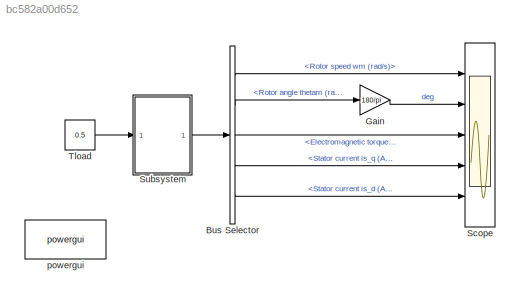
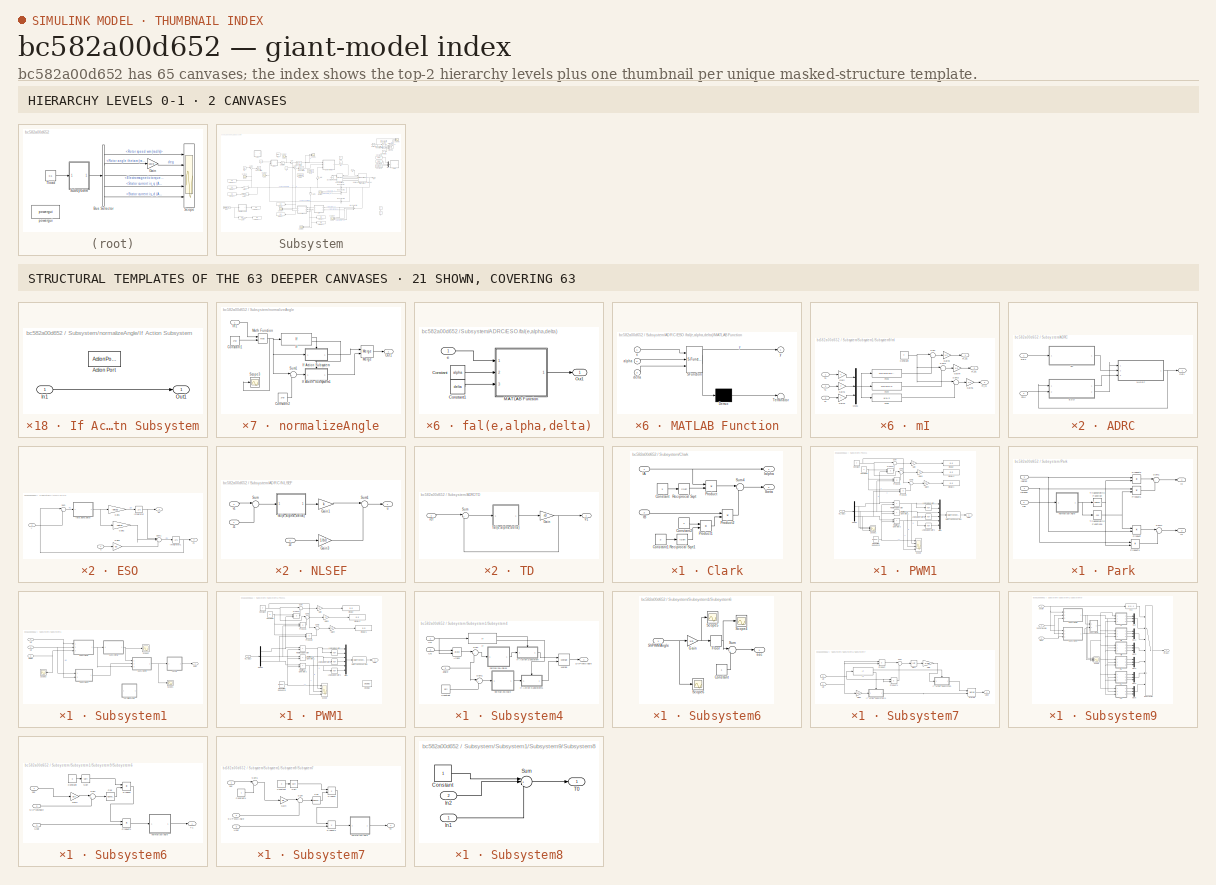
[diagram: thumbnail index - top-2 hierarchy levels (2 canvases) + 21 structural-template representatives of the remaining 63 canvases]
MODEL slx_bc582a00d652
KIND model
CONFIG AbsTol = auto
CONFIG EnableMultiTasking = off
CONFIG FixedStep = auto
CONFIG MaxStep = auto
CONFIG MinStep = auto
CONFIG RelTol = 1e-3
CONFIG SampleTimeConstraint = Unconstrained
CONFIG Solver = VariableStepAuto
CONFIG SolverName = VariableStepAuto
CONFIG StartTime = 0.0
CONFIG StopTime = 1
BLOCK [BusSelector] Bus Selector
  OutputAsBus = off
  OutputSignals = Rotor speed wm (rad/s),Rotor angle thetam (rad),Electromagnetic torque Te (N*m),Stator current is_q (A),Stator current is_d (A)
  Ports = [1, 5]
BLOCK [Gain] Gain
  Gain = 180/pi
  OutDataTypeStr = Inherit: Inherit via internal rule
  ParamDataTypeStr = Inherit: Inherit via internal rule
  SaturateOnIntegerOverflow = off
BLOCK [Scope] Scope
  Floating = off
  NumInputPorts = 5
  Ports = [5]
  ScopeSpecificationString = Simulink.scopes.TimeScopeBlockCfg('CurrentConfiguration', extmgr.ConfigurationSet(extmgr.Configuration('Core','General UI',true),extmgr.Configuration('Core','Source UI',true),extmgr.Configuration('Sources','WiredSimulink',true,'DataLoggingVariableName','ScopeData5'),extmgr.Configuration('Visuals','Time Domain',true,'SerializedDisplays',{struct('MinYLimReal','-1.55756','MaxYLimReal','0.17306','YLab...<+4325ch>
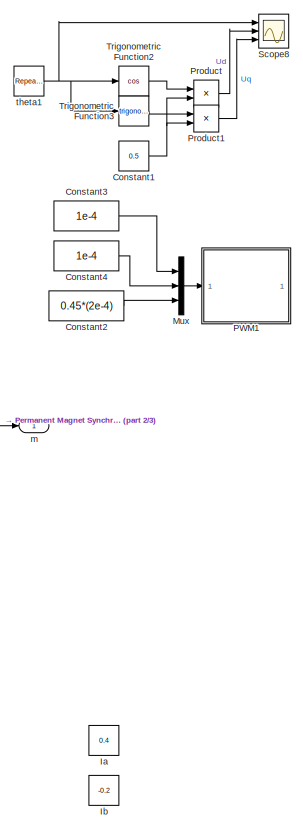
[diagram: Subsystem - part 1/3, right side, full height]
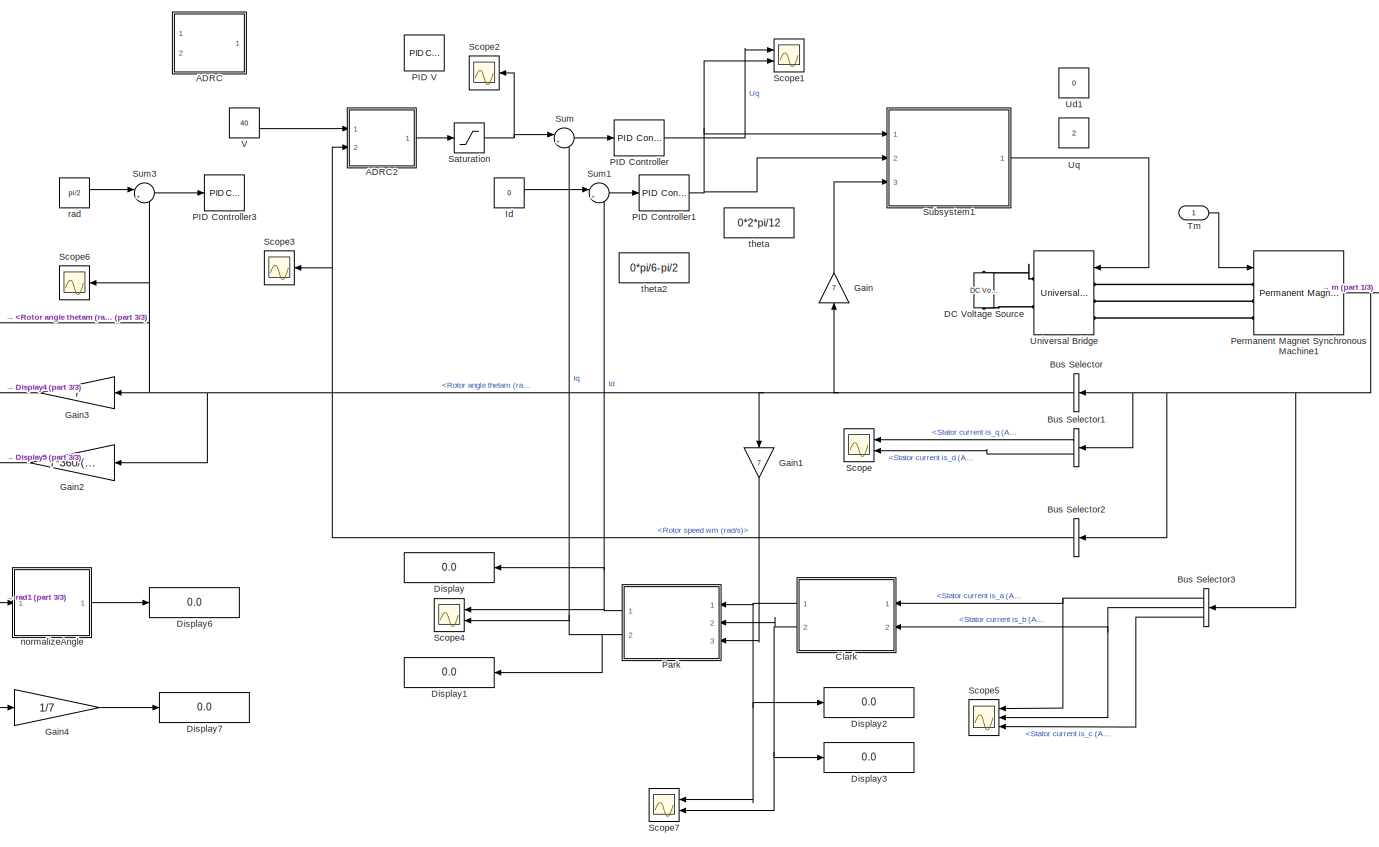
[diagram: Subsystem - part 2/3, most of the canvas]
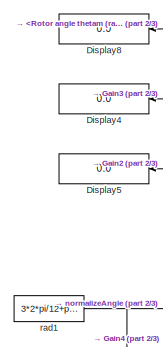
[diagram: Subsystem - part 3/3, middle left region]
BLOCK [SubSystem] Subsystem
  Ports = [1, 1]
  RequestExecContextInheritance = off
BLOCK [SubSystem] Subsystem/ADRC
  Ports = [2, 1]
  RequestExecContextInheritance = off
BLOCK [SubSystem] Subsystem/ADRC/ESO 
  Ports = [2, 2]
  RequestExecContextInheritance = off
BLOCK [Gain] Subsystem/ADRC/ESO /Gain1
  Gain = -beta2
  OutDataTypeStr = Inherit: Inherit via internal rule
  ParamDataTypeStr = Inherit: Inherit via internal rule
  SaturateOnIntegerOverflow = off
BLOCK [Gain] Subsystem/ADRC/ESO /Gain2
  Gain = -beta1
  OutDataTypeStr = Inherit: Inherit via internal rule
  ParamDataTypeStr = Inherit: Inherit via internal rule
  SaturateOnIntegerOverflow = off
BLOCK [Gain] Subsystem/ADRC/ESO /Gain3
  Gain = b0
  OutDataTypeStr = Inherit: Inherit via internal rule
  ParamDataTypeStr = Inherit: Inherit via internal rule
  SaturateOnIntegerOverflow = off
BLOCK [Integrator] Subsystem/ADRC/ESO /Integrator
  Ports = [1, 1]
BLOCK [Integrator] Subsystem/ADRC/ESO /Integrator1
  Ports = [1, 1]
BLOCK [Sum] Subsystem/ADRC/ESO /Sum
  IconShape = round
  InputSameDT = off
  Inputs = |+-
  OutDataTypeStr = Inherit: Inherit via internal rule
  Ports = [2, 1]
  SaturateOnIntegerOverflow = off
BLOCK [Sum] Subsystem/ADRC/ESO /Sum1
  IconShape = round
  InputSameDT = off
  Inputs = |+++
  OutDataTypeStr = Inherit: Inherit via internal rule
  Ports = [3, 1]
  SaturateOnIntegerOverflow = off
BLOCK [Outport] Subsystem/ADRC/ESO /Z1
  IconDisplay = Port number
  Port = 2
BLOCK [Outport] Subsystem/ADRC/ESO /Z2
  IconDisplay = Port number
BLOCK [SubSystem] Subsystem/ADRC/ESO /fal(e,alpha,delta)
  Ports = [1, 1]
  RequestExecContextInheritance = off
BLOCK [Constant] Subsystem/ADRC/ESO /fal(e,alpha,delta)/Constant
  Value = alpha
BLOCK [Constant] Subsystem/ADRC/ESO /fal(e,alpha,delta)/Constant1
  Value = delta
BLOCK [SubSystem] Subsystem/ADRC/ESO /fal(e,alpha,delta)/MATLAB Function
  ErrorFcn = Stateflow.Translate.translate
  PermitHierarchicalResolution = ExplicitOnly
  Ports = [3, 1]
  RequestExecContextInheritance = off
  SFBlockType = MATLAB Function
  TreatAsAtomicUnit = on
BLOCK [Demux] Subsystem/ADRC/ESO /fal(e,alpha,delta)/MATLAB Function/ Demux 
  Outputs = 1
  Ports = [1, 1]
BLOCK [S-Function] Subsystem/ADRC/ESO /fal(e,alpha,delta)/MATLAB Function/ SFunction 
  EnableBusSupport = on
  FunctionName = sf_sfun
  PortCounts = [3 2]
  Ports = [3, 2]
  SFcnIsStateOwnerBlock = off
  SFunctionDeploymentMode = off
  Tag = Stateflow S-Function ADRC_FOC 3
BLOCK [Terminator] Subsystem/ADRC/ESO /fal(e,alpha,delta)/MATLAB Function/ Terminator 
BLOCK [Inport] Subsystem/ADRC/ESO /fal(e,alpha,delta)/MATLAB Function/alpha
  IconDisplay = Port number
  Port = 2
BLOCK [Inport] Subsystem/ADRC/ESO /fal(e,alpha,delta)/MATLAB Function/delta
  IconDisplay = Port number
  Port = 3
BLOCK [Inport] Subsystem/ADRC/ESO /fal(e,alpha,delta)/MATLAB Function/e
  IconDisplay = Port number
BLOCK [Outport] Subsystem/ADRC/ESO /fal(e,alpha,delta)/MATLAB Function/y
  IconDisplay = Port number
BLOCK [Outport] Subsystem/ADRC/ESO /fal(e,alpha,delta)/Out1
  IconDisplay = Port number
BLOCK [Inport] Subsystem/ADRC/ESO /fal(e,alpha,delta)/e
  IconDisplay = Port number
BLOCK [Inport] Subsystem/ADRC/ESO /u
  IconDisplay = Port number
BLOCK [Inport] Subsystem/ADRC/ESO /y
  IconDisplay = Port number
  Port = 2
BLOCK [Inport] Subsystem/ADRC/FBK
  IconDisplay = Port number
  Port = 2
BLOCK [SubSystem] Subsystem/ADRC/NLSEF
  Ports = [3, 1]
  RequestExecContextInheritance = off
BLOCK [Gain] Subsystem/ADRC/NLSEF/Gain1
  Gain = k
  OutDataTypeStr = Inherit: Inherit via internal rule
  ParamDataTypeStr = Inherit: Inherit via internal rule
  SaturateOnIntegerOverflow = off
BLOCK [Gain] Subsystem/ADRC/NLSEF/Gain3
  Gain = 1/b0
  OutDataTypeStr = Inherit: Inherit via internal rule
  ParamDataTypeStr = Inherit: Inherit via internal rule
  SaturateOnIntegerOverflow = off
BLOCK [Sum] Subsystem/ADRC/NLSEF/Sum
  IconShape = round
  InputSameDT = off
  Inputs = |+-
  OutDataTypeStr = Inherit: Inherit via internal rule
  Ports = [2, 1]
  SaturateOnIntegerOverflow = off
BLOCK [Sum] Subsystem/ADRC/NLSEF/Sum1
  IconShape = round
  InputSameDT = off
  Inputs = |+-
  OutDataTypeStr = Inherit: Inherit via internal rule
  Ports = [2, 1]
  SaturateOnIntegerOverflow = off
BLOCK [SubSystem] Subsystem/ADRC/NLSEF/fal(e,alpha,delta)
  Ports = [1, 1]
  RequestExecContextInheritance = off
BLOCK [Constant] Subsystem/ADRC/NLSEF/fal(e,alpha,delta)/Constant
  Value = alpha
BLOCK [Constant] Subsystem/ADRC/NLSEF/fal(e,alpha,delta)/Constant1
  Value = delta
BLOCK [SubSystem] Subsystem/ADRC/NLSEF/fal(e,alpha,delta)/MATLAB Function
  ErrorFcn = Stateflow.Translate.translate
  PermitHierarchicalResolution = ExplicitOnly
  Ports = [3, 1]
  RequestExecContextInheritance = off
  SFBlockType = MATLAB Function
  TreatAsAtomicUnit = on
BLOCK [Demux] Subsystem/ADRC/NLSEF/fal(e,alpha,delta)/MATLAB Function/ Demux 
  Outputs = 1
  Ports = [1, 1]
BLOCK [S-Function] Subsystem/ADRC/NLSEF/fal(e,alpha,delta)/MATLAB Function/ SFunction 
  EnableBusSupport = on
  FunctionName = sf_sfun
  PortCounts = [3 2]
  Ports = [3, 2]
  SFcnIsStateOwnerBlock = off
  SFunctionDeploymentMode = off
  Tag = Stateflow S-Function ADRC_FOC 4
BLOCK [Terminator] Subsystem/ADRC/NLSEF/fal(e,alpha,delta)/MATLAB Function/ Terminator 
BLOCK [Inport] Subsystem/ADRC/NLSEF/fal(e,alpha,delta)/MATLAB Function/alpha
  IconDisplay = Port number
  Port = 2
BLOCK [Inport] Subsystem/ADRC/NLSEF/fal(e,alpha,delta)/MATLAB Function/delta
  IconDisplay = Port number
  Port = 3
BLOCK [Inport] Subsystem/ADRC/NLSEF/fal(e,alpha,delta)/MATLAB Function/e
  IconDisplay = Port number
BLOCK [Outport] Subsystem/ADRC/NLSEF/fal(e,alpha,delta)/MATLAB Function/y
  IconDisplay = Port number
BLOCK [Outport] Subsystem/ADRC/NLSEF/fal(e,alpha,delta)/Out1
  IconDisplay = Port number
BLOCK [Inport] Subsystem/ADRC/NLSEF/fal(e,alpha,delta)/e
  IconDisplay = Port number
BLOCK [Outport] Subsystem/ADRC/NLSEF/u
  IconDisplay = Port number
BLOCK [Inport] Subsystem/ADRC/NLSEF/v1
  IconDisplay = Port number
  Port = 2
BLOCK [Inport] Subsystem/ADRC/NLSEF/z1
  IconDisplay = Port number
BLOCK [Inport] Subsystem/ADRC/NLSEF/z2
  IconDisplay = Port number
  Port = 3
BLOCK [Outport] Subsystem/ADRC/Out1
  IconDisplay = Port number
BLOCK [Inport] Subsystem/ADRC/REF
  IconDisplay = Port number
BLOCK [SubSystem] Subsystem/ADRC/TD
  Ports = [1, 1]
  RequestExecContextInheritance = off
BLOCK [Gain] Subsystem/ADRC/TD/Gain
  Gain = r0
  OutDataTypeStr = Inherit: Inherit via internal rule
  ParamDataTypeStr = Inherit: Inherit via internal rule
  SaturateOnIntegerOverflow = off
BLOCK [Sum] Subsystem/ADRC/TD/Sum
  IconShape = round
  InputSameDT = off
  Inputs = |+-
  OutDataTypeStr = Inherit: Inherit via internal rule
  Ports = [2, 1]
  SaturateOnIntegerOverflow = off
BLOCK [Outport] Subsystem/ADRC/TD/V1
  IconDisplay = Port number
BLOCK [SubSystem] Subsystem/ADRC/TD/fal(e,alpha,delta)
  Ports = [1, 1]
  RequestExecContextInheritance = off
BLOCK [Constant] Subsystem/ADRC/TD/fal(e,alpha,delta)/Constant
  Value = alpha
BLOCK [Constant] Subsystem/ADRC/TD/fal(e,alpha,delta)/Constant1
  Value = delta
BLOCK [SubSystem] Subsystem/ADRC/TD/fal(e,alpha,delta)/MATLAB Function
  ErrorFcn = Stateflow.Translate.translate
  PermitHierarchicalResolution = ExplicitOnly
  Ports = [3, 1]
  RequestExecContextInheritance = off
  SFBlockType = MATLAB Function
  TreatAsAtomicUnit = on
BLOCK [Demux] Subsystem/ADRC/TD/fal(e,alpha,delta)/MATLAB Function/ Demux 
  Outputs = 1
  Ports = [1, 1]
BLOCK [S-Function] Subsystem/ADRC/TD/fal(e,alpha,delta)/MATLAB Function/ SFunction 
  EnableBusSupport = on
  FunctionName = sf_sfun
  PortCounts = [3 2]
  Ports = [3, 2]
  SFcnIsStateOwnerBlock = off
  SFunctionDeploymentMode = off
  Tag = Stateflow S-Function ADRC_FOC 5
BLOCK [Terminator] Subsystem/ADRC/TD/fal(e,alpha,delta)/MATLAB Function/ Terminator 
BLOCK [Inport] Subsystem/ADRC/TD/fal(e,alpha,delta)/MATLAB Function/alpha
  IconDisplay = Port number
  Port = 2
BLOCK [Inport] Subsystem/ADRC/TD/fal(e,alpha,delta)/MATLAB Function/delta
  IconDisplay = Port number
  Port = 3
BLOCK [Inport] Subsystem/ADRC/TD/fal(e,alpha,delta)/MATLAB Function/e
  IconDisplay = Port number
BLOCK [Outport] Subsystem/ADRC/TD/fal(e,alpha,delta)/MATLAB Function/y
  IconDisplay = Port number
BLOCK [Outport] Subsystem/ADRC/TD/fal(e,alpha,delta)/Out1
  IconDisplay = Port number
BLOCK [Inport] Subsystem/ADRC/TD/fal(e,alpha,delta)/e
  IconDisplay = Port number
BLOCK [Inport] Subsystem/ADRC/TD/ref
  IconDisplay = Port number
BLOCK [SubSystem] Subsystem/ADRC2
  Ports = [2, 1]
  RequestExecContextInheritance = off
BLOCK [SubSystem] Subsystem/ADRC2/ESO
  Ports = [2, 2]
  RequestExecContextInheritance = off
BLOCK [Gain] Subsystem/ADRC2/ESO/Gain
  Gain = beta1
  OutDataTypeStr = Inherit: Inherit via internal rule
  ParamDataTypeStr = Inherit: Inherit via internal rule
  SaturateOnIntegerOverflow = off
BLOCK [Gain] Subsystem/ADRC2/ESO/Gain1
  Gain = b0
  OutDataTypeStr = Inherit: Inherit via internal rule
  ParamDataTypeStr = Inherit: Inherit via internal rule
  SaturateOnIntegerOverflow = off
BLOCK [Gain] Subsystem/ADRC2/ESO/Gain2
  Gain = -beta2
  OutDataTypeStr = Inherit: Inherit via internal rule
  ParamDataTypeStr = Inherit: Inherit via internal rule
  SaturateOnIntegerOverflow = off
BLOCK [Integrator] Subsystem/ADRC2/ESO/Integrator
  Ports = [1, 1]
BLOCK [Integrator] Subsystem/ADRC2/ESO/Integrator1
  Ports = [1, 1]
BLOCK [Sum] Subsystem/ADRC2/ESO/Sum1
  InputSameDT = off
  Inputs = +-+
  OutDataTypeStr = Inherit: Inherit via internal rule
  Ports = [3, 1]
  SaturateOnIntegerOverflow = off
BLOCK [Sum] Subsystem/ADRC2/ESO/Sum3
  IconShape = round
  InputSameDT = off
  Inputs = |+-
  OutDataTypeStr = Inherit: Inherit via internal rule
  Ports = [2, 1]
  SaturateOnIntegerOverflow = off
BLOCK [Outport] Subsystem/ADRC2/ESO/Z1   
  IconDisplay = Port number
BLOCK [Outport] Subsystem/ADRC2/ESO/Z2
  IconDisplay = Port number
  Port = 2
BLOCK [SubSystem] Subsystem/ADRC2/ESO/fal(e,alpha,delta)
  Ports = [1, 1]
  RequestExecContextInheritance = off
BLOCK [Constant] Subsystem/ADRC2/ESO/fal(e,alpha,delta)/Constant
  Value = alpha
BLOCK [Constant] Subsystem/ADRC2/ESO/fal(e,alpha,delta)/Constant1
  Value = delta
BLOCK [SubSystem] Subsystem/ADRC2/ESO/fal(e,alpha,delta)/MATLAB Function
  ErrorFcn = Stateflow.Translate.translate
  PermitHierarchicalResolution = ExplicitOnly
  Ports = [3, 1]
  RequestExecContextInheritance = off
  SFBlockType = MATLAB Function
  TreatAsAtomicUnit = on
BLOCK [Demux] Subsystem/ADRC2/ESO/fal(e,alpha,delta)/MATLAB Function/ Demux 
  Outputs = 1
  Ports = [1, 1]
BLOCK [S-Function] Subsystem/ADRC2/ESO/fal(e,alpha,delta)/MATLAB Function/ SFunction 
  EnableBusSupport = on
  FunctionName = sf_sfun
  PortCounts = [3 2]
  Ports = [3, 2]
  SFcnIsStateOwnerBlock = off
  SFunctionDeploymentMode = off
  Tag = Stateflow S-Function ADRC_FOC 7
BLOCK [Terminator] Subsystem/ADRC2/ESO/fal(e,alpha,delta)/MATLAB Function/ Terminator 
BLOCK [Inport] Subsystem/ADRC2/ESO/fal(e,alpha,delta)/MATLAB Function/alpha
  IconDisplay = Port number
  Port = 2
BLOCK [Inport] Subsystem/ADRC2/ESO/fal(e,alpha,delta)/MATLAB Function/delta
  IconDisplay = Port number
  Port = 3
BLOCK [Inport] Subsystem/ADRC2/ESO/fal(e,alpha,delta)/MATLAB Function/e
  IconDisplay = Port number
BLOCK [Outport] Subsystem/ADRC2/ESO/fal(e,alpha,delta)/MATLAB Function/y
  IconDisplay = Port number
BLOCK [Inport] Subsystem/ADRC2/ESO/fal(e,alpha,delta)/e
  IconDisplay = Port number
BLOCK [Outport] Subsystem/ADRC2/ESO/fal(e,alpha,delta)/fal
  IconDisplay = Port number
BLOCK [Inport] Subsystem/ADRC2/ESO/u
  IconDisplay = Port number
  Port = 2
BLOCK [Inport] Subsystem/ADRC2/ESO/y
  IconDisplay = Port number
BLOCK [SubSystem] Subsystem/ADRC2/NLSEF
  Ports = [3, 1]
  RequestExecContextInheritance = off
BLOCK [Gain] Subsystem/ADRC2/NLSEF/Gain1
  Gain = 1/b0
  OutDataTypeStr = Inherit: Inherit via internal rule
  ParamDataTypeStr = Inherit: Inherit via internal rule
  SaturateOnIntegerOverflow = off
BLOCK [Gain] Subsystem/ADRC2/NLSEF/Gain2
  Gain = k
  OutDataTypeStr = Inherit: Inherit via internal rule
  ParamDataTypeStr = Inherit: Inherit via internal rule
  SaturateOnIntegerOverflow = off
BLOCK [Sum] Subsystem/ADRC2/NLSEF/Sum1
  InputSameDT = off
  Inputs = +-
  OutDataTypeStr = Inherit: Inherit via internal rule
  Ports = [2, 1]
  SaturateOnIntegerOverflow = off
BLOCK [Sum] Subsystem/ADRC2/NLSEF/Sum3
  IconShape = round
  InputSameDT = off
  Inputs = |+-
  OutDataTypeStr = Inherit: Inherit via internal rule
  Ports = [2, 1]
  SaturateOnIntegerOverflow = off
BLOCK [SubSystem] Subsystem/ADRC2/NLSEF/fal(e,alpha,delta)
  Ports = [1, 1]
  RequestExecContextInheritance = off
BLOCK [Constant] Subsystem/ADRC2/NLSEF/fal(e,alpha,delta)/Constant
  Value = alpha
BLOCK [Constant] Subsystem/ADRC2/NLSEF/fal(e,alpha,delta)/Constant1
  Value = delta
BLOCK [SubSystem] Subsystem/ADRC2/NLSEF/fal(e,alpha,delta)/MATLAB Function
  ErrorFcn = Stateflow.Translate.translate
  PermitHierarchicalResolution = ExplicitOnly
  Ports = [3, 1]
  RequestExecContextInheritance = off
  SFBlockType = MATLAB Function
  TreatAsAtomicUnit = on
BLOCK [Demux] Subsystem/ADRC2/NLSEF/fal(e,alpha,delta)/MATLAB Function/ Demux 
  Outputs = 1
  Ports = [1, 1]
BLOCK [S-Function] Subsystem/ADRC2/NLSEF/fal(e,alpha,delta)/MATLAB Function/ SFunction 
  EnableBusSupport = on
  FunctionName = sf_sfun
  PortCounts = [3 2]
  Ports = [3, 2]
  SFcnIsStateOwnerBlock = off
  SFunctionDeploymentMode = off
  Tag = Stateflow S-Function ADRC_FOC 8
BLOCK [Terminator] Subsystem/ADRC2/NLSEF/fal(e,alpha,delta)/MATLAB Function/ Terminator 
BLOCK [Inport] Subsystem/ADRC2/NLSEF/fal(e,alpha,delta)/MATLAB Function/alpha
  IconDisplay = Port number
  Port = 2
BLOCK [Inport] Subsystem/ADRC2/NLSEF/fal(e,alpha,delta)/MATLAB Function/delta
  IconDisplay = Port number
  Port = 3
BLOCK [Inport] Subsystem/ADRC2/NLSEF/fal(e,alpha,delta)/MATLAB Function/e
  IconDisplay = Port number
BLOCK [Outport] Subsystem/ADRC2/NLSEF/fal(e,alpha,delta)/MATLAB Function/y
  IconDisplay = Port number
BLOCK [Inport] Subsystem/ADRC2/NLSEF/fal(e,alpha,delta)/e
  IconDisplay = Port number
BLOCK [Outport] Subsystem/ADRC2/NLSEF/fal(e,alpha,delta)/fal
  IconDisplay = Port number
BLOCK [Outport] Subsystem/ADRC2/NLSEF/u
  IconDisplay = Port number
BLOCK [Inport] Subsystem/ADRC2/NLSEF/v1
  IconDisplay = Port number
BLOCK [Inport] Subsystem/ADRC2/NLSEF/z1
  IconDisplay = Port number
  Port = 2
BLOCK [Inport] Subsystem/ADRC2/NLSEF/z2
  IconDisplay = Port number
  Port = 3
BLOCK [SubSystem] Subsystem/ADRC2/TD
  Ports = [1, 1]
  RequestExecContextInheritance = off
BLOCK [Gain] Subsystem/ADRC2/TD/Gain
  Gain = r0
  OutDataTypeStr = Inherit: Inherit via internal rule
  ParamDataTypeStr = Inherit: Inherit via internal rule
  SaturateOnIntegerOverflow = off
BLOCK [Sum] Subsystem/ADRC2/TD/Sum3
  IconShape = round
  InputSameDT = off
  Inputs = |+-
  OutDataTypeStr = Inherit: Inherit via internal rule
  Ports = [2, 1]
  SaturateOnIntegerOverflow = off
BLOCK [Outport] Subsystem/ADRC2/TD/V1
  IconDisplay = Port number
BLOCK [SubSystem] Subsystem/ADRC2/TD/fal(e,alpha,delta)
  Ports = [1, 1]
  RequestExecContextInheritance = off
BLOCK [Constant] Subsystem/ADRC2/TD/fal(e,alpha,delta)/Constant
  Value = alpha
BLOCK [Constant] Subsystem/ADRC2/TD/fal(e,alpha,delta)/Constant1
  Value = delta
BLOCK [SubSystem] Subsystem/ADRC2/TD/fal(e,alpha,delta)/MATLAB Function
  ErrorFcn = Stateflow.Translate.translate
  PermitHierarchicalResolution = ExplicitOnly
  Ports = [3, 1]
  RequestExecContextInheritance = off
  SFBlockType = MATLAB Function
  TreatAsAtomicUnit = on
BLOCK [Demux] Subsystem/ADRC2/TD/fal(e,alpha,delta)/MATLAB Function/ Demux 
  Outputs = 1
  Ports = [1, 1]
BLOCK [S-Function] Subsystem/ADRC2/TD/fal(e,alpha,delta)/MATLAB Function/ SFunction 
  EnableBusSupport = on
  FunctionName = sf_sfun
  PortCounts = [3 2]
  Ports = [3, 2]
  SFcnIsStateOwnerBlock = off
  SFunctionDeploymentMode = off
  Tag = Stateflow S-Function ADRC_FOC 9
BLOCK [Terminator] Subsystem/ADRC2/TD/fal(e,alpha,delta)/MATLAB Function/ Terminator 
BLOCK [Inport] Subsystem/ADRC2/TD/fal(e,alpha,delta)/MATLAB Function/alpha
  IconDisplay = Port number
  Port = 2
BLOCK [Inport] Subsystem/ADRC2/TD/fal(e,alpha,delta)/MATLAB Function/delta
  IconDisplay = Port number
  Port = 3
BLOCK [Inport] Subsystem/ADRC2/TD/fal(e,alpha,delta)/MATLAB Function/e
  IconDisplay = Port number
BLOCK [Outport] Subsystem/ADRC2/TD/fal(e,alpha,delta)/MATLAB Function/y
  IconDisplay = Port number
BLOCK [Inport] Subsystem/ADRC2/TD/fal(e,alpha,delta)/e
  IconDisplay = Port number
BLOCK [Outport] Subsystem/ADRC2/TD/fal(e,alpha,delta)/fal
  IconDisplay = Port number
BLOCK [Inport] Subsystem/ADRC2/TD/ref
  IconDisplay = Port number
BLOCK [Inport] Subsystem/ADRC2/fbk
  IconDisplay = Port number
  Port = 2
BLOCK [Inport] Subsystem/ADRC2/ref
  IconDisplay = Port number
BLOCK [Outport] Subsystem/ADRC2/u
  IconDisplay = Port number
BLOCK [BusSelector] Subsystem/Bus Selector
  OutputAsBus = off
  OutputSignals = Rotor angle thetam (rad)
  Ports = [1, 1]
BLOCK [BusSelector] Subsystem/Bus Selector1
  OutputAsBus = off
  OutputSignals = Stator current is_q (A),Stator current is_d (A)
  Ports = [1, 2]
BLOCK [BusSelector] Subsystem/Bus Selector2
  OutputAsBus = off
  OutputSignals = Rotor speed wm (rad/s)
  Ports = [1, 1]
BLOCK [BusSelector] Subsystem/Bus Selector3
  OutputAsBus = off
  OutputSignals = Stator current is_a (A),Stator current is_b (A),Stator current is_c (A)
  Ports = [1, 3]
BLOCK [SubSystem] Subsystem/Clark
  Ports = [2, 2]
  RequestExecContextInheritance = off
BLOCK [Constant] Subsystem/Clark/Constant
  Value = 3
BLOCK [Constant] Subsystem/Clark/Constant1
  Value = 3
BLOCK [Constant] Subsystem/Clark/Constant2
  Value = 2
BLOCK [Inport] Subsystem/Clark/IA
  IconDisplay = Port number
BLOCK [Inport] Subsystem/Clark/IB
  IconDisplay = Port number
  Port = 2
BLOCK [Outport] Subsystem/Clark/Ialpha
  IconDisplay = Port number
BLOCK [Outport] Subsystem/Clark/Ibeta
  IconDisplay = Port number
  Port = 2
BLOCK [Product] Subsystem/Clark/Product
  InputSameDT = off
  OutDataTypeStr = Inherit: Inherit via internal rule
  Ports = [2, 1]
  RndMeth = Floor
  SaturateOnIntegerOverflow = off
BLOCK [Product] Subsystem/Clark/Product1
  InputSameDT = off
  OutDataTypeStr = Inherit: Inherit via internal rule
  Ports = [2, 1]
  RndMeth = Floor
  SaturateOnIntegerOverflow = off
BLOCK [Product] Subsystem/Clark/Product2
  InputSameDT = off
  OutDataTypeStr = Inherit: Inherit via internal rule
  Ports = [2, 1]
  RndMeth = Floor
  SaturateOnIntegerOverflow = off
BLOCK [Sqrt] Subsystem/Clark/Reciprocal Sqrt
  Operator = rSqrt
BLOCK [Sqrt] Subsystem/Clark/Reciprocal Sqrt1
  Operator = rSqrt
BLOCK [Sum] Subsystem/Clark/Sum4
  IconShape = round
  InputSameDT = off
  Inputs = |++
  OutDataTypeStr = Inherit: Inherit via internal rule
  Ports = [2, 1]
  SaturateOnIntegerOverflow = off
BLOCK [Constant] Subsystem/Constant1
  Value = 0.5
BLOCK [Constant] Subsystem/Constant2
  Value = 0.45*(2e-4)
BLOCK [Constant] Subsystem/Constant3
  Value = 1e-4
BLOCK [Constant] Subsystem/Constant4
  Value = 1e-4
BLOCK [Reference] Subsystem/DC Voltage Source  REF=powerlib/Electrical
Sources/DC Voltage Source
  Ports = [0, 0, 0, 0, 0, 1, 1]
  SourceBlock = powerlib/Electrical\nSources/DC Voltage Source
  SourceProductBaseCode = PS
  SourceProductName = Simscape Power Systems
  SourceType = DC Voltage Source
BLOCK [Display] Subsystem/Display
  Decimation = 1
  Ports = [1]
BLOCK [Display] Subsystem/Display1
  Decimation = 1
  Ports = [1]
BLOCK [Display] Subsystem/Display2
  Decimation = 1
  Ports = [1]
BLOCK [Display] Subsystem/Display3
  Decimation = 1
  Ports = [1]
BLOCK [Display] Subsystem/Display4
  Decimation = 1
  Ports = [1]
BLOCK [Display] Subsystem/Display5
  Decimation = 1
  Ports = [1]
BLOCK [Display] Subsystem/Display6
  Decimation = 1
  Ports = [1]
BLOCK [Display] Subsystem/Display7
  Decimation = 1
  Ports = [1]
BLOCK [Display] Subsystem/Display8
  Decimation = 1
  Ports = [1]
BLOCK [Gain] Subsystem/Gain
  Gain = 7
  OutDataTypeStr = Inherit: Inherit via internal rule
  ParamDataTypeStr = Inherit: Inherit via internal rule
  SaturateOnIntegerOverflow = off
BLOCK [Gain] Subsystem/Gain1
  Gain = 7
  OutDataTypeStr = Inherit: Inherit via internal rule
  ParamDataTypeStr = Inherit: Inherit via internal rule
  SaturateOnIntegerOverflow = off
BLOCK [Gain] Subsystem/Gain2
  Gain = 7*360/(2*pi)
  OutDataTypeStr = Inherit: Inherit via internal rule
  ParamDataTypeStr = Inherit: Inherit via internal rule
  SaturateOnIntegerOverflow = off
BLOCK [Gain] Subsystem/Gain3
  Gain = 7
  OutDataTypeStr = Inherit: Inherit via internal rule
  ParamDataTypeStr = Inherit: Inherit via internal rule
  SaturateOnIntegerOverflow = off
BLOCK [Gain] Subsystem/Gain4
  Gain = 1/7
  OutDataTypeStr = Inherit: Inherit via internal rule
  ParamDataTypeStr = Inherit: Inherit via internal rule
  SaturateOnIntegerOverflow = off
BLOCK [Constant] Subsystem/Ia
  Value = 0.4
BLOCK [Constant] Subsystem/Ib
  Value = -0.2
BLOCK [Constant] Subsystem/Id
  Value = 0
BLOCK [Mux] Subsystem/Mux
  DisplayOption = bar
  Inputs = 3
  Ports = [3, 1]
BLOCK [Reference] Subsystem/PID Controller  REF=simulink/Continuous/PID Controller
  Ports = [1, 1]
  SourceBlock = simulink/Continuous/PID Controller
  SourceProductBaseCode = SL
  SourceProductName = Simulink
  SourceType = PID 1dof
BLOCK [Reference] Subsystem/PID Controller1  REF=simulink/Continuous/PID Controller
  Ports = [1, 1]
  SourceBlock = simulink/Continuous/PID Controller
  SourceProductBaseCode = SL
  SourceProductName = Simulink
  SourceType = PID 1dof
BLOCK [Reference] Subsystem/PID Controller3  REF=simulink/Continuous/PID Controller
  Ports = [1, 1]
  SourceBlock = simulink/Continuous/PID Controller
  SourceProductBaseCode = SL
  SourceProductName = Simulink
  SourceType = PID 1dof
BLOCK [Reference] Subsystem/PID V  REF=simulink/Continuous/PID Controller
  Ports = [1, 1]
  SourceBlock = simulink/Continuous/PID Controller
  SourceProductBaseCode = SL
  SourceProductName = Simulink
  SourceType = PID 1dof
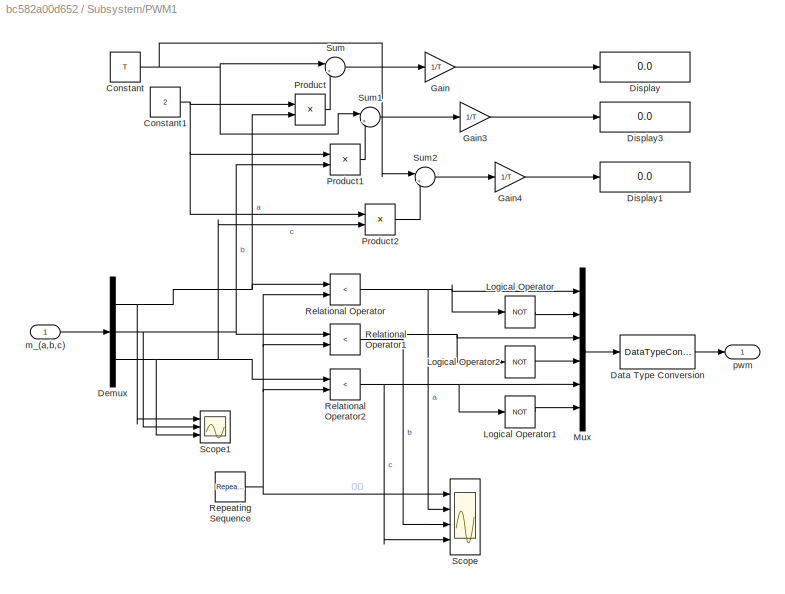
BLOCK [SubSystem] Subsystem/PWM1
  Ports = [1, 1]
  RequestExecContextInheritance = off
BLOCK [Constant] Subsystem/PWM1/Constant
  Value = T
BLOCK [Constant] Subsystem/PWM1/Constant1
  Value = 2
BLOCK [DataTypeConversion] Subsystem/PWM1/Data Type Conversion
  RndMeth = Floor
  SaturateOnIntegerOverflow = off
BLOCK [Demux] Subsystem/PWM1/Demux
  DisplayOption = bar
  Outputs = 3
  Ports = [1, 3]
BLOCK [Display] Subsystem/PWM1/Display
  Decimation = 1
  Ports = [1]
BLOCK [Display] Subsystem/PWM1/Display1
  Decimation = 1
  Ports = [1]
BLOCK [Display] Subsystem/PWM1/Display3
  Decimation = 1
  Ports = [1]
BLOCK [Gain] Subsystem/PWM1/Gain
  Gain = 1/T
  OutDataTypeStr = Inherit: Inherit via internal rule
  ParamDataTypeStr = Inherit: Inherit via internal rule
  SaturateOnIntegerOverflow = off
BLOCK [Gain] Subsystem/PWM1/Gain3
  Gain = 1/T
  OutDataTypeStr = Inherit: Inherit via internal rule
  ParamDataTypeStr = Inherit: Inherit via internal rule
  SaturateOnIntegerOverflow = off
BLOCK [Gain] Subsystem/PWM1/Gain4
  Gain = 1/T
  OutDataTypeStr = Inherit: Inherit via internal rule
  ParamDataTypeStr = Inherit: Inherit via internal rule
  SaturateOnIntegerOverflow = off
BLOCK [Logic] Subsystem/PWM1/Logical Operator
  AllPortsSameDT = off
  Operator = NOT
  OutDataTypeStr = boolean
  Ports = [1, 1]
BLOCK [Logic] Subsystem/PWM1/Logical Operator1
  AllPortsSameDT = off
  Operator = NOT
  OutDataTypeStr = boolean
  Ports = [1, 1]
BLOCK [Logic] Subsystem/PWM1/Logical Operator2
  AllPortsSameDT = off
  Operator = NOT
  OutDataTypeStr = boolean
  Ports = [1, 1]
BLOCK [Mux] Subsystem/PWM1/Mux
  DisplayOption = bar
  Inputs = 6
  Ports = [6, 1]
BLOCK [Product] Subsystem/PWM1/Product
  InputSameDT = off
  OutDataTypeStr = Inherit: Inherit via internal rule
  Ports = [2, 1]
  RndMeth = Floor
  SaturateOnIntegerOverflow = off
BLOCK [Product] Subsystem/PWM1/Product1
  InputSameDT = off
  OutDataTypeStr = Inherit: Inherit via internal rule
  Ports = [2, 1]
  RndMeth = Floor
  SaturateOnIntegerOverflow = off
BLOCK [Product] Subsystem/PWM1/Product2
  InputSameDT = off
  OutDataTypeStr = Inherit: Inherit via internal rule
  Ports = [2, 1]
  RndMeth = Floor
  SaturateOnIntegerOverflow = off
BLOCK [RelationalOperator] Subsystem/PWM1/Relational Operator
  InputSameDT = off
  Operator = <
  OutDataTypeStr = boolean
  Ports = [2, 1]
  RndMeth = Simplest
BLOCK [RelationalOperator] Subsystem/PWM1/Relational Operator1
  InputSameDT = off
  Operator = <
  OutDataTypeStr = boolean
  Ports = [2, 1]
  RndMeth = Simplest
BLOCK [RelationalOperator] Subsystem/PWM1/Relational Operator2
  InputSameDT = off
  Operator = <
  OutDataTypeStr = boolean
  Ports = [2, 1]
  RndMeth = Simplest
BLOCK [Reference] Subsystem/PWM1/Repeating Sequence  REF=simulink/Sources/Repeating
Sequence
  Ports = [0, 1]
  SourceBlock = simulink/Sources/Repeating\nSequence
  SourceProductBaseCode = SL
  SourceProductName = Simulink
  SourceType = Repeating table
BLOCK [Scope] Subsystem/PWM1/Scope
  Floating = off
  NumInputPorts = 4
  Ports = [4]
  ScopeSpecificationString = Simulink.scopes.TimeScopeBlockCfg('CurrentConfiguration', extmgr.ConfigurationSet(extmgr.Configuration('Core','General UI',true),extmgr.Configuration('Core','Source UI',true),extmgr.Configuration('Sources','WiredSimulink',true,'DataLoggingVariableName','ScopeData1'),extmgr.Configuration('Visuals','Time Domain',true,'SerializedDisplays',{struct('MinYLimReal','-0.00001','MaxYLimReal','0.00011','YLab...<+3422ch>
BLOCK [Scope] Subsystem/PWM1/Scope1
  Floating = off
  NumInputPorts = 3
  Ports = [3]
  ScopeSpecificationString = Simulink.scopes.TimeScopeBlockCfg('CurrentConfiguration', extmgr.ConfigurationSet(extmgr.Configuration('Core','General UI',true),extmgr.Configuration('Core','Source UI',true),extmgr.Configuration('Sources','WiredSimulink',true,'DataLoggingVariableName','ScopeData3'),extmgr.Configuration('Visuals','Time Domain',true,'SerializedDisplays',{struct('MinYLimReal','0.000099','MaxYLimReal','0.0001006','YL...<+2769ch>
BLOCK [Sum] Subsystem/PWM1/Sum
  IconShape = round
  InputSameDT = off
  Inputs = |+-
  OutDataTypeStr = Inherit: Inherit via internal rule
  Ports = [2, 1]
  SaturateOnIntegerOverflow = off
BLOCK [Sum] Subsystem/PWM1/Sum1
  IconShape = round
  InputSameDT = off
  Inputs = |+-
  OutDataTypeStr = Inherit: Inherit via internal rule
  Ports = [2, 1]
  SaturateOnIntegerOverflow = off
BLOCK [Sum] Subsystem/PWM1/Sum2
  IconShape = round
  InputSameDT = off
  Inputs = |+-
  OutDataTypeStr = Inherit: Inherit via internal rule
  Ports = [2, 1]
  SaturateOnIntegerOverflow = off
BLOCK [Inport] Subsystem/PWM1/m_(a,b,c) 
  IconDisplay = Port number
BLOCK [Outport] Subsystem/PWM1/pwm
  IconDisplay = Port number
BLOCK [SubSystem] Subsystem/Park
  Ports = [3, 2]
  RequestExecContextInheritance = off
BLOCK [Inport] Subsystem/Park/Ialpha2
  IconDisplay = Port number
BLOCK [Inport] Subsystem/Park/Ibeta2
  IconDisplay = Port number
  Port = 2
BLOCK [Outport] Subsystem/Park/Id
  IconDisplay = Port number
BLOCK [Outport] Subsystem/Park/Iq
  IconDisplay = Port number
  Port = 2
BLOCK [Product] Subsystem/Park/Product
  InputSameDT = off
  OutDataTypeStr = Inherit: Inherit via internal rule
  Ports = [2, 1]
  RndMeth = Floor
  SaturateOnIntegerOverflow = off
BLOCK [Product] Subsystem/Park/Product1
  InputSameDT = off
  OutDataTypeStr = Inherit: Inherit via internal rule
  Ports = [2, 1]
  RndMeth = Floor
  SaturateOnIntegerOverflow = off
BLOCK [Product] Subsystem/Park/Product2
  InputSameDT = off
  OutDataTypeStr = Inherit: Inherit via internal rule
  Ports = [2, 1]
  RndMeth = Floor
  SaturateOnIntegerOverflow = off
BLOCK [Product] Subsystem/Park/Product3
  InputSameDT = off
  OutDataTypeStr = Inherit: Inherit via internal rule
  Ports = [2, 1]
  RndMeth = Floor
  SaturateOnIntegerOverflow = off
BLOCK [Sum] Subsystem/Park/Sum1
  IconShape = round
  InputSameDT = off
  Inputs = |++
  OutDataTypeStr = Inherit: Inherit via internal rule
  Ports = [2, 1]
  SaturateOnIntegerOverflow = off
BLOCK [Sum] Subsystem/Park/Sum4
  IconShape = round
  InputSameDT = off
  Inputs = |+-
  OutDataTypeStr = Inherit: Inherit via internal rule
  Ports = [2, 1]
  SaturateOnIntegerOverflow = off
BLOCK [Trigonometry] Subsystem/Park/Trigonometric Function
  Ports = [1, 1]
BLOCK [Trigonometry] Subsystem/Park/Trigonometric Function1
  Operator = cos
  Ports = [1, 1]
BLOCK [SubSystem] Subsystem/Park/normalizeAngle
  Ports = [1, 1]
  RequestExecContextInheritance = off
BLOCK [Constant] Subsystem/Park/normalizeAngle/Constant1
  Value = 2*pi
BLOCK [Constant] Subsystem/Park/normalizeAngle/Constant2
  Value = 2*pi
BLOCK [If] Subsystem/Park/normalizeAngle/If
  IfExpression = u1 >= 0
  Ports = [1, 2]
BLOCK [SubSystem] Subsystem/Park/normalizeAngle/If Action Subsystem
  Ports = [1, 1, 0, 0, 0, 0, 0, 1]
  RequestExecContextInheritance = off
  TreatAsAtomicUnit = on
BLOCK [ActionPort] Subsystem/Park/normalizeAngle/If Action Subsystem/Action Port
  ActionType = then
BLOCK [Inport] Subsystem/Park/normalizeAngle/If Action Subsystem/In1
  IconDisplay = Port number
BLOCK [Outport] Subsystem/Park/normalizeAngle/If Action Subsystem/Out1
  IconDisplay = Port number
BLOCK [SubSystem] Subsystem/Park/normalizeAngle/If Action Subsystem1
  Ports = [1, 1, 0, 0, 0, 0, 0, 1]
  RequestExecContextInheritance = off
  TreatAsAtomicUnit = on
BLOCK [ActionPort] Subsystem/Park/normalizeAngle/If Action Subsystem1/Action Port
  ActionType = else
BLOCK [Inport] Subsystem/Park/normalizeAngle/If Action Subsystem1/In1
  IconDisplay = Port number
BLOCK [Outport] Subsystem/Park/normalizeAngle/If Action Subsystem1/Out1
  IconDisplay = Port number
BLOCK [Inport] Subsystem/Park/normalizeAngle/In1
  IconDisplay = Port number
BLOCK [Math] Subsystem/Park/normalizeAngle/Math Function
  Operator = mod
  Ports = [2, 1]
BLOCK [Merge] Subsystem/Park/normalizeAngle/Merge
  Ports = [2, 1]
BLOCK [Outport] Subsystem/Park/normalizeAngle/Out1
  IconDisplay = Port number
BLOCK [Scope] Subsystem/Park/normalizeAngle/Scope3
  Floating = off
  NumInputPorts = 1
  Ports = [1]
  ScopeSpecificationString = Simulink.scopes.TimeScopeBlockCfg('CurrentConfiguration', extmgr.ConfigurationSet(extmgr.Configuration('Core','General UI',true),extmgr.Configuration('Core','Source UI',true),extmgr.Configuration('Sources','WiredSimulink',true,'DataLoggingVariableName','ScopeData4'),extmgr.Configuration('Visuals','Time Domain',true,'SerializedDisplays',{struct('MinYLimReal','2.8633','MaxYLimReal','3.29517','YLabel...<+1414ch>  <repeated x7 — deduplicated; at blocks: Scope3>
BLOCK [Sum] Subsystem/Park/normalizeAngle/Sum1
  IconShape = round
  InputSameDT = off
  Inputs = |++
  OutDataTypeStr = Inherit: Inherit via internal rule
  Ports = [2, 1]
  SaturateOnIntegerOverflow = off
BLOCK [Inport] Subsystem/Park/rad
  IconDisplay = Port number
  Port = 3
BLOCK [Reference] Subsystem/Permanent Magnet Synchronous Machine1  REF=powerlib/Machines/Permanent Magnet
Synchronous Machine
  Ports = [1, 1, 0, 0, 0, 3]
  SourceBlock = powerlib/Machines/Permanent Magnet\nSynchronous Machine
  SourceProductBaseCode = PS
  SourceProductName = Simscape Power Systems
  SourceType = Permanent Magnet Synchronous Machine
BLOCK [Product] Subsystem/Product
  InputSameDT = off
  OutDataTypeStr = Inherit: Inherit via internal rule
  Ports = [2, 1]
  RndMeth = Floor
  SaturateOnIntegerOverflow = off
BLOCK [Product] Subsystem/Product1
  InputSameDT = off
  OutDataTypeStr = Inherit: Inherit via internal rule
  Ports = [2, 1]
  RndMeth = Floor
  SaturateOnIntegerOverflow = off
BLOCK [Saturate] Subsystem/Saturation
  InputPortMap = u0
  LowerLimit = -1000
  Ports = [1, 1]
  UpperLimit = 1000
BLOCK [Scope] Subsystem/Scope
  Floating = off
  NumInputPorts = 2
  Ports = [2]
  ScopeSpecificationString = Simulink.scopes.TimeScopeBlockCfg('CurrentConfiguration', extmgr.ConfigurationSet(extmgr.Configuration('Core','General UI',true),extmgr.Configuration('Core','Source UI',true),extmgr.Configuration('Sources','WiredSimulink',true,'DataLoggingVariableName','ScopeData1'),extmgr.Configuration('Visuals','Time Domain',true,'SerializedDisplays',{struct('MinYLimReal','-1.01581','MaxYLimReal','9.14233','YLab...<+2046ch>
BLOCK [Scope] Subsystem/Scope1
  Floating = off
  NumInputPorts = 2
  Ports = [2]
  ScopeSpecificationString = Simulink.scopes.TimeScopeBlockCfg('CurrentConfiguration', extmgr.ConfigurationSet(extmgr.Configuration('Core','General UI',true),extmgr.Configuration('Core','Source UI',true),extmgr.Configuration('Sources','WiredSimulink',true,'DataLoggingVariableName','ScopeData2'),extmgr.Configuration('Visuals','Time Domain',true,'SerializedDisplays',{struct('MinYLimReal','-23.90364','MaxYLimReal','49.4421','YLa...<+1994ch>
BLOCK [Scope] Subsystem/Scope2
  Floating = off
  NumInputPorts = 1
  Ports = [1]
  ScopeSpecificationString = Simulink.scopes.TimeScopeBlockCfg('CurrentConfiguration', extmgr.ConfigurationSet(extmgr.Configuration('Core','General UI',true),extmgr.Configuration('Core','Source UI',true),extmgr.Configuration('Sources','WiredSimulink',true,'DataLoggingVariableName','ScopeData1'),extmgr.Configuration('Visuals','Time Domain',true,'SerializedDisplays',{struct('MinYLimReal','-9749.89046','MaxYLimReal','15229.25308...<+1493ch>
BLOCK [Scope] Subsystem/Scope3
  Floating = off
  NumInputPorts = 1
  Ports = [1]
  ScopeSpecificationString = Simulink.scopes.TimeScopeBlockCfg('CurrentConfiguration', extmgr.ConfigurationSet(extmgr.Configuration('Core','General UI',true),extmgr.Configuration('Core','Source UI',true),extmgr.Configuration('Sources','WiredSimulink',true,'DataLoggingVariableName','ScopeData3'),extmgr.Configuration('Visuals','Time Domain',true,'SerializedDisplays',{struct('MinYLimReal','-1.55738','MaxYLimReal','0.17304','YLab...<+1485ch>
BLOCK [Scope] Subsystem/Scope4
  Floating = off
  NumInputPorts = 2
  Ports = [2]
  ScopeSpecificationString = Simulink.scopes.TimeScopeBlockCfg('CurrentConfiguration', extmgr.ConfigurationSet(extmgr.Configuration('Core','General UI',true),extmgr.Configuration('Core','Source UI',true),extmgr.Configuration('Sources','WiredSimulink',true,'DataLoggingVariableName','ScopeData2'),extmgr.Configuration('Visuals','Time Domain',true,'SerializedDisplays',{struct('MinYLimReal','-8.09747','MaxYLimReal','9.03867','YLab...<+2095ch>
BLOCK [Scope] Subsystem/Scope5
  Floating = off
  NumInputPorts = 3
  Ports = [3]
  ScopeSpecificationString = Simulink.scopes.TimeScopeBlockCfg('CurrentConfiguration', extmgr.ConfigurationSet(extmgr.Configuration('Core','General UI',true),extmgr.Configuration('Core','Source UI',true),extmgr.Configuration('Sources','WiredSimulink',true,'DataLoggingVariableName','ScopeData2'),extmgr.Configuration('Visuals','Time Domain',true,'SerializedDisplays',{struct('MinYLimReal','-2.53673','MaxYLimReal','5.10914','YLab...<+2896ch>
BLOCK [Scope] Subsystem/Scope6
  Floating = off
  NumInputPorts = 1
  Ports = [1]
  ScopeSpecificationString = Simulink.scopes.TimeScopeBlockCfg('CurrentConfiguration', extmgr.ConfigurationSet(extmgr.Configuration('Core','General UI',true),extmgr.Configuration('Core','Source UI',true),extmgr.Configuration('Sources','WiredSimulink',true,'DataLoggingVariableName','ScopeData1'),extmgr.Configuration('Visuals','Time Domain',true,'SerializedDisplays',{struct('MinYLimReal','-0.05106','MaxYLimReal','0.45954','YLab...<+1508ch>
BLOCK [Scope] Subsystem/Scope7
  Floating = off
  NumInputPorts = 2
  Ports = [2]
  ScopeSpecificationString = Simulink.scopes.TimeScopeBlockCfg('CurrentConfiguration', extmgr.ConfigurationSet(extmgr.Configuration('Core','General UI',true),extmgr.Configuration('Core','Source UI',true),extmgr.Configuration('Sources','WiredSimulink',true,'DataLoggingVariableName','ScopeData4'),extmgr.Configuration('Visuals','Time Domain',true,'SerializedDisplays',{struct('MinYLimReal','-6.74749','MaxYLimReal','4.07326','YLab...<+2056ch>
BLOCK [Scope] Subsystem/Scope8
  Floating = off
  NumInputPorts = 3
  Ports = [3]
  ScopeSpecificationString = Simulink.scopes.TimeScopeBlockCfg('CurrentConfiguration', extmgr.ConfigurationSet(extmgr.Configuration('Core','General UI',true),extmgr.Configuration('Core','Source UI',true),extmgr.Configuration('Sources','WiredSimulink',true,'DataLoggingVariableName','ScopeData2'),extmgr.Configuration('Visuals','Time Domain',true,'SerializedDisplays',{struct('MinYLimReal','3.77014','MaxYLimReal','4.18535','YLabe...<+2745ch>
BLOCK [SubSystem] Subsystem/Subsystem1
  Ports = [3, 1]
  RequestExecContextInheritance = off
BLOCK [SubSystem] Subsystem/Subsystem1/PWM1
  Ports = [1, 1]
  RequestExecContextInheritance = off
BLOCK [Constant] Subsystem/Subsystem1/PWM1/Constant
  Value = T
BLOCK [Constant] Subsystem/Subsystem1/PWM1/Constant1
  Value = 2
BLOCK [DataTypeConversion] Subsystem/Subsystem1/PWM1/Data Type Conversion
  RndMeth = Floor
  SaturateOnIntegerOverflow = off
BLOCK [Demux] Subsystem/Subsystem1/PWM1/Demux
  DisplayOption = bar
  Outputs = 3
  Ports = [1, 3]
BLOCK [Display] Subsystem/Subsystem1/PWM1/Display
  Decimation = 1
  Ports = [1]
BLOCK [Display] Subsystem/Subsystem1/PWM1/Display1
  Decimation = 1
  Ports = [1]
BLOCK [Display] Subsystem/Subsystem1/PWM1/Display3
  Decimation = 1
  Ports = [1]
BLOCK [Gain] Subsystem/Subsystem1/PWM1/Gain
  Gain = 1/T
  OutDataTypeStr = Inherit: Inherit via internal rule
  ParamDataTypeStr = Inherit: Inherit via internal rule
  SaturateOnIntegerOverflow = off
BLOCK [Gain] Subsystem/Subsystem1/PWM1/Gain3
  Gain = 1/T
  OutDataTypeStr = Inherit: Inherit via internal rule
  ParamDataTypeStr = Inherit: Inherit via internal rule
  SaturateOnIntegerOverflow = off
BLOCK [Gain] Subsystem/Subsystem1/PWM1/Gain4
  Gain = 1/T
  OutDataTypeStr = Inherit: Inherit via internal rule
  ParamDataTypeStr = Inherit: Inherit via internal rule
  SaturateOnIntegerOverflow = off
BLOCK [Logic] Subsystem/Subsystem1/PWM1/Logical Operator
  AllPortsSameDT = off
  Operator = NOT
  OutDataTypeStr = boolean
  Ports = [1, 1]
BLOCK [Logic] Subsystem/Subsystem1/PWM1/Logical Operator1
  AllPortsSameDT = off
  Operator = NOT
  OutDataTypeStr = boolean
  Ports = [1, 1]
BLOCK [Logic] Subsystem/Subsystem1/PWM1/Logical Operator2
  AllPortsSameDT = off
  Operator = NOT
  OutDataTypeStr = boolean
  Ports = [1, 1]
BLOCK [Mux] Subsystem/Subsystem1/PWM1/Mux
  DisplayOption = bar
  Inputs = 6
  Ports = [6, 1]
BLOCK [Reference] Subsystem/Subsystem1/PWM1/On Delay  REF=powerlib_meascontrol/Logic/On Delay
  Ports = [1, 1]
  SourceBlock = powerlib_meascontrol/Logic/On Delay
  SourceProductBaseCode = PS
  SourceProductName = Simscape Power Systems
  SourceType = On/Off Delay
BLOCK [Product] Subsystem/Subsystem1/PWM1/Product
  InputSameDT = off
  OutDataTypeStr = Inherit: Inherit via internal rule
  Ports = [2, 1]
  RndMeth = Floor
  SaturateOnIntegerOverflow = off
BLOCK [Product] Subsystem/Subsystem1/PWM1/Product1
  InputSameDT = off
  OutDataTypeStr = Inherit: Inherit via internal rule
  Ports = [2, 1]
  RndMeth = Floor
  SaturateOnIntegerOverflow = off
BLOCK [Product] Subsystem/Subsystem1/PWM1/Product2
  InputSameDT = off
  OutDataTypeStr = Inherit: Inherit via internal rule
  Ports = [2, 1]
  RndMeth = Floor
  SaturateOnIntegerOverflow = off
BLOCK [RelationalOperator] Subsystem/Subsystem1/PWM1/Relational Operator
  InputSameDT = off
  Operator = <
  OutDataTypeStr = boolean
  Ports = [2, 1]
  RndMeth = Simplest
BLOCK [RelationalOperator] Subsystem/Subsystem1/PWM1/Relational Operator1
  InputSameDT = off
  Operator = <
  OutDataTypeStr = boolean
  Ports = [2, 1]
  RndMeth = Simplest
BLOCK [RelationalOperator] Subsystem/Subsystem1/PWM1/Relational Operator2
  InputSameDT = off
  Operator = <
  OutDataTypeStr = boolean
  Ports = [2, 1]
  RndMeth = Simplest
BLOCK [Reference] Subsystem/Subsystem1/PWM1/Repeating Sequence  REF=simulink/Sources/Repeating
Sequence
  Ports = [0, 1]
  SourceBlock = simulink/Sources/Repeating\nSequence
  SourceProductBaseCode = SL
  SourceProductName = Simulink
  SourceType = Repeating table
BLOCK [Scope] Subsystem/Subsystem1/PWM1/Scope
  Floating = off
  NumInputPorts = 4
  Ports = [4]
  ScopeSpecificationString = Simulink.scopes.TimeScopeBlockCfg('CurrentConfiguration', extmgr.ConfigurationSet(extmgr.Configuration('Core','General UI',true),extmgr.Configuration('Core','Source UI',true),extmgr.Configuration('Sources','WiredSimulink',true,'DataLoggingVariableName','ScopeData1'),extmgr.Configuration('Visuals','Time Domain',true,'SerializedDisplays',{struct('MinYLimReal','-0.00001','MaxYLimReal','0.00011','YLab...<+3414ch>
BLOCK [Sum] Subsystem/Subsystem1/PWM1/Sum
  IconShape = round
  InputSameDT = off
  Inputs = |+-
  OutDataTypeStr = Inherit: Inherit via internal rule
  Ports = [2, 1]
  SaturateOnIntegerOverflow = off
BLOCK [Sum] Subsystem/Subsystem1/PWM1/Sum1
  IconShape = round
  InputSameDT = off
  Inputs = |+-
  OutDataTypeStr = Inherit: Inherit via internal rule
  Ports = [2, 1]
  SaturateOnIntegerOverflow = off
BLOCK [Sum] Subsystem/Subsystem1/PWM1/Sum2
  IconShape = round
  InputSameDT = off
  Inputs = |+-
  OutDataTypeStr = Inherit: Inherit via internal rule
  Ports = [2, 1]
  SaturateOnIntegerOverflow = off
BLOCK [Inport] Subsystem/Subsystem1/PWM1/m_(a,b,c) 
  IconDisplay = Port number
BLOCK [Outport] Subsystem/Subsystem1/PWM1/pwm
  IconDisplay = Port number
BLOCK [Scope] Subsystem/Subsystem1/Scope1
  Floating = off
  NumInputPorts = 1
  Ports = [1]
  ScopeSpecificationString = Simulink.scopes.TimeScopeBlockCfg('CurrentConfiguration', extmgr.ConfigurationSet(extmgr.Configuration('Core','General UI',true),extmgr.Configuration('Core','Source UI',true),extmgr.Configuration('Sources','WiredSimulink',true,'DataLoggingVariableName','ScopeData1'),extmgr.Configuration('Visuals','Time Domain',true,'SerializedDisplays',{struct('MinYLimReal','0.000032','MaxYLimReal','0.000068','YLa...<+1507ch>
BLOCK [Scope] Subsystem/Subsystem1/Scope2
  Floating = off
  NumInputPorts = 1
  Ports = [1]
  ScopeSpecificationString = Simulink.scopes.TimeScopeBlockCfg('CurrentConfiguration', extmgr.ConfigurationSet(extmgr.Configuration('Core','General UI',true),extmgr.Configuration('Core','Source UI',true),extmgr.Configuration('Sources','WiredSimulink',true,'DataLoggingVariableName','ScopeData3'),extmgr.Configuration('Visuals','Time Domain',true,'SerializedDisplays',{struct('MinYLimReal','0.375','MaxYLimReal','6.625','YLabelRea...<+1426ch>
BLOCK [Scope] Subsystem/Subsystem1/Scope3
  Floating = off
  NumInputPorts = 1
  Ports = [1]
  ScopeSpecificationString = Simulink.scopes.TimeScopeBlockCfg('CurrentConfiguration', extmgr.ConfigurationSet(extmgr.Configuration('Core','General UI',true),extmgr.Configuration('Core','Source UI',true),extmgr.Configuration('Sources','WiredSimulink',true,'DataLoggingVariableName','ScopeData1'),extmgr.Configuration('Visuals','Time Domain',true,'SerializedDisplays',{struct('MinYLimReal','-1.00000','MaxYLimReal','1.00000','YLab...<+1417ch>
BLOCK [SubSystem] Subsystem/Subsystem1/Subsystem4
  Ports = [3, 1]
  RequestExecContextInheritance = off
BLOCK [Trigonometry] Subsystem/Subsystem1/Subsystem4/Atan2
  Operator = atan2
  Ports = [2, 1]
BLOCK [Constant] Subsystem/Subsystem1/Subsystem4/Constant
  Value = pi/2
BLOCK [If] Subsystem/Subsystem1/Subsystem4/If
  IfExpression = u1 ~= 0
  Ports = [1, 2]
BLOCK [SubSystem] Subsystem/Subsystem1/Subsystem4/If Action Subsystem
  Ports = [1, 1, 0, 0, 0, 0, 0, 1]
  RequestExecContextInheritance = off
  TreatAsAtomicUnit = on
BLOCK [ActionPort] Subsystem/Subsystem1/Subsystem4/If Action Subsystem/Action Port
  ActionType = then
BLOCK [Inport] Subsystem/Subsystem1/Subsystem4/If Action Subsystem/In1
  IconDisplay = Port number
BLOCK [Outport] Subsystem/Subsystem1/Subsystem4/If Action Subsystem/Out1
  IconDisplay = Port number
BLOCK [SubSystem] Subsystem/Subsystem1/Subsystem4/If Action Subsystem1
  Ports = [1, 1, 0, 0, 0, 0, 0, 1]
  RequestExecContextInheritance = off
  TreatAsAtomicUnit = on
BLOCK [ActionPort] Subsystem/Subsystem1/Subsystem4/If Action Subsystem1/Action Port
  ActionType = else
BLOCK [Inport] Subsystem/Subsystem1/Subsystem4/If Action Subsystem1/In1
  IconDisplay = Port number
BLOCK [Outport] Subsystem/Subsystem1/Subsystem4/If Action Subsystem1/Out1
  IconDisplay = Port number
BLOCK [Merge] Subsystem/Subsystem1/Subsystem4/Merge
  Ports = [2, 1]
BLOCK [Outport] Subsystem/Subsystem1/Subsystem4/SVPWMAngle
  IconDisplay = Port number
BLOCK [Sum] Subsystem/Subsystem1/Subsystem4/Sum
  IconShape = round
  InputSameDT = off
  Inputs = |++
  OutDataTypeStr = Inherit: Inherit via internal rule
  Ports = [2, 1]
  SaturateOnIntegerOverflow = off
BLOCK [Sum] Subsystem/Subsystem1/Subsystem4/Sum1
  IconShape = round
  InputSameDT = off
  Inputs = |++
  OutDataTypeStr = Inherit: Inherit via internal rule
  Ports = [2, 1]
  SaturateOnIntegerOverflow = off
BLOCK [Inport] Subsystem/Subsystem1/Subsystem4/Ud
  IconDisplay = Port number
BLOCK [Inport] Subsystem/Subsystem1/Subsystem4/Uq
  IconDisplay = Port number
  Port = 2
BLOCK [Inport] Subsystem/Subsystem1/Subsystem4/angle
  IconDisplay = Port number
  Port = 3
BLOCK [SubSystem] Subsystem/Subsystem1/Subsystem4/normalizeAngle
  Ports = [1, 1]
  RequestExecContextInheritance = off
BLOCK [Constant] Subsystem/Subsystem1/Subsystem4/normalizeAngle/Constant1
  Value = 2*pi
BLOCK [Constant] Subsystem/Subsystem1/Subsystem4/normalizeAngle/Constant2
  Value = 2*pi
BLOCK [If] Subsystem/Subsystem1/Subsystem4/normalizeAngle/If
  IfExpression = u1 >= 0
  Ports = [1, 2]
BLOCK [SubSystem] Subsystem/Subsystem1/Subsystem4/normalizeAngle/If Action Subsystem
  Ports = [1, 1, 0, 0, 0, 0, 0, 1]
  RequestExecContextInheritance = off
  TreatAsAtomicUnit = on
BLOCK [ActionPort] Subsystem/Subsystem1/Subsystem4/normalizeAngle/If Action Subsystem/Action Port
  ActionType = then
BLOCK [Inport] Subsystem/Subsystem1/Subsystem4/normalizeAngle/If Action Subsystem/In1
  IconDisplay = Port number
BLOCK [Outport] Subsystem/Subsystem1/Subsystem4/normalizeAngle/If Action Subsystem/Out1
  IconDisplay = Port number
BLOCK [SubSystem] Subsystem/Subsystem1/Subsystem4/normalizeAngle/If Action Subsystem1
  Ports = [1, 1, 0, 0, 0, 0, 0, 1]
  RequestExecContextInheritance = off
  TreatAsAtomicUnit = on
BLOCK [ActionPort] Subsystem/Subsystem1/Subsystem4/normalizeAngle/If Action Subsystem1/Action Port
  ActionType = else
BLOCK [Inport] Subsystem/Subsystem1/Subsystem4/normalizeAngle/If Action Subsystem1/In1
  IconDisplay = Port number
BLOCK [Outport] Subsystem/Subsystem1/Subsystem4/normalizeAngle/If Action Subsystem1/Out1
  IconDisplay = Port number
BLOCK [Inport] Subsystem/Subsystem1/Subsystem4/normalizeAngle/In1
  IconDisplay = Port number
BLOCK [Math] Subsystem/Subsystem1/Subsystem4/normalizeAngle/Math Function
  Operator = mod
  Ports = [2, 1]
BLOCK [Merge] Subsystem/Subsystem1/Subsystem4/normalizeAngle/Merge
  Ports = [2, 1]
BLOCK [Outport] Subsystem/Subsystem1/Subsystem4/normalizeAngle/Out1
  IconDisplay = Port number
BLOCK [Scope] Subsystem/Subsystem1/Subsystem4/normalizeAngle/Scope3
  Floating = off
  NumInputPorts = 1
  Ports = [1]
BLOCK [Sum] Subsystem/Subsystem1/Subsystem4/normalizeAngle/Sum1
  IconShape = round
  InputSameDT = off
  Inputs = |++
  OutDataTypeStr = Inherit: Inherit via internal rule
  Ports = [2, 1]
  SaturateOnIntegerOverflow = off
BLOCK [SubSystem] Subsystem/Subsystem1/Subsystem4/normalizeAngle1
  Ports = [1, 1]
  RequestExecContextInheritance = off
BLOCK [Constant] Subsystem/Subsystem1/Subsystem4/normalizeAngle1/Constant1
  Value = 2*pi
BLOCK [Constant] Subsystem/Subsystem1/Subsystem4/normalizeAngle1/Constant2
  Value = 2*pi
BLOCK [If] Subsystem/Subsystem1/Subsystem4/normalizeAngle1/If
  IfExpression = u1 >= 0
  Ports = [1, 2]
BLOCK [SubSystem] Subsystem/Subsystem1/Subsystem4/normalizeAngle1/If Action Subsystem
  Ports = [1, 1, 0, 0, 0, 0, 0, 1]
  RequestExecContextInheritance = off
  TreatAsAtomicUnit = on
BLOCK [ActionPort] Subsystem/Subsystem1/Subsystem4/normalizeAngle1/If Action Subsystem/Action Port
  ActionType = then
BLOCK [Inport] Subsystem/Subsystem1/Subsystem4/normalizeAngle1/If Action Subsystem/In1
  IconDisplay = Port number
BLOCK [Outport] Subsystem/Subsystem1/Subsystem4/normalizeAngle1/If Action Subsystem/Out1
  IconDisplay = Port number
BLOCK [SubSystem] Subsystem/Subsystem1/Subsystem4/normalizeAngle1/If Action Subsystem1
  Ports = [1, 1, 0, 0, 0, 0, 0, 1]
  RequestExecContextInheritance = off
  TreatAsAtomicUnit = on
BLOCK [ActionPort] Subsystem/Subsystem1/Subsystem4/normalizeAngle1/If Action Subsystem1/Action Port
  ActionType = else
BLOCK [Inport] Subsystem/Subsystem1/Subsystem4/normalizeAngle1/If Action Subsystem1/In1
  IconDisplay = Port number
BLOCK [Outport] Subsystem/Subsystem1/Subsystem4/normalizeAngle1/If Action Subsystem1/Out1
  IconDisplay = Port number
BLOCK [Inport] Subsystem/Subsystem1/Subsystem4/normalizeAngle1/In1
  IconDisplay = Port number
BLOCK [Math] Subsystem/Subsystem1/Subsystem4/normalizeAngle1/Math Function
  Operator = mod
  Ports = [2, 1]
BLOCK [Merge] Subsystem/Subsystem1/Subsystem4/normalizeAngle1/Merge
  Ports = [2, 1]
BLOCK [Outport] Subsystem/Subsystem1/Subsystem4/normalizeAngle1/Out1
  IconDisplay = Port number
BLOCK [Scope] Subsystem/Subsystem1/Subsystem4/normalizeAngle1/Scope3
  Floating = off
  NumInputPorts = 1
  Ports = [1]
BLOCK [Sum] Subsystem/Subsystem1/Subsystem4/normalizeAngle1/Sum1
  IconShape = round
  InputSameDT = off
  Inputs = |++
  OutDataTypeStr = Inherit: Inherit via internal rule
  Ports = [2, 1]
  SaturateOnIntegerOverflow = off
BLOCK [SubSystem] Subsystem/Subsystem1/Subsystem6
  Ports = [1, 1]
  RequestExecContextInheritance = off
BLOCK [Constant] Subsystem/Subsystem1/Subsystem6/Constant
BLOCK [Rounding] Subsystem/Subsystem1/Subsystem6/Floor
BLOCK [Gain] Subsystem/Subsystem1/Subsystem6/Gain
  Gain = 3/pi
  OutDataTypeStr = Inherit: Inherit via internal rule
  ParamDataTypeStr = Inherit: Inherit via internal rule
  SaturateOnIntegerOverflow = off
BLOCK [Inport] Subsystem/Subsystem1/Subsystem6/SVPWMAngle
  IconDisplay = Port number
BLOCK [Scope] Subsystem/Subsystem1/Subsystem6/Scope4
  Floating = off
  NumInputPorts = 1
  Ports = [1]
  ScopeSpecificationString = Simulink.scopes.TimeScopeBlockCfg('CurrentConfiguration', extmgr.ConfigurationSet(extmgr.Configuration('Core','General UI',true),extmgr.Configuration('Core','Source UI',true),extmgr.Configuration('Sources','WiredSimulink',true,'DataLoggingVariableName','ScopeData5'),extmgr.Configuration('Visuals','Time Domain',true,'SerializedDisplays',{struct('MinYLimReal','4.00000','MaxYLimReal','6.00000','YLabe...<+1433ch>
BLOCK [Scope] Subsystem/Subsystem1/Subsystem6/Scope5
  Floating = off
  NumInputPorts = 1
  Ports = [1]
  ScopeSpecificationString = Simulink.scopes.TimeScopeBlockCfg('CurrentConfiguration', extmgr.ConfigurationSet(extmgr.Configuration('Core','General UI',true),extmgr.Configuration('Core','Source UI',true),extmgr.Configuration('Sources','WiredSimulink',true,'DataLoggingVariableName','ScopeData6'),extmgr.Configuration('Visuals','Time Domain',true,'SerializedDisplays',{struct('MinYLimReal','4.5','MaxYLimReal','6.5','YLabelReal','...<+1400ch>
BLOCK [Scope] Subsystem/Subsystem1/Subsystem6/Scope6
  Floating = off
  NumInputPorts = 1
  Ports = [1]
  ScopeSpecificationString = Simulink.scopes.TimeScopeBlockCfg('CurrentConfiguration', extmgr.ConfigurationSet(extmgr.Configuration('Core','General UI',true),extmgr.Configuration('Core','Source UI',true),extmgr.Configuration('Sources','WiredSimulink',true,'DataLoggingVariableName','ScopeData7'),extmgr.Configuration('Visuals','Time Domain',true,'SerializedDisplays',{struct('MinYLimReal','-0.7854','MaxYLimReal','7.06858','YLabe...<+1438ch>
BLOCK [Sum] Subsystem/Subsystem1/Subsystem6/Sum
  IconShape = round
  InputSameDT = off
  Inputs = |++
  OutDataTypeStr = Inherit: Inherit via internal rule
  Ports = [2, 1]
  SaturateOnIntegerOverflow = off
BLOCK [Outport] Subsystem/Subsystem1/Subsystem6/sec
  IconDisplay = Port number
BLOCK [SubSystem] Subsystem/Subsystem1/Subsystem7
  Ports = [2, 1]
  RequestExecContextInheritance = off
BLOCK [Gain] Subsystem/Subsystem1/Subsystem7/Gain
  Gain = 1/Vdc
  OutDataTypeStr = Inherit: Inherit via internal rule
  ParamDataTypeStr = Inherit: Inherit via internal rule
  SaturateOnIntegerOverflow = off
BLOCK [Gain] Subsystem/Subsystem1/Subsystem7/Gain1
  Gain = 1/Vdc
  OutDataTypeStr = Inherit: Inherit via internal rule
  ParamDataTypeStr = Inherit: Inherit via internal rule
  SaturateOnIntegerOverflow = off
BLOCK [If] Subsystem/Subsystem1/Subsystem7/If
  IfExpression = u1 ~= 0
  Ports = [1, 2]
BLOCK [SubSystem] Subsystem/Subsystem1/Subsystem7/If Action Subsystem
  Ports = [1, 1, 0, 0, 0, 0, 0, 1]
  RequestExecContextInheritance = off
  TreatAsAtomicUnit = on
BLOCK [ActionPort] Subsystem/Subsystem1/Subsystem7/If Action Subsystem/Action Port
  ActionType = then
BLOCK [Inport] Subsystem/Subsystem1/Subsystem7/If Action Subsystem/In1
  IconDisplay = Port number
BLOCK [Outport] Subsystem/Subsystem1/Subsystem7/If Action Subsystem/Out1
  IconDisplay = Port number
BLOCK [SubSystem] Subsystem/Subsystem1/Subsystem7/If Action Subsystem1
  Ports = [1, 1, 0, 0, 0, 0, 0, 1]
  RequestExecContextInheritance = off
  TreatAsAtomicUnit = on
BLOCK [ActionPort] Subsystem/Subsystem1/Subsystem7/If Action Subsystem1/Action Port
  ActionType = else
BLOCK [Inport] Subsystem/Subsystem1/Subsystem7/If Action Subsystem1/In1
  IconDisplay = Port number
BLOCK [Outport] Subsystem/Subsystem1/Subsystem7/If Action Subsystem1/Out1
  IconDisplay = Port number
BLOCK [Merge] Subsystem/Subsystem1/Subsystem7/Merge
  Ports = [2, 1]
BLOCK [Product] Subsystem/Subsystem1/Subsystem7/Product
  InputSameDT = off
  OutDataTypeStr = Inherit: Inherit via internal rule
  Ports = [2, 1]
  RndMeth = Floor
  SaturateOnIntegerOverflow = off
BLOCK [Product] Subsystem/Subsystem1/Subsystem7/Product1
  InputSameDT = off
  OutDataTypeStr = Inherit: Inherit via internal rule
  Ports = [2, 1]
  RndMeth = Floor
  SaturateOnIntegerOverflow = off
BLOCK [Sqrt] Subsystem/Subsystem1/Subsystem7/Sqrt
BLOCK [Sum] Subsystem/Subsystem1/Subsystem7/Sum
  IconShape = round
  InputSameDT = off
  Inputs = |++
  OutDataTypeStr = Inherit: Inherit via internal rule
  Ports = [2, 1]
  SaturateOnIntegerOverflow = off
BLOCK [Inport] Subsystem/Subsystem1/Subsystem7/Ud
  IconDisplay = Port number
  Port = 2
BLOCK [Outport] Subsystem/Subsystem1/Subsystem7/Uout
  IconDisplay = Port number
BLOCK [Inport] Subsystem/Subsystem1/Subsystem7/Uq
  IconDisplay = Port number
BLOCK [SubSystem] Subsystem/Subsystem1/Subsystem9
  Ports = [3, 1]
  RequestExecContextInheritance = off
BLOCK [Fcn] Subsystem/Subsystem1/Subsystem9/Fcn
  Expr = u(1)-1
BLOCK [MultiPortSwitch] Subsystem/Subsystem1/Subsystem9/Index Vector
  DataPortOrder = Zero-based contiguous
  InputSameDT = off
  Inputs = 6
  Ports = [7, 1]
  SaturateOnIntegerOverflow = off
  zeroidx = on
BLOCK [Mux] Subsystem/Subsystem1/Subsystem9/Mux
  DisplayOption = bar
  Inputs = 3
  Ports = [3, 1]
BLOCK [Mux] Subsystem/Subsystem1/Subsystem9/Mux1
  DisplayOption = bar
  Inputs = 3
  Ports = [3, 1]
BLOCK [Mux] Subsystem/Subsystem1/Subsystem9/Mux2
  DisplayOption = bar
  Inputs = 3
  Ports = [3, 1]
BLOCK [Mux] Subsystem/Subsystem1/Subsystem9/Mux3
  DisplayOption = bar
  Inputs = 3
  Ports = [3, 1]
BLOCK [Mux] Subsystem/Subsystem1/Subsystem9/Mux4
  DisplayOption = bar
  Inputs = 3
  Ports = [3, 1]
BLOCK [Mux] Subsystem/Subsystem1/Subsystem9/Mux5
  DisplayOption = bar
  Inputs = 3
  Ports = [3, 1]
BLOCK [Inport] Subsystem/Subsystem1/Subsystem9/SVPWMAngle
  IconDisplay = Port number
  Port = 3
BLOCK [Scope] Subsystem/Subsystem1/Subsystem9/Scope
  Floating = off
  NumInputPorts = 3
  Ports = [3]
  ScopeSpecificationString = Simulink.scopes.TimeScopeBlockCfg('CurrentConfiguration', extmgr.ConfigurationSet(extmgr.Configuration('Core','General UI',true),extmgr.Configuration('Core','Source UI',true),extmgr.Configuration('Sources','WiredSimulink',true,'DataLoggingVariableName','ScopeData8'),extmgr.Configuration('Visuals','Time Domain',true,'SerializedDisplays',{struct('MinYLimReal','0.07205','MaxYLimReal','0.07219','YLabe...<+2770ch>
BLOCK [SubSystem] Subsystem/Subsystem1/Subsystem9/Subsystem6
  Ports = [3, 1]
  RequestExecContextInheritance = off
BLOCK [Constant] Subsystem/Subsystem1/Subsystem9/Subsystem6/Constant
  Value = 3
BLOCK [Trigonometry] Subsystem/Subsystem1/Subsystem9/Subsystem6/Cos
  Ports = [1, 1]
BLOCK [Gain] Subsystem/Subsystem1/Subsystem9/Subsystem6/Gain
  Gain = pi/3
  OutDataTypeStr = Inherit: Inherit via internal rule
  ParamDataTypeStr = Inherit: Inherit via internal rule
  SaturateOnIntegerOverflow = off
BLOCK [Product] Subsystem/Subsystem1/Subsystem9/Subsystem6/Product
  InputSameDT = off
  OutDataTypeStr = Inherit: Inherit via internal rule
  Ports = [2, 1]
  RndMeth = Floor
  SaturateOnIntegerOverflow = off
BLOCK [Product] Subsystem/Subsystem1/Subsystem9/Subsystem6/Product1
  InputSameDT = off
  OutDataTypeStr = Inherit: Inherit via internal rule
  Ports = [2, 1]
  RndMeth = Floor
  SaturateOnIntegerOverflow = off
BLOCK [Inport] Subsystem/Subsystem1/Subsystem9/Subsystem6/SVPWMngle
  IconDisplay = Port number
  Port = 2
BLOCK [Sqrt] Subsystem/Subsystem1/Subsystem9/Subsystem6/Sqrt
BLOCK [Sum] Subsystem/Subsystem1/Subsystem9/Subsystem6/Sum
  IconShape = round
  InputSameDT = off
  Inputs = |+-
  OutDataTypeStr = Inherit: Inherit via internal rule
  Ports = [2, 1]
  SaturateOnIntegerOverflow = off
BLOCK [Outport] Subsystem/Subsystem1/Subsystem9/Subsystem6/T1
  IconDisplay = Port number
BLOCK [Inport] Subsystem/Subsystem1/Subsystem9/Subsystem6/Uout
  IconDisplay = Port number
  Port = 3
BLOCK [SubSystem] Subsystem/Subsystem1/Subsystem9/Subsystem6/normalizeAngle
  Ports = [1, 1]
  RequestExecContextInheritance = off
BLOCK [Constant] Subsystem/Subsystem1/Subsystem9/Subsystem6/normalizeAngle/Constant1
  Value = 2*pi
BLOCK [Constant] Subsystem/Subsystem1/Subsystem9/Subsystem6/normalizeAngle/Constant2
  Value = 2*pi
BLOCK [If] Subsystem/Subsystem1/Subsystem9/Subsystem6/normalizeAngle/If
  IfExpression = u1 >= 0
  Ports = [1, 2]
BLOCK [SubSystem] Subsystem/Subsystem1/Subsystem9/Subsystem6/normalizeAngle/If Action Subsystem
  Ports = [1, 1, 0, 0, 0, 0, 0, 1]
  RequestExecContextInheritance = off
  TreatAsAtomicUnit = on
BLOCK [ActionPort] Subsystem/Subsystem1/Subsystem9/Subsystem6/normalizeAngle/If Action Subsystem/Action Port
  ActionType = then
BLOCK [Inport] Subsystem/Subsystem1/Subsystem9/Subsystem6/normalizeAngle/If Action Subsystem/In1
  IconDisplay = Port number
BLOCK [Outport] Subsystem/Subsystem1/Subsystem9/Subsystem6/normalizeAngle/If Action Subsystem/Out1
  IconDisplay = Port number
BLOCK [SubSystem] Subsystem/Subsystem1/Subsystem9/Subsystem6/normalizeAngle/If Action Subsystem1
  Ports = [1, 1, 0, 0, 0, 0, 0, 1]
  RequestExecContextInheritance = off
  TreatAsAtomicUnit = on
BLOCK [ActionPort] Subsystem/Subsystem1/Subsystem9/Subsystem6/normalizeAngle/If Action Subsystem1/Action Port
  ActionType = else
BLOCK [Inport] Subsystem/Subsystem1/Subsystem9/Subsystem6/normalizeAngle/If Action Subsystem1/In1
  IconDisplay = Port number
BLOCK [Outport] Subsystem/Subsystem1/Subsystem9/Subsystem6/normalizeAngle/If Action Subsystem1/Out1
  IconDisplay = Port number
BLOCK [Inport] Subsystem/Subsystem1/Subsystem9/Subsystem6/normalizeAngle/In1
  IconDisplay = Port number
BLOCK [Math] Subsystem/Subsystem1/Subsystem9/Subsystem6/normalizeAngle/Math Function
  Operator = mod
  Ports = [2, 1]
BLOCK [Merge] Subsystem/Subsystem1/Subsystem9/Subsystem6/normalizeAngle/Merge
  Ports = [2, 1]
BLOCK [Outport] Subsystem/Subsystem1/Subsystem9/Subsystem6/normalizeAngle/Out1
  IconDisplay = Port number
BLOCK [Scope] Subsystem/Subsystem1/Subsystem9/Subsystem6/normalizeAngle/Scope3
  Floating = off
  NumInputPorts = 1
  Ports = [1]
BLOCK [Sum] Subsystem/Subsystem1/Subsystem9/Subsystem6/normalizeAngle/Sum1
  IconShape = round
  InputSameDT = off
  Inputs = |++
  OutDataTypeStr = Inherit: Inherit via internal rule
  Ports = [2, 1]
  SaturateOnIntegerOverflow = off
BLOCK [Inport] Subsystem/Subsystem1/Subsystem9/Subsystem6/sec
  IconDisplay = Port number
BLOCK [SubSystem] Subsystem/Subsystem1/Subsystem9/Subsystem7
  Ports = [3, 1]
  RequestExecContextInheritance = off
BLOCK [Constant] Subsystem/Subsystem1/Subsystem9/Subsystem7/Constant
  Value = 3
BLOCK [Constant] Subsystem/Subsystem1/Subsystem9/Subsystem7/Constant1
BLOCK [Trigonometry] Subsystem/Subsystem1/Subsystem9/Subsystem7/Cos
  Ports = [1, 1]
BLOCK [Gain] Subsystem/Subsystem1/Subsystem9/Subsystem7/Gain
  Gain = pi/3
  OutDataTypeStr = Inherit: Inherit via internal rule
  ParamDataTypeStr = Inherit: Inherit via internal rule
  SaturateOnIntegerOverflow = off
BLOCK [Product] Subsystem/Subsystem1/Subsystem9/Subsystem7/Product
  InputSameDT = off
  OutDataTypeStr = Inherit: Inherit via internal rule
  Ports = [2, 1]
  RndMeth = Floor
  SaturateOnIntegerOverflow = off
BLOCK [Product] Subsystem/Subsystem1/Subsystem9/Subsystem7/Product1
  InputSameDT = off
  OutDataTypeStr = Inherit: Inherit via internal rule
  Ports = [2, 1]
  RndMeth = Floor
  SaturateOnIntegerOverflow = off
BLOCK [Inport] Subsystem/Subsystem1/Subsystem9/Subsystem7/SVPWMAngle
  IconDisplay = Port number
  Port = 2
BLOCK [Sqrt] Subsystem/Subsystem1/Subsystem9/Subsystem7/Sqrt
BLOCK [Sum] Subsystem/Subsystem1/Subsystem9/Subsystem7/Sum
  IconShape = round
  InputSameDT = off
  Inputs = |-+
  OutDataTypeStr = Inherit: Inherit via internal rule
  Ports = [2, 1]
  SaturateOnIntegerOverflow = off
BLOCK [Sum] Subsystem/Subsystem1/Subsystem9/Subsystem7/Sum1
  IconShape = round
  InputSameDT = off
  Inputs = |+-
  OutDataTypeStr = Inherit: Inherit via internal rule
  Ports = [2, 1]
  SaturateOnIntegerOverflow = off
BLOCK [Outport] Subsystem/Subsystem1/Subsystem9/Subsystem7/T2
  IconDisplay = Port number
BLOCK [Inport] Subsystem/Subsystem1/Subsystem9/Subsystem7/Uout
  IconDisplay = Port number
  Port = 3
BLOCK [SubSystem] Subsystem/Subsystem1/Subsystem9/Subsystem7/normalizeAngle
  Ports = [1, 1]
  RequestExecContextInheritance = off
BLOCK [Constant] Subsystem/Subsystem1/Subsystem9/Subsystem7/normalizeAngle/Constant1
  Value = 2*pi
BLOCK [Constant] Subsystem/Subsystem1/Subsystem9/Subsystem7/normalizeAngle/Constant2
  Value = 2*pi
BLOCK [If] Subsystem/Subsystem1/Subsystem9/Subsystem7/normalizeAngle/If
  IfExpression = u1 >= 0
  Ports = [1, 2]
BLOCK [SubSystem] Subsystem/Subsystem1/Subsystem9/Subsystem7/normalizeAngle/If Action Subsystem
  Ports = [1, 1, 0, 0, 0, 0, 0, 1]
  RequestExecContextInheritance = off
  TreatAsAtomicUnit = on
BLOCK [ActionPort] Subsystem/Subsystem1/Subsystem9/Subsystem7/normalizeAngle/If Action Subsystem/Action Port
  ActionType = then
BLOCK [Inport] Subsystem/Subsystem1/Subsystem9/Subsystem7/normalizeAngle/If Action Subsystem/In1
  IconDisplay = Port number
BLOCK [Outport] Subsystem/Subsystem1/Subsystem9/Subsystem7/normalizeAngle/If Action Subsystem/Out1
  IconDisplay = Port number
BLOCK [SubSystem] Subsystem/Subsystem1/Subsystem9/Subsystem7/normalizeAngle/If Action Subsystem1
  Ports = [1, 1, 0, 0, 0, 0, 0, 1]
  RequestExecContextInheritance = off
  TreatAsAtomicUnit = on
BLOCK [ActionPort] Subsystem/Subsystem1/Subsystem9/Subsystem7/normalizeAngle/If Action Subsystem1/Action Port
  ActionType = else
BLOCK [Inport] Subsystem/Subsystem1/Subsystem9/Subsystem7/normalizeAngle/If Action Subsystem1/In1
  IconDisplay = Port number
BLOCK [Outport] Subsystem/Subsystem1/Subsystem9/Subsystem7/normalizeAngle/If Action Subsystem1/Out1
  IconDisplay = Port number
BLOCK [Inport] Subsystem/Subsystem1/Subsystem9/Subsystem7/normalizeAngle/In1
  IconDisplay = Port number
BLOCK [Math] Subsystem/Subsystem1/Subsystem9/Subsystem7/normalizeAngle/Math Function
  Operator = mod
  Ports = [2, 1]
BLOCK [Merge] Subsystem/Subsystem1/Subsystem9/Subsystem7/normalizeAngle/Merge
  Ports = [2, 1]
BLOCK [Outport] Subsystem/Subsystem1/Subsystem9/Subsystem7/normalizeAngle/Out1
  IconDisplay = Port number
BLOCK [Scope] Subsystem/Subsystem1/Subsystem9/Subsystem7/normalizeAngle/Scope3
  Floating = off
  NumInputPorts = 1
  Ports = [1]
BLOCK [Sum] Subsystem/Subsystem1/Subsystem9/Subsystem7/normalizeAngle/Sum1
  IconShape = round
  InputSameDT = off
  Inputs = |++
  OutDataTypeStr = Inherit: Inherit via internal rule
  Ports = [2, 1]
  SaturateOnIntegerOverflow = off
BLOCK [Inport] Subsystem/Subsystem1/Subsystem9/Subsystem7/sec
  IconDisplay = Port number
BLOCK [SubSystem] Subsystem/Subsystem1/Subsystem9/Subsystem8
  Ports = [2, 1]
  RequestExecContextInheritance = off
BLOCK [Constant] Subsystem/Subsystem1/Subsystem9/Subsystem8/Constant
BLOCK [Inport] Subsystem/Subsystem1/Subsystem9/Subsystem8/In1
  IconDisplay = Port number
BLOCK [Inport] Subsystem/Subsystem1/Subsystem9/Subsystem8/In2
  IconDisplay = Port number
  Port = 2
BLOCK [Sum] Subsystem/Subsystem1/Subsystem9/Subsystem8/Sum
  IconShape = round
  InputSameDT = off
  Inputs = |+--
  OutDataTypeStr = Inherit: Inherit via internal rule
  Ports = [3, 1]
  SaturateOnIntegerOverflow = off
BLOCK [Outport] Subsystem/Subsystem1/Subsystem9/Subsystem8/T0
  IconDisplay = Port number
BLOCK [Inport] Subsystem/Subsystem1/Subsystem9/Uout
  IconDisplay = Port number
  Port = 2
BLOCK [Outport] Subsystem/Subsystem1/Subsystem9/m(a,b,c)
  IconDisplay = Port number
BLOCK [SubSystem] Subsystem/Subsystem1/Subsystem9/mI
  Ports = [3, 3]
  RequestExecContextInheritance = off
BLOCK [Constant] Subsystem/Subsystem1/Subsystem9/mI/Constant
  Value = T
BLOCK [Fcn] Subsystem/Subsystem1/Subsystem9/mI/Fcn3
  Expr = u(2)+u(3)+u(1)/2
BLOCK [Fcn] Subsystem/Subsystem1/Subsystem9/mI/Fcn4
  Expr = u(3)+u(1)/2
BLOCK [Fcn] Subsystem/Subsystem1/Subsystem9/mI/Fcn5
  Expr = u(1)/2
BLOCK [Gain] Subsystem/Subsystem1/Subsystem9/mI/Gain
  Gain = T
  OutDataTypeStr = Inherit: Inherit via internal rule
  ParamDataTypeStr = Inherit: Inherit via internal rule
  SaturateOnIntegerOverflow = off
BLOCK [Gain] Subsystem/Subsystem1/Subsystem9/mI/Gain1
  Gain = T
  OutDataTypeStr = Inherit: Inherit via internal rule
  ParamDataTypeStr = Inherit: Inherit via internal rule
  SaturateOnIntegerOverflow = off
BLOCK [Gain] Subsystem/Subsystem1/Subsystem9/mI/Gain2
  Gain = T
  OutDataTypeStr = Inherit: Inherit via internal rule
  ParamDataTypeStr = Inherit: Inherit via internal rule
  SaturateOnIntegerOverflow = off
BLOCK [Gain] Subsystem/Subsystem1/Subsystem9/mI/Gain3
  Gain = 1/2
  OutDataTypeStr = Inherit: Inherit via internal rule
  ParamDataTypeStr = Inherit: Inherit via internal rule
  SaturateOnIntegerOverflow = off
BLOCK [Gain] Subsystem/Subsystem1/Subsystem9/mI/Gain4
  Gain = 1/2
  OutDataTypeStr = Inherit: Inherit via internal rule
  ParamDataTypeStr = Inherit: Inherit via internal rule
  SaturateOnIntegerOverflow = off
BLOCK [Gain] Subsystem/Subsystem1/Subsystem9/mI/Gain5
  Gain = 1/2
  OutDataTypeStr = Inherit: Inherit via internal rule
  ParamDataTypeStr = Inherit: Inherit via internal rule
  SaturateOnIntegerOverflow = off
BLOCK [Mux] Subsystem/Subsystem1/Subsystem9/mI/Mux1
  DisplayOption = bar
  Inputs = 3
  Ports = [3, 1]
BLOCK [Sum] Subsystem/Subsystem1/Subsystem9/mI/Sum
  IconShape = round
  InputSameDT = off
  Inputs = |+-
  OutDataTypeStr = Inherit: Inherit via internal rule
  Ports = [2, 1]
  SaturateOnIntegerOverflow = off
BLOCK [Sum] Subsystem/Subsystem1/Subsystem9/mI/Sum1
  IconShape = round
  InputSameDT = off
  Inputs = |+-
  OutDataTypeStr = Inherit: Inherit via internal rule
  Ports = [2, 1]
  SaturateOnIntegerOverflow = off
BLOCK [Sum] Subsystem/Subsystem1/Subsystem9/mI/Sum2
  IconShape = round
  InputSameDT = off
  Inputs = |+-
  OutDataTypeStr = Inherit: Inherit via internal rule
  Ports = [2, 1]
  SaturateOnIntegerOverflow = off
BLOCK [Inport] Subsystem/Subsystem1/Subsystem9/mI/T0
  IconDisplay = Port number
BLOCK [Inport] Subsystem/Subsystem1/Subsystem9/mI/T1
  IconDisplay = Port number
  Port = 2
BLOCK [Inport] Subsystem/Subsystem1/Subsystem9/mI/T2
  IconDisplay = Port number
  Port = 3
BLOCK [Outport] Subsystem/Subsystem1/Subsystem9/mI/m_a1
  IconDisplay = Port number
BLOCK [Outport] Subsystem/Subsystem1/Subsystem9/mI/m_b1
  IconDisplay = Port number
  Port = 2
BLOCK [Outport] Subsystem/Subsystem1/Subsystem9/mI/m_c1
  IconDisplay = Port number
  Port = 3
BLOCK [SubSystem] Subsystem/Subsystem1/Subsystem9/mII
  Ports = [3, 3]
  RequestExecContextInheritance = off
BLOCK [Constant] Subsystem/Subsystem1/Subsystem9/mII/Constant
  Value = T
BLOCK [Fcn] Subsystem/Subsystem1/Subsystem9/mII/Fcn1
  Expr = u(2)+u(3)+u(1)/2
BLOCK [Fcn] Subsystem/Subsystem1/Subsystem9/mII/Fcn4
  Expr = u(2)+u(1)/2
BLOCK [Fcn] Subsystem/Subsystem1/Subsystem9/mII/Fcn5
  Expr = u(1)/2
BLOCK [Gain] Subsystem/Subsystem1/Subsystem9/mII/Gain
  Gain = T
  OutDataTypeStr = Inherit: Inherit via internal rule
  ParamDataTypeStr = Inherit: Inherit via internal rule
  SaturateOnIntegerOverflow = off
BLOCK [Gain] Subsystem/Subsystem1/Subsystem9/mII/Gain1
  Gain = T
  OutDataTypeStr = Inherit: Inherit via internal rule
  ParamDataTypeStr = Inherit: Inherit via internal rule
  SaturateOnIntegerOverflow = off
BLOCK [Gain] Subsystem/Subsystem1/Subsystem9/mII/Gain2
  Gain = T
  OutDataTypeStr = Inherit: Inherit via internal rule
  ParamDataTypeStr = Inherit: Inherit via internal rule
  SaturateOnIntegerOverflow = off
BLOCK [Gain] Subsystem/Subsystem1/Subsystem9/mII/Gain3
  Gain = 1/2
  OutDataTypeStr = Inherit: Inherit via internal rule
  ParamDataTypeStr = Inherit: Inherit via internal rule
  SaturateOnIntegerOverflow = off
BLOCK [Gain] Subsystem/Subsystem1/Subsystem9/mII/Gain4
  Gain = 1/2
  OutDataTypeStr = Inherit: Inherit via internal rule
  ParamDataTypeStr = Inherit: Inherit via internal rule
  SaturateOnIntegerOverflow = off
BLOCK [Gain] Subsystem/Subsystem1/Subsystem9/mII/Gain5
  Gain = 1/2
  OutDataTypeStr = Inherit: Inherit via internal rule
  ParamDataTypeStr = Inherit: Inherit via internal rule
  SaturateOnIntegerOverflow = off
BLOCK [Mux] Subsystem/Subsystem1/Subsystem9/mII/Mux1
  DisplayOption = bar
  Inputs = 3
  Ports = [3, 1]
BLOCK [Sum] Subsystem/Subsystem1/Subsystem9/mII/Sum
  IconShape = round
  InputSameDT = off
  Inputs = |+-
  OutDataTypeStr = Inherit: Inherit via internal rule
  Ports = [2, 1]
  SaturateOnIntegerOverflow = off
BLOCK [Sum] Subsystem/Subsystem1/Subsystem9/mII/Sum1
  IconShape = round
  InputSameDT = off
  Inputs = |+-
  OutDataTypeStr = Inherit: Inherit via internal rule
  Ports = [2, 1]
  SaturateOnIntegerOverflow = off
BLOCK [Sum] Subsystem/Subsystem1/Subsystem9/mII/Sum2
  IconShape = round
  InputSameDT = off
  Inputs = |+-
  OutDataTypeStr = Inherit: Inherit via internal rule
  Ports = [2, 1]
  SaturateOnIntegerOverflow = off
BLOCK [Inport] Subsystem/Subsystem1/Subsystem9/mII/T0
  IconDisplay = Port number
BLOCK [Inport] Subsystem/Subsystem1/Subsystem9/mII/T1
  IconDisplay = Port number
  Port = 2
BLOCK [Inport] Subsystem/Subsystem1/Subsystem9/mII/T2
  IconDisplay = Port number
  Port = 3
BLOCK [Outport] Subsystem/Subsystem1/Subsystem9/mII/m_a2
  IconDisplay = Port number
BLOCK [Outport] Subsystem/Subsystem1/Subsystem9/mII/m_b2
  IconDisplay = Port number
  Port = 2
BLOCK [Outport] Subsystem/Subsystem1/Subsystem9/mII/m_c2
  IconDisplay = Port number
  Port = 3
BLOCK [SubSystem] Subsystem/Subsystem1/Subsystem9/mIII
  Ports = [3, 3]
  RequestExecContextInheritance = off
BLOCK [Constant] Subsystem/Subsystem1/Subsystem9/mIII/Constant
  Value = T
BLOCK [Fcn] Subsystem/Subsystem1/Subsystem9/mIII/Fcn1
  Expr = u(2)+u(3)+u(1)/2
BLOCK [Fcn] Subsystem/Subsystem1/Subsystem9/mIII/Fcn4
  Expr = u(3)+u(1)/2
BLOCK [Fcn] Subsystem/Subsystem1/Subsystem9/mIII/Fcn5
  Expr = u(1)/2
BLOCK [Gain] Subsystem/Subsystem1/Subsystem9/mIII/Gain
  Gain = T
  OutDataTypeStr = Inherit: Inherit via internal rule
  ParamDataTypeStr = Inherit: Inherit via internal rule
  SaturateOnIntegerOverflow = off
BLOCK [Gain] Subsystem/Subsystem1/Subsystem9/mIII/Gain1
  Gain = T
  OutDataTypeStr = Inherit: Inherit via internal rule
  ParamDataTypeStr = Inherit: Inherit via internal rule
  SaturateOnIntegerOverflow = off
BLOCK [Gain] Subsystem/Subsystem1/Subsystem9/mIII/Gain2
  Gain = T
  OutDataTypeStr = Inherit: Inherit via internal rule
  ParamDataTypeStr = Inherit: Inherit via internal rule
  SaturateOnIntegerOverflow = off
BLOCK [Gain] Subsystem/Subsystem1/Subsystem9/mIII/Gain3
  Gain = 1/2
  OutDataTypeStr = Inherit: Inherit via internal rule
  ParamDataTypeStr = Inherit: Inherit via internal rule
  SaturateOnIntegerOverflow = off
BLOCK [Gain] Subsystem/Subsystem1/Subsystem9/mIII/Gain4
  Gain = 1/2
  OutDataTypeStr = Inherit: Inherit via internal rule
  ParamDataTypeStr = Inherit: Inherit via internal rule
  SaturateOnIntegerOverflow = off
BLOCK [Gain] Subsystem/Subsystem1/Subsystem9/mIII/Gain5
  Gain = 1/2
  OutDataTypeStr = Inherit: Inherit via internal rule
  ParamDataTypeStr = Inherit: Inherit via internal rule
  SaturateOnIntegerOverflow = off
BLOCK [Mux] Subsystem/Subsystem1/Subsystem9/mIII/Mux1
  DisplayOption = bar
  Inputs = 3
  Ports = [3, 1]
BLOCK [Sum] Subsystem/Subsystem1/Subsystem9/mIII/Sum
  IconShape = round
  InputSameDT = off
  Inputs = |+-
  OutDataTypeStr = Inherit: Inherit via internal rule
  Ports = [2, 1]
  SaturateOnIntegerOverflow = off
BLOCK [Sum] Subsystem/Subsystem1/Subsystem9/mIII/Sum1
  IconShape = round
  InputSameDT = off
  Inputs = |+-
  OutDataTypeStr = Inherit: Inherit via internal rule
  Ports = [2, 1]
  SaturateOnIntegerOverflow = off
BLOCK [Sum] Subsystem/Subsystem1/Subsystem9/mIII/Sum2
  IconShape = round
  InputSameDT = off
  Inputs = |+-
  OutDataTypeStr = Inherit: Inherit via internal rule
  Ports = [2, 1]
  SaturateOnIntegerOverflow = off
BLOCK [Inport] Subsystem/Subsystem1/Subsystem9/mIII/T0
  IconDisplay = Port number
BLOCK [Inport] Subsystem/Subsystem1/Subsystem9/mIII/T1
  IconDisplay = Port number
  Port = 2
BLOCK [Inport] Subsystem/Subsystem1/Subsystem9/mIII/T2
  IconDisplay = Port number
  Port = 3
BLOCK [Outport] Subsystem/Subsystem1/Subsystem9/mIII/m_a2
  IconDisplay = Port number
BLOCK [Outport] Subsystem/Subsystem1/Subsystem9/mIII/m_b2
  IconDisplay = Port number
  Port = 2
BLOCK [Outport] Subsystem/Subsystem1/Subsystem9/mIII/m_c2
  IconDisplay = Port number
  Port = 3
BLOCK [SubSystem] Subsystem/Subsystem1/Subsystem9/mIV
  Ports = [3, 3]
  RequestExecContextInheritance = off
BLOCK [Constant] Subsystem/Subsystem1/Subsystem9/mIV/Constant
  Value = T
BLOCK [Fcn] Subsystem/Subsystem1/Subsystem9/mIV/Fcn1
  Expr = u(2)+u(3)+u(1)/2
BLOCK [Fcn] Subsystem/Subsystem1/Subsystem9/mIV/Fcn4
  Expr = u(2)+u(1)/2
BLOCK [Fcn] Subsystem/Subsystem1/Subsystem9/mIV/Fcn5
  Expr = u(1)/2
BLOCK [Gain] Subsystem/Subsystem1/Subsystem9/mIV/Gain
  Gain = T
  OutDataTypeStr = Inherit: Inherit via internal rule
  ParamDataTypeStr = Inherit: Inherit via internal rule
  SaturateOnIntegerOverflow = off
BLOCK [Gain] Subsystem/Subsystem1/Subsystem9/mIV/Gain1
  Gain = T
  OutDataTypeStr = Inherit: Inherit via internal rule
  ParamDataTypeStr = Inherit: Inherit via internal rule
  SaturateOnIntegerOverflow = off
BLOCK [Gain] Subsystem/Subsystem1/Subsystem9/mIV/Gain2
  Gain = T
  OutDataTypeStr = Inherit: Inherit via internal rule
  ParamDataTypeStr = Inherit: Inherit via internal rule
  SaturateOnIntegerOverflow = off
BLOCK [Gain] Subsystem/Subsystem1/Subsystem9/mIV/Gain3
  Gain = 1/2
  OutDataTypeStr = Inherit: Inherit via internal rule
  ParamDataTypeStr = Inherit: Inherit via internal rule
  SaturateOnIntegerOverflow = off
BLOCK [Gain] Subsystem/Subsystem1/Subsystem9/mIV/Gain4
  Gain = 1/2
  OutDataTypeStr = Inherit: Inherit via internal rule
  ParamDataTypeStr = Inherit: Inherit via internal rule
  SaturateOnIntegerOverflow = off
BLOCK [Gain] Subsystem/Subsystem1/Subsystem9/mIV/Gain5
  Gain = 1/2
  OutDataTypeStr = Inherit: Inherit via internal rule
  ParamDataTypeStr = Inherit: Inherit via internal rule
  SaturateOnIntegerOverflow = off
BLOCK [Mux] Subsystem/Subsystem1/Subsystem9/mIV/Mux1
  DisplayOption = bar
  Inputs = 3
  Ports = [3, 1]
BLOCK [Sum] Subsystem/Subsystem1/Subsystem9/mIV/Sum
  IconShape = round
  InputSameDT = off
  Inputs = |+-
  OutDataTypeStr = Inherit: Inherit via internal rule
  Ports = [2, 1]
  SaturateOnIntegerOverflow = off
BLOCK [Sum] Subsystem/Subsystem1/Subsystem9/mIV/Sum1
  IconShape = round
  InputSameDT = off
  Inputs = |+-
  OutDataTypeStr = Inherit: Inherit via internal rule
  Ports = [2, 1]
  SaturateOnIntegerOverflow = off
BLOCK [Sum] Subsystem/Subsystem1/Subsystem9/mIV/Sum2
  IconShape = round
  InputSameDT = off
  Inputs = |+-
  OutDataTypeStr = Inherit: Inherit via internal rule
  Ports = [2, 1]
  SaturateOnIntegerOverflow = off
BLOCK [Inport] Subsystem/Subsystem1/Subsystem9/mIV/T0
  IconDisplay = Port number
BLOCK [Inport] Subsystem/Subsystem1/Subsystem9/mIV/T1
  IconDisplay = Port number
  Port = 2
BLOCK [Inport] Subsystem/Subsystem1/Subsystem9/mIV/T2
  IconDisplay = Port number
  Port = 3
BLOCK [Outport] Subsystem/Subsystem1/Subsystem9/mIV/m_a2
  IconDisplay = Port number
BLOCK [Outport] Subsystem/Subsystem1/Subsystem9/mIV/m_b2
  IconDisplay = Port number
  Port = 2
BLOCK [Outport] Subsystem/Subsystem1/Subsystem9/mIV/m_c2
  IconDisplay = Port number
  Port = 3
BLOCK [SubSystem] Subsystem/Subsystem1/Subsystem9/mV
  Ports = [3, 3]
  RequestExecContextInheritance = off
BLOCK [Constant] Subsystem/Subsystem1/Subsystem9/mV/Constant
  Value = T
BLOCK [Fcn] Subsystem/Subsystem1/Subsystem9/mV/Fcn1
  Expr = u(2)+u(3)+u(1)/2
BLOCK [Fcn] Subsystem/Subsystem1/Subsystem9/mV/Fcn4
  Expr = u(3)+u(1)/2
BLOCK [Fcn] Subsystem/Subsystem1/Subsystem9/mV/Fcn5
  Expr = u(1)/2
BLOCK [Gain] Subsystem/Subsystem1/Subsystem9/mV/Gain
  Gain = T
  OutDataTypeStr = Inherit: Inherit via internal rule
  ParamDataTypeStr = Inherit: Inherit via internal rule
  SaturateOnIntegerOverflow = off
BLOCK [Gain] Subsystem/Subsystem1/Subsystem9/mV/Gain1
  Gain = T
  OutDataTypeStr = Inherit: Inherit via internal rule
  ParamDataTypeStr = Inherit: Inherit via internal rule
  SaturateOnIntegerOverflow = off
BLOCK [Gain] Subsystem/Subsystem1/Subsystem9/mV/Gain2
  Gain = T
  OutDataTypeStr = Inherit: Inherit via internal rule
  ParamDataTypeStr = Inherit: Inherit via internal rule
  SaturateOnIntegerOverflow = off
BLOCK [Gain] Subsystem/Subsystem1/Subsystem9/mV/Gain3
  Gain = 1/2
  OutDataTypeStr = Inherit: Inherit via internal rule
  ParamDataTypeStr = Inherit: Inherit via internal rule
  SaturateOnIntegerOverflow = off
BLOCK [Gain] Subsystem/Subsystem1/Subsystem9/mV/Gain4
  Gain = 1/2
  OutDataTypeStr = Inherit: Inherit via internal rule
  ParamDataTypeStr = Inherit: Inherit via internal rule
  SaturateOnIntegerOverflow = off
BLOCK [Gain] Subsystem/Subsystem1/Subsystem9/mV/Gain5
  Gain = 1/2
  OutDataTypeStr = Inherit: Inherit via internal rule
  ParamDataTypeStr = Inherit: Inherit via internal rule
  SaturateOnIntegerOverflow = off
BLOCK [Mux] Subsystem/Subsystem1/Subsystem9/mV/Mux1
  DisplayOption = bar
  Inputs = 3
  Ports = [3, 1]
BLOCK [Sum] Subsystem/Subsystem1/Subsystem9/mV/Sum
  IconShape = round
  InputSameDT = off
  Inputs = |+-
  OutDataTypeStr = Inherit: Inherit via internal rule
  Ports = [2, 1]
  SaturateOnIntegerOverflow = off
BLOCK [Sum] Subsystem/Subsystem1/Subsystem9/mV/Sum1
  IconShape = round
  InputSameDT = off
  Inputs = |+-
  OutDataTypeStr = Inherit: Inherit via internal rule
  Ports = [2, 1]
  SaturateOnIntegerOverflow = off
BLOCK [Sum] Subsystem/Subsystem1/Subsystem9/mV/Sum2
  IconShape = round
  InputSameDT = off
  Inputs = |+-
  OutDataTypeStr = Inherit: Inherit via internal rule
  Ports = [2, 1]
  SaturateOnIntegerOverflow = off
BLOCK [Inport] Subsystem/Subsystem1/Subsystem9/mV/T0
  IconDisplay = Port number
BLOCK [Inport] Subsystem/Subsystem1/Subsystem9/mV/T1
  IconDisplay = Port number
  Port = 2
BLOCK [Inport] Subsystem/Subsystem1/Subsystem9/mV/T2
  IconDisplay = Port number
  Port = 3
BLOCK [Outport] Subsystem/Subsystem1/Subsystem9/mV/m_a2
  IconDisplay = Port number
BLOCK [Outport] Subsystem/Subsystem1/Subsystem9/mV/m_b2
  IconDisplay = Port number
  Port = 2
BLOCK [Outport] Subsystem/Subsystem1/Subsystem9/mV/m_c2
  IconDisplay = Port number
  Port = 3
BLOCK [SubSystem] Subsystem/Subsystem1/Subsystem9/mVI
  Ports = [3, 3]
  RequestExecContextInheritance = off
BLOCK [Constant] Subsystem/Subsystem1/Subsystem9/mVI/Constant
  Value = T
BLOCK [Fcn] Subsystem/Subsystem1/Subsystem9/mVI/Fcn1
  Expr = u(2)+u(3)+u(1)/2
BLOCK [Fcn] Subsystem/Subsystem1/Subsystem9/mVI/Fcn4
  Expr = u(2)+u(1)/2
BLOCK [Fcn] Subsystem/Subsystem1/Subsystem9/mVI/Fcn5
  Expr = u(1)/2
BLOCK [Gain] Subsystem/Subsystem1/Subsystem9/mVI/Gain
  Gain = T
  OutDataTypeStr = Inherit: Inherit via internal rule
  ParamDataTypeStr = Inherit: Inherit via internal rule
  SaturateOnIntegerOverflow = off
BLOCK [Gain] Subsystem/Subsystem1/Subsystem9/mVI/Gain1
  Gain = T
  OutDataTypeStr = Inherit: Inherit via internal rule
  ParamDataTypeStr = Inherit: Inherit via internal rule
  SaturateOnIntegerOverflow = off
BLOCK [Gain] Subsystem/Subsystem1/Subsystem9/mVI/Gain2
  Gain = T
  OutDataTypeStr = Inherit: Inherit via internal rule
  ParamDataTypeStr = Inherit: Inherit via internal rule
  SaturateOnIntegerOverflow = off
BLOCK [Gain] Subsystem/Subsystem1/Subsystem9/mVI/Gain3
  Gain = 1/2
  OutDataTypeStr = Inherit: Inherit via internal rule
  ParamDataTypeStr = Inherit: Inherit via internal rule
  SaturateOnIntegerOverflow = off
BLOCK [Gain] Subsystem/Subsystem1/Subsystem9/mVI/Gain4
  Gain = 1/2
  OutDataTypeStr = Inherit: Inherit via internal rule
  ParamDataTypeStr = Inherit: Inherit via internal rule
  SaturateOnIntegerOverflow = off
BLOCK [Gain] Subsystem/Subsystem1/Subsystem9/mVI/Gain5
  Gain = 1/2
  OutDataTypeStr = Inherit: Inherit via internal rule
  ParamDataTypeStr = Inherit: Inherit via internal rule
  SaturateOnIntegerOverflow = off
BLOCK [Mux] Subsystem/Subsystem1/Subsystem9/mVI/Mux1
  DisplayOption = bar
  Inputs = 3
  Ports = [3, 1]
BLOCK [Sum] Subsystem/Subsystem1/Subsystem9/mVI/Sum
  IconShape = round
  InputSameDT = off
  Inputs = |+-
  OutDataTypeStr = Inherit: Inherit via internal rule
  Ports = [2, 1]
  SaturateOnIntegerOverflow = off
BLOCK [Sum] Subsystem/Subsystem1/Subsystem9/mVI/Sum1
  IconShape = round
  InputSameDT = off
  Inputs = |+-
  OutDataTypeStr = Inherit: Inherit via internal rule
  Ports = [2, 1]
  SaturateOnIntegerOverflow = off
BLOCK [Sum] Subsystem/Subsystem1/Subsystem9/mVI/Sum2
  IconShape = round
  InputSameDT = off
  Inputs = |+-
  OutDataTypeStr = Inherit: Inherit via internal rule
  Ports = [2, 1]
  SaturateOnIntegerOverflow = off
BLOCK [Inport] Subsystem/Subsystem1/Subsystem9/mVI/T0
  IconDisplay = Port number
BLOCK [Inport] Subsystem/Subsystem1/Subsystem9/mVI/T1
  IconDisplay = Port number
  Port = 2
BLOCK [Inport] Subsystem/Subsystem1/Subsystem9/mVI/T2
  IconDisplay = Port number
  Port = 3
BLOCK [Outport] Subsystem/Subsystem1/Subsystem9/mVI/m_a2
  IconDisplay = Port number
BLOCK [Outport] Subsystem/Subsystem1/Subsystem9/mVI/m_b2
  IconDisplay = Port number
  Port = 2
BLOCK [Outport] Subsystem/Subsystem1/Subsystem9/mVI/m_c2
  IconDisplay = Port number
  Port = 3
BLOCK [Inport] Subsystem/Subsystem1/Subsystem9/sector
  IconDisplay = Port number
BLOCK [Inport] Subsystem/Subsystem1/Ud
  IconDisplay = Port number
BLOCK [Inport] Subsystem/Subsystem1/Uq
  IconDisplay = Port number
  Port = 2
BLOCK [SubSystem] Subsystem/Subsystem1/normalizeAngle
  Ports = [1, 1]
  RequestExecContextInheritance = off
BLOCK [Constant] Subsystem/Subsystem1/normalizeAngle/Constant1
  Value = 2*pi
BLOCK [Constant] Subsystem/Subsystem1/normalizeAngle/Constant2
  Value = 2*pi
BLOCK [If] Subsystem/Subsystem1/normalizeAngle/If
  IfExpression = u1 >= 0
  Ports = [1, 2]
BLOCK [SubSystem] Subsystem/Subsystem1/normalizeAngle/If Action Subsystem
  Ports = [1, 1, 0, 0, 0, 0, 0, 1]
  RequestExecContextInheritance = off
  TreatAsAtomicUnit = on
BLOCK [ActionPort] Subsystem/Subsystem1/normalizeAngle/If Action Subsystem/Action Port
  ActionType = then
BLOCK [Inport] Subsystem/Subsystem1/normalizeAngle/If Action Subsystem/In1
  IconDisplay = Port number
BLOCK [Outport] Subsystem/Subsystem1/normalizeAngle/If Action Subsystem/Out1
  IconDisplay = Port number
BLOCK [SubSystem] Subsystem/Subsystem1/normalizeAngle/If Action Subsystem1
  Ports = [1, 1, 0, 0, 0, 0, 0, 1]
  RequestExecContextInheritance = off
  TreatAsAtomicUnit = on
BLOCK [ActionPort] Subsystem/Subsystem1/normalizeAngle/If Action Subsystem1/Action Port
  ActionType = else
BLOCK [Inport] Subsystem/Subsystem1/normalizeAngle/If Action Subsystem1/In1
  IconDisplay = Port number
BLOCK [Outport] Subsystem/Subsystem1/normalizeAngle/If Action Subsystem1/Out1
  IconDisplay = Port number
BLOCK [Inport] Subsystem/Subsystem1/normalizeAngle/In1
  IconDisplay = Port number
BLOCK [Math] Subsystem/Subsystem1/normalizeAngle/Math Function
  Operator = mod
  Ports = [2, 1]
BLOCK [Merge] Subsystem/Subsystem1/normalizeAngle/Merge
  Ports = [2, 1]
BLOCK [Outport] Subsystem/Subsystem1/normalizeAngle/Out1
  IconDisplay = Port number
BLOCK [Scope] Subsystem/Subsystem1/normalizeAngle/Scope3
  Floating = off
  NumInputPorts = 1
  Ports = [1]
BLOCK [Sum] Subsystem/Subsystem1/normalizeAngle/Sum1
  IconShape = round
  InputSameDT = off
  Inputs = |++
  OutDataTypeStr = Inherit: Inherit via internal rule
  Ports = [2, 1]
  SaturateOnIntegerOverflow = off
BLOCK [Outport] Subsystem/Subsystem1/pwm
  IconDisplay = Port number
BLOCK [Inport] Subsystem/Subsystem1/theta2
  IconDisplay = Port number
  Port = 3
BLOCK [Sum] Subsystem/Sum
  IconShape = round
  InputSameDT = off
  Inputs = |+-
  OutDataTypeStr = Inherit: Inherit via internal rule
  Ports = [2, 1]
  SaturateOnIntegerOverflow = off
BLOCK [Sum] Subsystem/Sum1
  IconShape = round
  InputSameDT = off
  Inputs = |+-
  OutDataTypeStr = Inherit: Inherit via internal rule
  Ports = [2, 1]
  SaturateOnIntegerOverflow = off
BLOCK [Sum] Subsystem/Sum3
  IconShape = round
  InputSameDT = off
  Inputs = |+-
  OutDataTypeStr = Inherit: Inherit via internal rule
  Ports = [2, 1]
  SaturateOnIntegerOverflow = off
BLOCK [Inport] Subsystem/Tm
  IconDisplay = Port number
BLOCK [Trigonometry] Subsystem/Trigonometric Function2
  Operator = cos
  Ports = [1, 1]
BLOCK [Trigonometry] Subsystem/Trigonometric Function3
  Ports = [1, 1]
BLOCK [Constant] Subsystem/Ud1
  Value = 0
BLOCK [Reference] Subsystem/Universal Bridge  REF=powerlib/Power
Electronics/Universal Bridge
  Ports = [1, 0, 0, 0, 0, 3, 2]
  SourceBlock = powerlib/Power\nElectronics/Universal Bridge
  SourceProductBaseCode = PS
  SourceProductName = Simscape Power Systems
  SourceType = Universal Bridge
BLOCK [Constant] Subsystem/Uq
  Value = 2
BLOCK [Constant] Subsystem/V
  Value = 40
BLOCK [Outport] Subsystem/m
  IconDisplay = Port number
BLOCK [SubSystem] Subsystem/normalizeAngle
  Ports = [1, 1]
  RequestExecContextInheritance = off
BLOCK [Constant] Subsystem/normalizeAngle/Constant1
  Value = 2*pi
BLOCK [Constant] Subsystem/normalizeAngle/Constant2
  Value = 2*pi
BLOCK [If] Subsystem/normalizeAngle/If
  IfExpression = u1 >= 0
  Ports = [1, 2]
BLOCK [SubSystem] Subsystem/normalizeAngle/If Action Subsystem
  Ports = [1, 1, 0, 0, 0, 0, 0, 1]
  RequestExecContextInheritance = off
  TreatAsAtomicUnit = on
BLOCK [ActionPort] Subsystem/normalizeAngle/If Action Subsystem/Action Port
  ActionType = then
BLOCK [Inport] Subsystem/normalizeAngle/If Action Subsystem/In1
  IconDisplay = Port number
BLOCK [Outport] Subsystem/normalizeAngle/If Action Subsystem/Out1
  IconDisplay = Port number
BLOCK [SubSystem] Subsystem/normalizeAngle/If Action Subsystem1
  Ports = [1, 1, 0, 0, 0, 0, 0, 1]
  RequestExecContextInheritance = off
  TreatAsAtomicUnit = on
BLOCK [ActionPort] Subsystem/normalizeAngle/If Action Subsystem1/Action Port
  ActionType = else
BLOCK [Inport] Subsystem/normalizeAngle/If Action Subsystem1/In1
  IconDisplay = Port number
BLOCK [Outport] Subsystem/normalizeAngle/If Action Subsystem1/Out1
  IconDisplay = Port number
BLOCK [Inport] Subsystem/normalizeAngle/In1
  IconDisplay = Port number
BLOCK [Math] Subsystem/normalizeAngle/Math Function
  Operator = mod
  Ports = [2, 1]
BLOCK [Merge] Subsystem/normalizeAngle/Merge
  Ports = [2, 1]
BLOCK [Outport] Subsystem/normalizeAngle/Out1
  IconDisplay = Port number
BLOCK [Scope] Subsystem/normalizeAngle/Scope3
  Floating = off
  NumInputPorts = 1
  Ports = [1]
BLOCK [Sum] Subsystem/normalizeAngle/Sum1
  IconShape = round
  InputSameDT = off
  Inputs = |++
  OutDataTypeStr = Inherit: Inherit via internal rule
  Ports = [2, 1]
  SaturateOnIntegerOverflow = off
BLOCK [Constant] Subsystem/rad
  Value = pi/2
BLOCK [Constant] Subsystem/rad1
  Value = 3*2*pi/12+pi/2
BLOCK [Constant] Subsystem/theta
  Value = 0*2*pi/12
BLOCK [Reference] Subsystem/theta1  REF=simulink/Sources/Repeating
Sequence
  Ports = [0, 1]
  SourceBlock = simulink/Sources/Repeating\nSequence
  SourceProductBaseCode = SL
  SourceProductName = Simulink
  SourceType = Repeating table
BLOCK [Constant] Subsystem/theta2
  Value = 0*pi/6-pi/2
BLOCK [Constant] Tload
  Value = 0.5
BLOCK [Reference] powergui  REF=powerlib/powergui
  Ports = []
  Priority = 1
  SourceBlock = powerlib/powergui
  SourceProductBaseCode = PS
  SourceProductName = Simscape Power Systems
  SourceType = PSB option menu block
LINE Bus Selector:1 -> Scope:1
LINE Bus Selector:2 -> Gain:1
LINE Bus Selector:3 -> Scope:3
LINE Bus Selector:4 -> Scope:4
LINE Bus Selector:5 -> Scope:5
LINE Gain:1 -> Scope:2
LINE Subsystem/ADRC/ESO /Gain1:1 -> Subsystem/ADRC/ESO /Integrator:1
LINE Subsystem/ADRC/ESO /Gain2:1 -> Subsystem/ADRC/ESO /Sum1:2
LINE Subsystem/ADRC/ESO /Gain3:1 -> Subsystem/ADRC/ESO /Sum1:3
NET Subsystem/ADRC/ESO /Integrator1:1 -> Subsystem/ADRC/ESO /Sum:1, Subsystem/ADRC/ESO /Z1:1
NET Subsystem/ADRC/ESO /Integrator:1 -> Subsystem/ADRC/ESO /Sum1:1, Subsystem/ADRC/ESO /Z2:1
LINE Subsystem/ADRC/ESO /Sum1:1 -> Subsystem/ADRC/ESO /Integrator1:1
LINE Subsystem/ADRC/ESO /Sum:1 -> Subsystem/ADRC/ESO /fal(e,alpha,delta):1
LINE Subsystem/ADRC/ESO /fal(e,alpha,delta)/Constant1:1 -> Subsystem/ADRC/ESO /fal(e,alpha,delta)/MATLAB Function:3
LINE Subsystem/ADRC/ESO /fal(e,alpha,delta)/Constant:1 -> Subsystem/ADRC/ESO /fal(e,alpha,delta)/MATLAB Function:2
LINE Subsystem/ADRC/ESO /fal(e,alpha,delta)/MATLAB Function:1 -> Subsystem/ADRC/ESO /fal(e,alpha,delta)/Out1:1
LINE Subsystem/ADRC/ESO /fal(e,alpha,delta)/e:1 -> Subsystem/ADRC/ESO /fal(e,alpha,delta)/MATLAB Function:1
NET Subsystem/ADRC/ESO /fal(e,alpha,delta):1 -> Subsystem/ADRC/ESO /Gain1:1, Subsystem/ADRC/ESO /Gain2:1
LINE Subsystem/ADRC/ESO /u:1 -> Subsystem/ADRC/ESO /Gain3:1
LINE Subsystem/ADRC/ESO /y:1 -> Subsystem/ADRC/ESO /Sum:2
LINE Subsystem/ADRC/ESO :1 -> Subsystem/ADRC/NLSEF:3
LINE Subsystem/ADRC/ESO :2 -> Subsystem/ADRC/NLSEF:1
LINE Subsystem/ADRC/FBK:1 -> Subsystem/ADRC/ESO :2
LINE Subsystem/ADRC/NLSEF/Gain1:1 -> Subsystem/ADRC/NLSEF/Sum1:1
LINE Subsystem/ADRC/NLSEF/Gain3:1 -> Subsystem/ADRC/NLSEF/Sum1:2
LINE Subsystem/ADRC/NLSEF/Sum1:1 -> Subsystem/ADRC/NLSEF/u:1
LINE Subsystem/ADRC/NLSEF/Sum:1 -> Subsystem/ADRC/NLSEF/fal(e,alpha,delta):1
LINE Subsystem/ADRC/NLSEF/fal(e,alpha,delta)/Constant1:1 -> Subsystem/ADRC/NLSEF/fal(e,alpha,delta)/MATLAB Function:3
LINE Subsystem/ADRC/NLSEF/fal(e,alpha,delta)/Constant:1 -> Subsystem/ADRC/NLSEF/fal(e,alpha,delta)/MATLAB Function:2
LINE Subsystem/ADRC/NLSEF/fal(e,alpha,delta)/MATLAB Function:1 -> Subsystem/ADRC/NLSEF/fal(e,alpha,delta)/Out1:1
LINE Subsystem/ADRC/NLSEF/fal(e,alpha,delta)/e:1 -> Subsystem/ADRC/NLSEF/fal(e,alpha,delta)/MATLAB Function:1
LINE Subsystem/ADRC/NLSEF/fal(e,alpha,delta):1 -> Subsystem/ADRC/NLSEF/Gain1:1
LINE Subsystem/ADRC/NLSEF/v1:1 -> Subsystem/ADRC/NLSEF/Sum:1
LINE Subsystem/ADRC/NLSEF/z1:1 -> Subsystem/ADRC/NLSEF/Sum:2
LINE Subsystem/ADRC/NLSEF/z2:1 -> Subsystem/ADRC/NLSEF/Gain3:1
NET Subsystem/ADRC/NLSEF:1 -> Subsystem/ADRC/ESO :1, Subsystem/ADRC/Out1:1
LINE Subsystem/ADRC/REF:1 -> Subsystem/ADRC/TD:1
NET Subsystem/ADRC/TD/Gain:1 -> Subsystem/ADRC/TD/Sum:2, Subsystem/ADRC/TD/V1:1
LINE Subsystem/ADRC/TD/Sum:1 -> Subsystem/ADRC/TD/fal(e,alpha,delta):1
LINE Subsystem/ADRC/TD/fal(e,alpha,delta)/Constant1:1 -> Subsystem/ADRC/TD/fal(e,alpha,delta)/MATLAB Function:3
LINE Subsystem/ADRC/TD/fal(e,alpha,delta)/Constant:1 -> Subsystem/ADRC/TD/fal(e,alpha,delta)/MATLAB Function:2
LINE Subsystem/ADRC/TD/fal(e,alpha,delta)/MATLAB Function:1 -> Subsystem/ADRC/TD/fal(e,alpha,delta)/Out1:1
LINE Subsystem/ADRC/TD/fal(e,alpha,delta)/e:1 -> Subsystem/ADRC/TD/fal(e,alpha,delta)/MATLAB Function:1
LINE Subsystem/ADRC/TD/fal(e,alpha,delta):1 -> Subsystem/ADRC/TD/Gain:1
LINE Subsystem/ADRC/TD/ref:1 -> Subsystem/ADRC/TD/Sum:1
LINE Subsystem/ADRC/TD:1 -> Subsystem/ADRC/NLSEF:2
LINE Subsystem/ADRC2/ESO/Gain1:1 -> Subsystem/ADRC2/ESO/Sum1:3
LINE Subsystem/ADRC2/ESO/Gain2:1 -> Subsystem/ADRC2/ESO/Integrator1:1
LINE Subsystem/ADRC2/ESO/Gain:1 -> Subsystem/ADRC2/ESO/Sum1:2
NET Subsystem/ADRC2/ESO/Integrator1:1 -> Subsystem/ADRC2/ESO/Sum1:1, Subsystem/ADRC2/ESO/Z2:1
NET Subsystem/ADRC2/ESO/Integrator:1 -> Subsystem/ADRC2/ESO/Sum3:1, Subsystem/ADRC2/ESO/Z1   :1
LINE Subsystem/ADRC2/ESO/Sum1:1 -> Subsystem/ADRC2/ESO/Integrator:1
LINE Subsystem/ADRC2/ESO/Sum3:1 -> Subsystem/ADRC2/ESO/fal(e,alpha,delta):1
LINE Subsystem/ADRC2/ESO/fal(e,alpha,delta)/Constant1:1 -> Subsystem/ADRC2/ESO/fal(e,alpha,delta)/MATLAB Function:3
LINE Subsystem/ADRC2/ESO/fal(e,alpha,delta)/Constant:1 -> Subsystem/ADRC2/ESO/fal(e,alpha,delta)/MATLAB Function:2
LINE Subsystem/ADRC2/ESO/fal(e,alpha,delta)/MATLAB Function:1 -> Subsystem/ADRC2/ESO/fal(e,alpha,delta)/fal:1
LINE Subsystem/ADRC2/ESO/fal(e,alpha,delta)/e:1 -> Subsystem/ADRC2/ESO/fal(e,alpha,delta)/MATLAB Function:1
NET Subsystem/ADRC2/ESO/fal(e,alpha,delta):1 -> Subsystem/ADRC2/ESO/Gain2:1, Subsystem/ADRC2/ESO/Gain:1
LINE Subsystem/ADRC2/ESO/u:1 -> Subsystem/ADRC2/ESO/Gain1:1
LINE Subsystem/ADRC2/ESO/y:1 -> Subsystem/ADRC2/ESO/Sum3:2
LINE Subsystem/ADRC2/ESO:1 -> Subsystem/ADRC2/NLSEF:2
LINE Subsystem/ADRC2/ESO:2 -> Subsystem/ADRC2/NLSEF:3
LINE Subsystem/ADRC2/NLSEF/Gain1:1 -> Subsystem/ADRC2/NLSEF/Sum1:2
LINE Subsystem/ADRC2/NLSEF/Gain2:1 -> Subsystem/ADRC2/NLSEF/Sum1:1
LINE Subsystem/ADRC2/NLSEF/Sum1:1 -> Subsystem/ADRC2/NLSEF/u:1
LINE Subsystem/ADRC2/NLSEF/Sum3:1 -> Subsystem/ADRC2/NLSEF/fal(e,alpha,delta):1
LINE Subsystem/ADRC2/NLSEF/fal(e,alpha,delta)/Constant1:1 -> Subsystem/ADRC2/NLSEF/fal(e,alpha,delta)/MATLAB Function:3
LINE Subsystem/ADRC2/NLSEF/fal(e,alpha,delta)/Constant:1 -> Subsystem/ADRC2/NLSEF/fal(e,alpha,delta)/MATLAB Function:2
LINE Subsystem/ADRC2/NLSEF/fal(e,alpha,delta)/MATLAB Function:1 -> Subsystem/ADRC2/NLSEF/fal(e,alpha,delta)/fal:1
LINE Subsystem/ADRC2/NLSEF/fal(e,alpha,delta)/e:1 -> Subsystem/ADRC2/NLSEF/fal(e,alpha,delta)/MATLAB Function:1
LINE Subsystem/ADRC2/NLSEF/fal(e,alpha,delta):1 -> Subsystem/ADRC2/NLSEF/Gain2:1
LINE Subsystem/ADRC2/NLSEF/v1:1 -> Subsystem/ADRC2/NLSEF/Sum3:1
LINE Subsystem/ADRC2/NLSEF/z1:1 -> Subsystem/ADRC2/NLSEF/Sum3:2
LINE Subsystem/ADRC2/NLSEF/z2:1 -> Subsystem/ADRC2/NLSEF/Gain1:1
NET Subsystem/ADRC2/NLSEF:1 -> Subsystem/ADRC2/ESO:2, Subsystem/ADRC2/u:1
NET Subsystem/ADRC2/TD/Gain:1 -> Subsystem/ADRC2/TD/Sum3:2, Subsystem/ADRC2/TD/V1:1
LINE Subsystem/ADRC2/TD/Sum3:1 -> Subsystem/ADRC2/TD/fal(e,alpha,delta):1
LINE Subsystem/ADRC2/TD/fal(e,alpha,delta)/Constant1:1 -> Subsystem/ADRC2/TD/fal(e,alpha,delta)/MATLAB Function:3
LINE Subsystem/ADRC2/TD/fal(e,alpha,delta)/Constant:1 -> Subsystem/ADRC2/TD/fal(e,alpha,delta)/MATLAB Function:2
LINE Subsystem/ADRC2/TD/fal(e,alpha,delta)/MATLAB Function:1 -> Subsystem/ADRC2/TD/fal(e,alpha,delta)/fal:1
LINE Subsystem/ADRC2/TD/fal(e,alpha,delta)/e:1 -> Subsystem/ADRC2/TD/fal(e,alpha,delta)/MATLAB Function:1
LINE Subsystem/ADRC2/TD/fal(e,alpha,delta):1 -> Subsystem/ADRC2/TD/Gain:1
LINE Subsystem/ADRC2/TD/ref:1 -> Subsystem/ADRC2/TD/Sum3:1
LINE Subsystem/ADRC2/TD:1 -> Subsystem/ADRC2/NLSEF:1
LINE Subsystem/ADRC2/fbk:1 -> Subsystem/ADRC2/ESO:1
LINE Subsystem/ADRC2/ref:1 -> Subsystem/ADRC2/TD:1
LINE Subsystem/ADRC2:1 -> Subsystem/Saturation:1
LINE Subsystem/Bus Selector1:1 -> Subsystem/Scope:1
LINE Subsystem/Bus Selector1:2 -> Subsystem/Scope:2
NET Subsystem/Bus Selector2:1 -> Subsystem/ADRC2:2, Subsystem/Scope3:1
NET Subsystem/Bus Selector3:1 -> Subsystem/Clark:1, Subsystem/Scope5:1
NET Subsystem/Bus Selector3:2 -> Subsystem/Clark:2, Subsystem/Scope5:2
LINE Subsystem/Bus Selector3:3 -> Subsystem/Scope5:3
NET Subsystem/Bus Selector:1 -> Subsystem/Display8:1, Subsystem/Gain1:1, Subsystem/Gain2:1, Subsystem/Gain3:1, Subsystem/Gain:1, Subsystem/Scope6:1, Subsystem/Sum3:2
LINE Subsystem/Clark/Constant1:1 -> Subsystem/Clark/Reciprocal Sqrt1:1
LINE Subsystem/Clark/Constant2:1 -> Subsystem/Clark/Product1:1
LINE Subsystem/Clark/Constant:1 -> Subsystem/Clark/Reciprocal Sqrt:1
NET Subsystem/Clark/IA:1 -> Subsystem/Clark/Ialpha:1, Subsystem/Clark/Product:1
LINE Subsystem/Clark/IB:1 -> Subsystem/Clark/Product2:1
LINE Subsystem/Clark/Product1:1 -> Subsystem/Clark/Product2:2
LINE Subsystem/Clark/Product2:1 -> Subsystem/Clark/Sum4:2
LINE Subsystem/Clark/Product:1 -> Subsystem/Clark/Sum4:1
LINE Subsystem/Clark/Reciprocal Sqrt1:1 -> Subsystem/Clark/Product1:2
LINE Subsystem/Clark/Reciprocal Sqrt:1 -> Subsystem/Clark/Product:2
LINE Subsystem/Clark/Sum4:1 -> Subsystem/Clark/Ibeta:1
NET Subsystem/Clark:1 -> Subsystem/Display2:1, Subsystem/Park:1, Subsystem/Scope7:1
NET Subsystem/Clark:2 -> Subsystem/Display3:1, Subsystem/Park:2, Subsystem/Scope7:2
NET Subsystem/Constant1:1 -> Subsystem/Product1:2, Subsystem/Product:2
LINE Subsystem/Constant2:1 -> Subsystem/Mux:3
LINE Subsystem/Constant3:1 -> Subsystem/Mux:1
LINE Subsystem/Constant4:1 -> Subsystem/Mux:2
LINE Subsystem/Gain1:1 -> Subsystem/Park:3
LINE Subsystem/Gain2:1 -> Subsystem/Display5:1
LINE Subsystem/Gain3:1 -> Subsystem/Display4:1
LINE Subsystem/Gain4:1 -> Subsystem/Display7:1
LINE Subsystem/Gain:1 -> Subsystem/Subsystem1:3
LINE Subsystem/Id:1 -> Subsystem/Sum1:1
LINE Subsystem/Mux:1 -> Subsystem/PWM1:1
NET Subsystem/PID Controller1:1 -> Subsystem/Scope1:2, Subsystem/Subsystem1:1, Subsystem/Subsystem1:2
LINE Subsystem/PID Controller:1 -> Subsystem/Scope1:1
NET Subsystem/PWM1/Constant1:1 -> Subsystem/PWM1/Product1:1, Subsystem/PWM1/Product2:1, Subsystem/PWM1/Product:1
NET Subsystem/PWM1/Constant:1 -> Subsystem/PWM1/Sum1:1, Subsystem/PWM1/Sum2:1, Subsystem/PWM1/Sum:1
LINE Subsystem/PWM1/Data Type Conversion:1 -> Subsystem/PWM1/pwm:1
NET Subsystem/PWM1/Demux:1 -> Subsystem/PWM1/Product:2, Subsystem/PWM1/Relational Operator:1, Subsystem/PWM1/Scope1:1
NET Subsystem/PWM1/Demux:2 -> Subsystem/PWM1/Product1:2, Subsystem/PWM1/Relational Operator1:1, Subsystem/PWM1/Scope1:2
NET Subsystem/PWM1/Demux:3 -> Subsystem/PWM1/Product2:2, Subsystem/PWM1/Relational Operator2:1, Subsystem/PWM1/Scope1:3
LINE Subsystem/PWM1/Gain3:1 -> Subsystem/PWM1/Display3:1
LINE Subsystem/PWM1/Gain4:1 -> Subsystem/PWM1/Display1:1
LINE Subsystem/PWM1/Gain:1 -> Subsystem/PWM1/Display:1
LINE Subsystem/PWM1/Logical Operator1:1 -> Subsystem/PWM1/Mux:6
LINE Subsystem/PWM1/Logical Operator2:1 -> Subsystem/PWM1/Mux:4
LINE Subsystem/PWM1/Logical Operator:1 -> Subsystem/PWM1/Mux:2
LINE Subsystem/PWM1/Mux:1 -> Subsystem/PWM1/Data Type Conversion:1
LINE Subsystem/PWM1/Product1:1 -> Subsystem/PWM1/Sum1:2
LINE Subsystem/PWM1/Product2:1 -> Subsystem/PWM1/Sum2:2
LINE Subsystem/PWM1/Product:1 -> Subsystem/PWM1/Sum:2
NET Subsystem/PWM1/Relational Operator1:1 -> Subsystem/PWM1/Logical Operator2:1, Subsystem/PWM1/Mux:3, Subsystem/PWM1/Scope:3
NET Subsystem/PWM1/Relational Operator2:1 -> Subsystem/PWM1/Logical Operator1:1, Subsystem/PWM1/Mux:5, Subsystem/PWM1/Scope:4
NET Subsystem/PWM1/Relational Operator:1 -> Subsystem/PWM1/Logical Operator:1, Subsystem/PWM1/Mux:1, Subsystem/PWM1/Scope:2
NET Subsystem/PWM1/Repeating Sequence:1 -> Subsystem/PWM1/Relational Operator1:2, Subsystem/PWM1/Relational Operator2:2, Subsystem/PWM1/Relational Operator:2, Subsystem/PWM1/Scope:1
LINE Subsystem/PWM1/Sum1:1 -> Subsystem/PWM1/Gain3:1
LINE Subsystem/PWM1/Sum2:1 -> Subsystem/PWM1/Gain4:1
LINE Subsystem/PWM1/Sum:1 -> Subsystem/PWM1/Gain:1
LINE Subsystem/PWM1/m_(a,b,c) :1 -> Subsystem/PWM1/Demux:1
NET Subsystem/Park/Ialpha2:1 -> Subsystem/Park/Product1:1, Subsystem/Park/Product3:1
NET Subsystem/Park/Ibeta2:1 -> Subsystem/Park/Product2:1, Subsystem/Park/Product:2
LINE Subsystem/Park/Product1:1 -> Subsystem/Park/Sum1:2
LINE Subsystem/Park/Product2:1 -> Subsystem/Park/Sum1:1
LINE Subsystem/Park/Product3:1 -> Subsystem/Park/Sum4:2
LINE Subsystem/Park/Product:1 -> Subsystem/Park/Sum4:1
LINE Subsystem/Park/Sum1:1 -> Subsystem/Park/Id:1
LINE Subsystem/Park/Sum4:1 -> Subsystem/Park/Iq:1
NET Subsystem/Park/Trigonometric Function1:1 -> Subsystem/Park/Product1:2, Subsystem/Park/Product:1
NET Subsystem/Park/Trigonometric Function:1 -> Subsystem/Park/Product2:2, Subsystem/Park/Product3:2
LINE Subsystem/Park/normalizeAngle/Constant1:1 -> Subsystem/Park/normalizeAngle/Math Function:2
LINE Subsystem/Park/normalizeAngle/Constant2:1 -> Subsystem/Park/normalizeAngle/Sum1:2
LINE Subsystem/Park/normalizeAngle/If Action Subsystem/In1:1 -> Subsystem/Park/normalizeAngle/If Action Subsystem/Out1:1
LINE Subsystem/Park/normalizeAngle/If Action Subsystem1/In1:1 -> Subsystem/Park/normalizeAngle/If Action Subsystem1/Out1:1
LINE Subsystem/Park/normalizeAngle/If Action Subsystem1:1 -> Subsystem/Park/normalizeAngle/Merge:2
LINE Subsystem/Park/normalizeAngle/If Action Subsystem:1 -> Subsystem/Park/normalizeAngle/Merge:1
LINE Subsystem/Park/normalizeAngle/If:1 -> Subsystem/Park/normalizeAngle/If Action Subsystem:ifaction
LINE Subsystem/Park/normalizeAngle/If:2 -> Subsystem/Park/normalizeAngle/If Action Subsystem1:ifaction
LINE Subsystem/Park/normalizeAngle/In1:1 -> Subsystem/Park/normalizeAngle/Math Function:1
NET Subsystem/Park/normalizeAngle/Math Function:1 -> Subsystem/Park/normalizeAngle/If Action Subsystem:1, Subsystem/Park/normalizeAngle/If:1, Subsystem/Park/normalizeAngle/Scope3:1, Subsystem/Park/normalizeAngle/Sum1:1
LINE Subsystem/Park/normalizeAngle/Merge:1 -> Subsystem/Park/normalizeAngle/Out1:1
LINE Subsystem/Park/normalizeAngle/Sum1:1 -> Subsystem/Park/normalizeAngle/If Action Subsystem1:1
NET Subsystem/Park/normalizeAngle:1 -> Subsystem/Park/Trigonometric Function1:1, Subsystem/Park/Trigonometric Function:1
LINE Subsystem/Park/rad:1 -> Subsystem/Park/normalizeAngle:1
NET Subsystem/Park:1 -> Subsystem/Display:1, Subsystem/Scope4:1, Subsystem/Sum1:2
NET Subsystem/Park:2 -> Subsystem/Display1:1, Subsystem/Scope4:2, Subsystem/Sum:2
NET Subsystem/Permanent Magnet Synchronous Machine1:1 -> Subsystem/Bus Selector1:1, Subsystem/Bus Selector2:1, Subsystem/Bus Selector3:1, Subsystem/Bus Selector:1, Subsystem/m:1
LINE Subsystem/Product1:1 -> Subsystem/Scope8:3
LINE Subsystem/Product:1 -> Subsystem/Scope8:2
NET Subsystem/Saturation:1 -> Subsystem/Scope2:1, Subsystem/Sum:1
NET Subsystem/Subsystem1/PWM1/Constant1:1 -> Subsystem/Subsystem1/PWM1/Product1:1, Subsystem/Subsystem1/PWM1/Product2:1, Subsystem/Subsystem1/PWM1/Product:1
NET Subsystem/Subsystem1/PWM1/Constant:1 -> Subsystem/Subsystem1/PWM1/Sum1:1, Subsystem/Subsystem1/PWM1/Sum2:1, Subsystem/Subsystem1/PWM1/Sum:1
LINE Subsystem/Subsystem1/PWM1/Data Type Conversion:1 -> Subsystem/Subsystem1/PWM1/pwm:1
NET Subsystem/Subsystem1/PWM1/Demux:1 -> Subsystem/Subsystem1/PWM1/Product:2, Subsystem/Subsystem1/PWM1/Relational Operator:1
NET Subsystem/Subsystem1/PWM1/Demux:2 -> Subsystem/Subsystem1/PWM1/Product1:2, Subsystem/Subsystem1/PWM1/Relational Operator1:1
NET Subsystem/Subsystem1/PWM1/Demux:3 -> Subsystem/Subsystem1/PWM1/Product2:2, Subsystem/Subsystem1/PWM1/Relational Operator2:1
LINE Subsystem/Subsystem1/PWM1/Gain3:1 -> Subsystem/Subsystem1/PWM1/Display3:1
LINE Subsystem/Subsystem1/PWM1/Gain4:1 -> Subsystem/Subsystem1/PWM1/Display1:1
LINE Subsystem/Subsystem1/PWM1/Gain:1 -> Subsystem/Subsystem1/PWM1/Display:1
LINE Subsystem/Subsystem1/PWM1/Logical Operator1:1 -> Subsystem/Subsystem1/PWM1/Mux:6
LINE Subsystem/Subsystem1/PWM1/Logical Operator2:1 -> Subsystem/Subsystem1/PWM1/Mux:4
LINE Subsystem/Subsystem1/PWM1/Logical Operator:1 -> Subsystem/Subsystem1/PWM1/Mux:2
LINE Subsystem/Subsystem1/PWM1/Mux:1 -> Subsystem/Subsystem1/PWM1/Data Type Conversion:1
LINE Subsystem/Subsystem1/PWM1/Product1:1 -> Subsystem/Subsystem1/PWM1/Sum1:2
LINE Subsystem/Subsystem1/PWM1/Product2:1 -> Subsystem/Subsystem1/PWM1/Sum2:2
LINE Subsystem/Subsystem1/PWM1/Product:1 -> Subsystem/Subsystem1/PWM1/Sum:2
NET Subsystem/Subsystem1/PWM1/Relational Operator1:1 -> Subsystem/Subsystem1/PWM1/Logical Operator2:1, Subsystem/Subsystem1/PWM1/Mux:3, Subsystem/Subsystem1/PWM1/Scope:3
NET Subsystem/Subsystem1/PWM1/Relational Operator2:1 -> Subsystem/Subsystem1/PWM1/Logical Operator1:1, Subsystem/Subsystem1/PWM1/Mux:5, Subsystem/Subsystem1/PWM1/Scope:4
NET Subsystem/Subsystem1/PWM1/Relational Operator:1 -> Subsystem/Subsystem1/PWM1/Logical Operator:1, Subsystem/Subsystem1/PWM1/Mux:1, Subsystem/Subsystem1/PWM1/Scope:2
NET Subsystem/Subsystem1/PWM1/Repeating Sequence:1 -> Subsystem/Subsystem1/PWM1/Relational Operator1:2, Subsystem/Subsystem1/PWM1/Relational Operator2:2, Subsystem/Subsystem1/PWM1/Relational Operator:2, Subsystem/Subsystem1/PWM1/Scope:1
LINE Subsystem/Subsystem1/PWM1/Sum1:1 -> Subsystem/Subsystem1/PWM1/Gain3:1
LINE Subsystem/Subsystem1/PWM1/Sum2:1 -> Subsystem/Subsystem1/PWM1/Gain4:1
LINE Subsystem/Subsystem1/PWM1/Sum:1 -> Subsystem/Subsystem1/PWM1/Gain:1
LINE Subsystem/Subsystem1/PWM1/m_(a,b,c) :1 -> Subsystem/Subsystem1/PWM1/Demux:1
LINE Subsystem/Subsystem1/PWM1:1 -> Subsystem/Subsystem1/pwm:1
LINE Subsystem/Subsystem1/Subsystem4/Atan2:1 -> Subsystem/Subsystem1/Subsystem4/Sum:1
LINE Subsystem/Subsystem1/Subsystem4/Constant:1 -> Subsystem/Subsystem1/Subsystem4/Sum1:2
LINE Subsystem/Subsystem1/Subsystem4/If Action Subsystem/In1:1 -> Subsystem/Subsystem1/Subsystem4/If Action Subsystem/Out1:1
LINE Subsystem/Subsystem1/Subsystem4/If Action Subsystem1/In1:1 -> Subsystem/Subsystem1/Subsystem4/If Action Subsystem1/Out1:1
LINE Subsystem/Subsystem1/Subsystem4/If Action Subsystem1:1 -> Subsystem/Subsystem1/Subsystem4/Merge:2
LINE Subsystem/Subsystem1/Subsystem4/If Action Subsystem:1 -> Subsystem/Subsystem1/Subsystem4/Merge:1
LINE Subsystem/Subsystem1/Subsystem4/If:1 -> Subsystem/Subsystem1/Subsystem4/If Action Subsystem:ifaction
LINE Subsystem/Subsystem1/Subsystem4/If:2 -> Subsystem/Subsystem1/Subsystem4/If Action Subsystem1:ifaction
LINE Subsystem/Subsystem1/Subsystem4/Merge:1 -> Subsystem/Subsystem1/Subsystem4/SVPWMAngle:1
LINE Subsystem/Subsystem1/Subsystem4/Sum1:1 -> Subsystem/Subsystem1/Subsystem4/normalizeAngle:1
LINE Subsystem/Subsystem1/Subsystem4/Sum:1 -> Subsystem/Subsystem1/Subsystem4/normalizeAngle1:1
NET Subsystem/Subsystem1/Subsystem4/Ud:1 -> Subsystem/Subsystem1/Subsystem4/Atan2:2, Subsystem/Subsystem1/Subsystem4/If:1
LINE Subsystem/Subsystem1/Subsystem4/Uq:1 -> Subsystem/Subsystem1/Subsystem4/Atan2:1
NET Subsystem/Subsystem1/Subsystem4/angle:1 -> Subsystem/Subsystem1/Subsystem4/Sum1:1, Subsystem/Subsystem1/Subsystem4/Sum:2
LINE Subsystem/Subsystem1/Subsystem4/normalizeAngle/Constant1:1 -> Subsystem/Subsystem1/Subsystem4/normalizeAngle/Math Function:2
LINE Subsystem/Subsystem1/Subsystem4/normalizeAngle/Constant2:1 -> Subsystem/Subsystem1/Subsystem4/normalizeAngle/Sum1:2
LINE Subsystem/Subsystem1/Subsystem4/normalizeAngle/If Action Subsystem/In1:1 -> Subsystem/Subsystem1/Subsystem4/normalizeAngle/If Action Subsystem/Out1:1
LINE Subsystem/Subsystem1/Subsystem4/normalizeAngle/If Action Subsystem1/In1:1 -> Subsystem/Subsystem1/Subsystem4/normalizeAngle/If Action Subsystem1/Out1:1
LINE Subsystem/Subsystem1/Subsystem4/normalizeAngle/If Action Subsystem1:1 -> Subsystem/Subsystem1/Subsystem4/normalizeAngle/Merge:2
LINE Subsystem/Subsystem1/Subsystem4/normalizeAngle/If Action Subsystem:1 -> Subsystem/Subsystem1/Subsystem4/normalizeAngle/Merge:1
LINE Subsystem/Subsystem1/Subsystem4/normalizeAngle/If:1 -> Subsystem/Subsystem1/Subsystem4/normalizeAngle/If Action Subsystem:ifaction
LINE Subsystem/Subsystem1/Subsystem4/normalizeAngle/If:2 -> Subsystem/Subsystem1/Subsystem4/normalizeAngle/If Action Subsystem1:ifaction
LINE Subsystem/Subsystem1/Subsystem4/normalizeAngle/In1:1 -> Subsystem/Subsystem1/Subsystem4/normalizeAngle/Math Function:1
NET Subsystem/Subsystem1/Subsystem4/normalizeAngle/Math Function:1 -> Subsystem/Subsystem1/Subsystem4/normalizeAngle/If Action Subsystem:1, Subsystem/Subsystem1/Subsystem4/normalizeAngle/If:1, Subsystem/Subsystem1/Subsystem4/normalizeAngle/Scope3:1, Subsystem/Subsystem1/Subsystem4/normalizeAngle/Sum1:1
LINE Subsystem/Subsystem1/Subsystem4/normalizeAngle/Merge:1 -> Subsystem/Subsystem1/Subsystem4/normalizeAngle/Out1:1
LINE Subsystem/Subsystem1/Subsystem4/normalizeAngle/Sum1:1 -> Subsystem/Subsystem1/Subsystem4/normalizeAngle/If Action Subsystem1:1
LINE Subsystem/Subsystem1/Subsystem4/normalizeAngle1/Constant1:1 -> Subsystem/Subsystem1/Subsystem4/normalizeAngle1/Math Function:2
LINE Subsystem/Subsystem1/Subsystem4/normalizeAngle1/Constant2:1 -> Subsystem/Subsystem1/Subsystem4/normalizeAngle1/Sum1:2
LINE Subsystem/Subsystem1/Subsystem4/normalizeAngle1/If Action Subsystem/In1:1 -> Subsystem/Subsystem1/Subsystem4/normalizeAngle1/If Action Subsystem/Out1:1
LINE Subsystem/Subsystem1/Subsystem4/normalizeAngle1/If Action Subsystem1/In1:1 -> Subsystem/Subsystem1/Subsystem4/normalizeAngle1/If Action Subsystem1/Out1:1
LINE Subsystem/Subsystem1/Subsystem4/normalizeAngle1/If Action Subsystem1:1 -> Subsystem/Subsystem1/Subsystem4/normalizeAngle1/Merge:2
LINE Subsystem/Subsystem1/Subsystem4/normalizeAngle1/If Action Subsystem:1 -> Subsystem/Subsystem1/Subsystem4/normalizeAngle1/Merge:1
LINE Subsystem/Subsystem1/Subsystem4/normalizeAngle1/If:1 -> Subsystem/Subsystem1/Subsystem4/normalizeAngle1/If Action Subsystem:ifaction
LINE Subsystem/Subsystem1/Subsystem4/normalizeAngle1/If:2 -> Subsystem/Subsystem1/Subsystem4/normalizeAngle1/If Action Subsystem1:ifaction
LINE Subsystem/Subsystem1/Subsystem4/normalizeAngle1/In1:1 -> Subsystem/Subsystem1/Subsystem4/normalizeAngle1/Math Function:1
NET Subsystem/Subsystem1/Subsystem4/normalizeAngle1/Math Function:1 -> Subsystem/Subsystem1/Subsystem4/normalizeAngle1/If Action Subsystem:1, Subsystem/Subsystem1/Subsystem4/normalizeAngle1/If:1, Subsystem/Subsystem1/Subsystem4/normalizeAngle1/Scope3:1, Subsystem/Subsystem1/Subsystem4/normalizeAngle1/Sum1:1
LINE Subsystem/Subsystem1/Subsystem4/normalizeAngle1/Merge:1 -> Subsystem/Subsystem1/Subsystem4/normalizeAngle1/Out1:1
LINE Subsystem/Subsystem1/Subsystem4/normalizeAngle1/Sum1:1 -> Subsystem/Subsystem1/Subsystem4/normalizeAngle1/If Action Subsystem1:1
LINE Subsystem/Subsystem1/Subsystem4/normalizeAngle1:1 -> Subsystem/Subsystem1/Subsystem4/If Action Subsystem:1
LINE Subsystem/Subsystem1/Subsystem4/normalizeAngle:1 -> Subsystem/Subsystem1/Subsystem4/If Action Subsystem1:1
NET Subsystem/Subsystem1/Subsystem4:1 -> Subsystem/Subsystem1/Subsystem6:1, Subsystem/Subsystem1/Subsystem9:3
LINE Subsystem/Subsystem1/Subsystem6/Constant:1 -> Subsystem/Subsystem1/Subsystem6/Sum:2
NET Subsystem/Subsystem1/Subsystem6/Floor:1 -> Subsystem/Subsystem1/Subsystem6/Scope4:1, Subsystem/Subsystem1/Subsystem6/Sum:1
NET Subsystem/Subsystem1/Subsystem6/Gain:1 -> Subsystem/Subsystem1/Subsystem6/Floor:1, Subsystem/Subsystem1/Subsystem6/Scope5:1
NET Subsystem/Subsystem1/Subsystem6/SVPWMAngle:1 -> Subsystem/Subsystem1/Subsystem6/Gain:1, Subsystem/Subsystem1/Subsystem6/Scope6:1
LINE Subsystem/Subsystem1/Subsystem6/Sum:1 -> Subsystem/Subsystem1/Subsystem6/sec:1
NET Subsystem/Subsystem1/Subsystem6:1 -> Subsystem/Subsystem1/Scope2:1, Subsystem/Subsystem1/Subsystem9:1
LINE Subsystem/Subsystem1/Subsystem7/Gain1:1 -> Subsystem/Subsystem1/Subsystem7/If Action Subsystem1:1
LINE Subsystem/Subsystem1/Subsystem7/Gain:1 -> Subsystem/Subsystem1/Subsystem7/If Action Subsystem:1
LINE Subsystem/Subsystem1/Subsystem7/If Action Subsystem/In1:1 -> Subsystem/Subsystem1/Subsystem7/If Action Subsystem/Out1:1
LINE Subsystem/Subsystem1/Subsystem7/If Action Subsystem1/In1:1 -> Subsystem/Subsystem1/Subsystem7/If Action Subsystem1/Out1:1
LINE Subsystem/Subsystem1/Subsystem7/If Action Subsystem1:1 -> Subsystem/Subsystem1/Subsystem7/Merge:2
LINE Subsystem/Subsystem1/Subsystem7/If Action Subsystem:1 -> Subsystem/Subsystem1/Subsystem7/Merge:1
LINE Subsystem/Subsystem1/Subsystem7/If:1 -> Subsystem/Subsystem1/Subsystem7/If Action Subsystem:ifaction
LINE Subsystem/Subsystem1/Subsystem7/If:2 -> Subsystem/Subsystem1/Subsystem7/If Action Subsystem1:ifaction
LINE Subsystem/Subsystem1/Subsystem7/Merge:1 -> Subsystem/Subsystem1/Subsystem7/Uout:1
LINE Subsystem/Subsystem1/Subsystem7/Product1:1 -> Subsystem/Subsystem1/Subsystem7/Sum:2
LINE Subsystem/Subsystem1/Subsystem7/Product:1 -> Subsystem/Subsystem1/Subsystem7/Sum:1
LINE Subsystem/Subsystem1/Subsystem7/Sqrt:1 -> Subsystem/Subsystem1/Subsystem7/Gain:1
LINE Subsystem/Subsystem1/Subsystem7/Sum:1 -> Subsystem/Subsystem1/Subsystem7/Sqrt:1
NET Subsystem/Subsystem1/Subsystem7/Ud:1 -> Subsystem/Subsystem1/Subsystem7/If:1, Subsystem/Subsystem1/Subsystem7/Product1:1, Subsystem/Subsystem1/Subsystem7/Product1:2
NET Subsystem/Subsystem1/Subsystem7/Uq:1 -> Subsystem/Subsystem1/Subsystem7/Gain1:1, Subsystem/Subsystem1/Subsystem7/Product:1, Subsystem/Subsystem1/Subsystem7/Product:2
LINE Subsystem/Subsystem1/Subsystem7:1 -> Subsystem/Subsystem1/Subsystem9:2
LINE Subsystem/Subsystem1/Subsystem9/Fcn:1 -> Subsystem/Subsystem1/Subsystem9/Index Vector:1
LINE Subsystem/Subsystem1/Subsystem9/Index Vector:1 -> Subsystem/Subsystem1/Subsystem9/m(a,b,c):1
LINE Subsystem/Subsystem1/Subsystem9/Mux1:1 -> Subsystem/Subsystem1/Subsystem9/Index Vector:3
LINE Subsystem/Subsystem1/Subsystem9/Mux2:1 -> Subsystem/Subsystem1/Subsystem9/Index Vector:5
LINE Subsystem/Subsystem1/Subsystem9/Mux3:1 -> Subsystem/Subsystem1/Subsystem9/Index Vector:4
LINE Subsystem/Subsystem1/Subsystem9/Mux4:1 -> Subsystem/Subsystem1/Subsystem9/Index Vector:6
LINE Subsystem/Subsystem1/Subsystem9/Mux5:1 -> Subsystem/Subsystem1/Subsystem9/Index Vector:7
LINE Subsystem/Subsystem1/Subsystem9/Mux:1 -> Subsystem/Subsystem1/Subsystem9/Index Vector:2
NET Subsystem/Subsystem1/Subsystem9/SVPWMAngle:1 -> Subsystem/Subsystem1/Subsystem9/Subsystem6:2, Subsystem/Subsystem1/Subsystem9/Subsystem7:2
LINE Subsystem/Subsystem1/Subsystem9/Subsystem6/Constant:1 -> Subsystem/Subsystem1/Subsystem9/Subsystem6/Sqrt:1
LINE Subsystem/Subsystem1/Subsystem9/Subsystem6/Cos:1 -> Subsystem/Subsystem1/Subsystem9/Subsystem6/Product:2
LINE Subsystem/Subsystem1/Subsystem9/Subsystem6/Gain:1 -> Subsystem/Subsystem1/Subsystem9/Subsystem6/Sum:1
LINE Subsystem/Subsystem1/Subsystem9/Subsystem6/Product1:1 -> Subsystem/Subsystem1/Subsystem9/Subsystem6/normalizeAngle:1
LINE Subsystem/Subsystem1/Subsystem9/Subsystem6/Product:1 -> Subsystem/Subsystem1/Subsystem9/Subsystem6/Product1:1
LINE Subsystem/Subsystem1/Subsystem9/Subsystem6/SVPWMngle:1 -> Subsystem/Subsystem1/Subsystem9/Subsystem6/Sum:2
LINE Subsystem/Subsystem1/Subsystem9/Subsystem6/Sqrt:1 -> Subsystem/Subsystem1/Subsystem9/Subsystem6/Product:1
LINE Subsystem/Subsystem1/Subsystem9/Subsystem6/Sum:1 -> Subsystem/Subsystem1/Subsystem9/Subsystem6/Cos:1
LINE Subsystem/Subsystem1/Subsystem9/Subsystem6/Uout:1 -> Subsystem/Subsystem1/Subsystem9/Subsystem6/Product1:2
LINE Subsystem/Subsystem1/Subsystem9/Subsystem6/normalizeAngle/Constant1:1 -> Subsystem/Subsystem1/Subsystem9/Subsystem6/normalizeAngle/Math Function:2
LINE Subsystem/Subsystem1/Subsystem9/Subsystem6/normalizeAngle/Constant2:1 -> Subsystem/Subsystem1/Subsystem9/Subsystem6/normalizeAngle/Sum1:2
LINE Subsystem/Subsystem1/Subsystem9/Subsystem6/normalizeAngle/If Action Subsystem/In1:1 -> Subsystem/Subsystem1/Subsystem9/Subsystem6/normalizeAngle/If Action Subsystem/Out1:1
LINE Subsystem/Subsystem1/Subsystem9/Subsystem6/normalizeAngle/If Action Subsystem1/In1:1 -> Subsystem/Subsystem1/Subsystem9/Subsystem6/normalizeAngle/If Action Subsystem1/Out1:1
LINE Subsystem/Subsystem1/Subsystem9/Subsystem6/normalizeAngle/If Action Subsystem1:1 -> Subsystem/Subsystem1/Subsystem9/Subsystem6/normalizeAngle/Merge:2
LINE Subsystem/Subsystem1/Subsystem9/Subsystem6/normalizeAngle/If Action Subsystem:1 -> Subsystem/Subsystem1/Subsystem9/Subsystem6/normalizeAngle/Merge:1
LINE Subsystem/Subsystem1/Subsystem9/Subsystem6/normalizeAngle/If:1 -> Subsystem/Subsystem1/Subsystem9/Subsystem6/normalizeAngle/If Action Subsystem:ifaction
LINE Subsystem/Subsystem1/Subsystem9/Subsystem6/normalizeAngle/If:2 -> Subsystem/Subsystem1/Subsystem9/Subsystem6/normalizeAngle/If Action Subsystem1:ifaction
LINE Subsystem/Subsystem1/Subsystem9/Subsystem6/normalizeAngle/In1:1 -> Subsystem/Subsystem1/Subsystem9/Subsystem6/normalizeAngle/Math Function:1
NET Subsystem/Subsystem1/Subsystem9/Subsystem6/normalizeAngle/Math Function:1 -> Subsystem/Subsystem1/Subsystem9/Subsystem6/normalizeAngle/If Action Subsystem:1, Subsystem/Subsystem1/Subsystem9/Subsystem6/normalizeAngle/If:1, Subsystem/Subsystem1/Subsystem9/Subsystem6/normalizeAngle/Scope3:1, Subsystem/Subsystem1/Subsystem9/Subsystem6/normalizeAngle/Sum1:1
LINE Subsystem/Subsystem1/Subsystem9/Subsystem6/normalizeAngle/Merge:1 -> Subsystem/Subsystem1/Subsystem9/Subsystem6/normalizeAngle/Out1:1
LINE Subsystem/Subsystem1/Subsystem9/Subsystem6/normalizeAngle/Sum1:1 -> Subsystem/Subsystem1/Subsystem9/Subsystem6/normalizeAngle/If Action Subsystem1:1
LINE Subsystem/Subsystem1/Subsystem9/Subsystem6/normalizeAngle:1 -> Subsystem/Subsystem1/Subsystem9/Subsystem6/T1:1
LINE Subsystem/Subsystem1/Subsystem9/Subsystem6/sec:1 -> Subsystem/Subsystem1/Subsystem9/Subsystem6/Gain:1
NET Subsystem/Subsystem1/Subsystem9/Subsystem6:1 -> Subsystem/Subsystem1/Subsystem9/Scope:1, Subsystem/Subsystem1/Subsystem9/Subsystem8:1, Subsystem/Subsystem1/Subsystem9/mI:2, Subsystem/Subsystem1/Subsystem9/mII:2, Subsystem/Subsystem1/Subsystem9/mIII:2, Subsystem/Subsystem1/Subsystem9/mIV:2, Subsystem/Subsystem1/Subsystem9/mV:2, Subsystem/Subsystem1/Subsystem9/mVI:2
LINE Subsystem/Subsystem1/Subsystem9/Subsystem7/Constant1:1 -> Subsystem/Subsystem1/Subsystem9/Subsystem7/Sum1:2
LINE Subsystem/Subsystem1/Subsystem9/Subsystem7/Constant:1 -> Subsystem/Subsystem1/Subsystem9/Subsystem7/Sqrt:1
LINE Subsystem/Subsystem1/Subsystem9/Subsystem7/Cos:1 -> Subsystem/Subsystem1/Subsystem9/Subsystem7/Product:2
LINE Subsystem/Subsystem1/Subsystem9/Subsystem7/Gain:1 -> Subsystem/Subsystem1/Subsystem9/Subsystem7/Sum:1
LINE Subsystem/Subsystem1/Subsystem9/Subsystem7/Product1:1 -> Subsystem/Subsystem1/Subsystem9/Subsystem7/normalizeAngle:1
LINE Subsystem/Subsystem1/Subsystem9/Subsystem7/Product:1 -> Subsystem/Subsystem1/Subsystem9/Subsystem7/Product1:1
LINE Subsystem/Subsystem1/Subsystem9/Subsystem7/SVPWMAngle:1 -> Subsystem/Subsystem1/Subsystem9/Subsystem7/Sum:2
LINE Subsystem/Subsystem1/Subsystem9/Subsystem7/Sqrt:1 -> Subsystem/Subsystem1/Subsystem9/Subsystem7/Product:1
LINE Subsystem/Subsystem1/Subsystem9/Subsystem7/Sum1:1 -> Subsystem/Subsystem1/Subsystem9/Subsystem7/Gain:1
LINE Subsystem/Subsystem1/Subsystem9/Subsystem7/Sum:1 -> Subsystem/Subsystem1/Subsystem9/Subsystem7/Cos:1
LINE Subsystem/Subsystem1/Subsystem9/Subsystem7/Uout:1 -> Subsystem/Subsystem1/Subsystem9/Subsystem7/Product1:2
LINE Subsystem/Subsystem1/Subsystem9/Subsystem7/normalizeAngle/Constant1:1 -> Subsystem/Subsystem1/Subsystem9/Subsystem7/normalizeAngle/Math Function:2
LINE Subsystem/Subsystem1/Subsystem9/Subsystem7/normalizeAngle/Constant2:1 -> Subsystem/Subsystem1/Subsystem9/Subsystem7/normalizeAngle/Sum1:2
LINE Subsystem/Subsystem1/Subsystem9/Subsystem7/normalizeAngle/If Action Subsystem/In1:1 -> Subsystem/Subsystem1/Subsystem9/Subsystem7/normalizeAngle/If Action Subsystem/Out1:1
LINE Subsystem/Subsystem1/Subsystem9/Subsystem7/normalizeAngle/If Action Subsystem1/In1:1 -> Subsystem/Subsystem1/Subsystem9/Subsystem7/normalizeAngle/If Action Subsystem1/Out1:1
LINE Subsystem/Subsystem1/Subsystem9/Subsystem7/normalizeAngle/If Action Subsystem1:1 -> Subsystem/Subsystem1/Subsystem9/Subsystem7/normalizeAngle/Merge:2
LINE Subsystem/Subsystem1/Subsystem9/Subsystem7/normalizeAngle/If Action Subsystem:1 -> Subsystem/Subsystem1/Subsystem9/Subsystem7/normalizeAngle/Merge:1
LINE Subsystem/Subsystem1/Subsystem9/Subsystem7/normalizeAngle/If:1 -> Subsystem/Subsystem1/Subsystem9/Subsystem7/normalizeAngle/If Action Subsystem:ifaction
LINE Subsystem/Subsystem1/Subsystem9/Subsystem7/normalizeAngle/If:2 -> Subsystem/Subsystem1/Subsystem9/Subsystem7/normalizeAngle/If Action Subsystem1:ifaction
LINE Subsystem/Subsystem1/Subsystem9/Subsystem7/normalizeAngle/In1:1 -> Subsystem/Subsystem1/Subsystem9/Subsystem7/normalizeAngle/Math Function:1
NET Subsystem/Subsystem1/Subsystem9/Subsystem7/normalizeAngle/Math Function:1 -> Subsystem/Subsystem1/Subsystem9/Subsystem7/normalizeAngle/If Action Subsystem:1, Subsystem/Subsystem1/Subsystem9/Subsystem7/normalizeAngle/If:1, Subsystem/Subsystem1/Subsystem9/Subsystem7/normalizeAngle/Scope3:1, Subsystem/Subsystem1/Subsystem9/Subsystem7/normalizeAngle/Sum1:1
LINE Subsystem/Subsystem1/Subsystem9/Subsystem7/normalizeAngle/Merge:1 -> Subsystem/Subsystem1/Subsystem9/Subsystem7/normalizeAngle/Out1:1
LINE Subsystem/Subsystem1/Subsystem9/Subsystem7/normalizeAngle/Sum1:1 -> Subsystem/Subsystem1/Subsystem9/Subsystem7/normalizeAngle/If Action Subsystem1:1
LINE Subsystem/Subsystem1/Subsystem9/Subsystem7/normalizeAngle:1 -> Subsystem/Subsystem1/Subsystem9/Subsystem7/T2:1
LINE Subsystem/Subsystem1/Subsystem9/Subsystem7/sec:1 -> Subsystem/Subsystem1/Subsystem9/Subsystem7/Sum1:1
NET Subsystem/Subsystem1/Subsystem9/Subsystem7:1 -> Subsystem/Subsystem1/Subsystem9/Scope:2, Subsystem/Subsystem1/Subsystem9/Subsystem8:2, Subsystem/Subsystem1/Subsystem9/mI:3, Subsystem/Subsystem1/Subsystem9/mII:3, Subsystem/Subsystem1/Subsystem9/mIII:3, Subsystem/Subsystem1/Subsystem9/mIV:3, Subsystem/Subsystem1/Subsystem9/mV:3, Subsystem/Subsystem1/Subsystem9/mVI:3
LINE Subsystem/Subsystem1/Subsystem9/Subsystem8/Constant:1 -> Subsystem/Subsystem1/Subsystem9/Subsystem8/Sum:1
LINE Subsystem/Subsystem1/Subsystem9/Subsystem8/In1:1 -> Subsystem/Subsystem1/Subsystem9/Subsystem8/Sum:3
LINE Subsystem/Subsystem1/Subsystem9/Subsystem8/In2:1 -> Subsystem/Subsystem1/Subsystem9/Subsystem8/Sum:2
LINE Subsystem/Subsystem1/Subsystem9/Subsystem8/Sum:1 -> Subsystem/Subsystem1/Subsystem9/Subsystem8/T0:1
NET Subsystem/Subsystem1/Subsystem9/Subsystem8:1 -> Subsystem/Subsystem1/Subsystem9/Scope:3, Subsystem/Subsystem1/Subsystem9/mI:1, Subsystem/Subsystem1/Subsystem9/mII:1, Subsystem/Subsystem1/Subsystem9/mIII:1, Subsystem/Subsystem1/Subsystem9/mIV:1, Subsystem/Subsystem1/Subsystem9/mV:1, Subsystem/Subsystem1/Subsystem9/mVI:1
NET Subsystem/Subsystem1/Subsystem9/Uout:1 -> Subsystem/Subsystem1/Subsystem9/Subsystem6:3, Subsystem/Subsystem1/Subsystem9/Subsystem7:3
NET Subsystem/Subsystem1/Subsystem9/mI/Constant:1 -> Subsystem/Subsystem1/Subsystem9/mI/Sum1:1, Subsystem/Subsystem1/Subsystem9/mI/Sum2:1, Subsystem/Subsystem1/Subsystem9/mI/Sum:1
LINE Subsystem/Subsystem1/Subsystem9/mI/Fcn3:1 -> Subsystem/Subsystem1/Subsystem9/mI/Sum:2
LINE Subsystem/Subsystem1/Subsystem9/mI/Fcn4:1 -> Subsystem/Subsystem1/Subsystem9/mI/Sum1:2
LINE Subsystem/Subsystem1/Subsystem9/mI/Fcn5:1 -> Subsystem/Subsystem1/Subsystem9/mI/Sum2:2
LINE Subsystem/Subsystem1/Subsystem9/mI/Gain1:1 -> Subsystem/Subsystem1/Subsystem9/mI/Mux1:2
LINE Subsystem/Subsystem1/Subsystem9/mI/Gain2:1 -> Subsystem/Subsystem1/Subsystem9/mI/Mux1:3
LINE Subsystem/Subsystem1/Subsystem9/mI/Gain3:1 -> Subsystem/Subsystem1/Subsystem9/mI/m_a1:1
LINE Subsystem/Subsystem1/Subsystem9/mI/Gain4:1 -> Subsystem/Subsystem1/Subsystem9/mI/m_b1:1
LINE Subsystem/Subsystem1/Subsystem9/mI/Gain5:1 -> Subsystem/Subsystem1/Subsystem9/mI/m_c1:1
LINE Subsystem/Subsystem1/Subsystem9/mI/Gain:1 -> Subsystem/Subsystem1/Subsystem9/mI/Mux1:1
NET Subsystem/Subsystem1/Subsystem9/mI/Mux1:1 -> Subsystem/Subsystem1/Subsystem9/mI/Fcn3:1, Subsystem/Subsystem1/Subsystem9/mI/Fcn4:1, Subsystem/Subsystem1/Subsystem9/mI/Fcn5:1
LINE Subsystem/Subsystem1/Subsystem9/mI/Sum1:1 -> Subsystem/Subsystem1/Subsystem9/mI/Gain4:1
LINE Subsystem/Subsystem1/Subsystem9/mI/Sum2:1 -> Subsystem/Subsystem1/Subsystem9/mI/Gain5:1
LINE Subsystem/Subsystem1/Subsystem9/mI/Sum:1 -> Subsystem/Subsystem1/Subsystem9/mI/Gain3:1
LINE Subsystem/Subsystem1/Subsystem9/mI/T0:1 -> Subsystem/Subsystem1/Subsystem9/mI/Gain:1
LINE Subsystem/Subsystem1/Subsystem9/mI/T1:1 -> Subsystem/Subsystem1/Subsystem9/mI/Gain1:1
LINE Subsystem/Subsystem1/Subsystem9/mI/T2:1 -> Subsystem/Subsystem1/Subsystem9/mI/Gain2:1
LINE Subsystem/Subsystem1/Subsystem9/mI:1 -> Subsystem/Subsystem1/Subsystem9/Mux:1
LINE Subsystem/Subsystem1/Subsystem9/mI:2 -> Subsystem/Subsystem1/Subsystem9/Mux:2
LINE Subsystem/Subsystem1/Subsystem9/mI:3 -> Subsystem/Subsystem1/Subsystem9/Mux:3
NET Subsystem/Subsystem1/Subsystem9/mII/Constant:1 -> Subsystem/Subsystem1/Subsystem9/mII/Sum1:1, Subsystem/Subsystem1/Subsystem9/mII/Sum2:1, Subsystem/Subsystem1/Subsystem9/mII/Sum:1
LINE Subsystem/Subsystem1/Subsystem9/mII/Fcn1:1 -> Subsystem/Subsystem1/Subsystem9/mII/Sum1:2
LINE Subsystem/Subsystem1/Subsystem9/mII/Fcn4:1 -> Subsystem/Subsystem1/Subsystem9/mII/Sum:2
LINE Subsystem/Subsystem1/Subsystem9/mII/Fcn5:1 -> Subsystem/Subsystem1/Subsystem9/mII/Sum2:2
LINE Subsystem/Subsystem1/Subsystem9/mII/Gain1:1 -> Subsystem/Subsystem1/Subsystem9/mII/Mux1:2
LINE Subsystem/Subsystem1/Subsystem9/mII/Gain2:1 -> Subsystem/Subsystem1/Subsystem9/mII/Mux1:3
LINE Subsystem/Subsystem1/Subsystem9/mII/Gain3:1 -> Subsystem/Subsystem1/Subsystem9/mII/m_a2:1
LINE Subsystem/Subsystem1/Subsystem9/mII/Gain4:1 -> Subsystem/Subsystem1/Subsystem9/mII/m_b2:1
LINE Subsystem/Subsystem1/Subsystem9/mII/Gain5:1 -> Subsystem/Subsystem1/Subsystem9/mII/m_c2:1
LINE Subsystem/Subsystem1/Subsystem9/mII/Gain:1 -> Subsystem/Subsystem1/Subsystem9/mII/Mux1:1
NET Subsystem/Subsystem1/Subsystem9/mII/Mux1:1 -> Subsystem/Subsystem1/Subsystem9/mII/Fcn1:1, Subsystem/Subsystem1/Subsystem9/mII/Fcn4:1, Subsystem/Subsystem1/Subsystem9/mII/Fcn5:1
LINE Subsystem/Subsystem1/Subsystem9/mII/Sum1:1 -> Subsystem/Subsystem1/Subsystem9/mII/Gain4:1
LINE Subsystem/Subsystem1/Subsystem9/mII/Sum2:1 -> Subsystem/Subsystem1/Subsystem9/mII/Gain5:1
LINE Subsystem/Subsystem1/Subsystem9/mII/Sum:1 -> Subsystem/Subsystem1/Subsystem9/mII/Gain3:1
LINE Subsystem/Subsystem1/Subsystem9/mII/T0:1 -> Subsystem/Subsystem1/Subsystem9/mII/Gain:1
LINE Subsystem/Subsystem1/Subsystem9/mII/T1:1 -> Subsystem/Subsystem1/Subsystem9/mII/Gain1:1
LINE Subsystem/Subsystem1/Subsystem9/mII/T2:1 -> Subsystem/Subsystem1/Subsystem9/mII/Gain2:1
LINE Subsystem/Subsystem1/Subsystem9/mII:1 -> Subsystem/Subsystem1/Subsystem9/Mux1:1
LINE Subsystem/Subsystem1/Subsystem9/mII:2 -> Subsystem/Subsystem1/Subsystem9/Mux1:2
LINE Subsystem/Subsystem1/Subsystem9/mII:3 -> Subsystem/Subsystem1/Subsystem9/Mux1:3
NET Subsystem/Subsystem1/Subsystem9/mIII/Constant:1 -> Subsystem/Subsystem1/Subsystem9/mIII/Sum1:1, Subsystem/Subsystem1/Subsystem9/mIII/Sum2:1, Subsystem/Subsystem1/Subsystem9/mIII/Sum:1
LINE Subsystem/Subsystem1/Subsystem9/mIII/Fcn1:1 -> Subsystem/Subsystem1/Subsystem9/mIII/Sum1:2
LINE Subsystem/Subsystem1/Subsystem9/mIII/Fcn4:1 -> Subsystem/Subsystem1/Subsystem9/mIII/Sum2:2
LINE Subsystem/Subsystem1/Subsystem9/mIII/Fcn5:1 -> Subsystem/Subsystem1/Subsystem9/mIII/Sum:2
LINE Subsystem/Subsystem1/Subsystem9/mIII/Gain1:1 -> Subsystem/Subsystem1/Subsystem9/mIII/Mux1:2
LINE Subsystem/Subsystem1/Subsystem9/mIII/Gain2:1 -> Subsystem/Subsystem1/Subsystem9/mIII/Mux1:3
LINE Subsystem/Subsystem1/Subsystem9/mIII/Gain3:1 -> Subsystem/Subsystem1/Subsystem9/mIII/m_a2:1
LINE Subsystem/Subsystem1/Subsystem9/mIII/Gain4:1 -> Subsystem/Subsystem1/Subsystem9/mIII/m_b2:1
LINE Subsystem/Subsystem1/Subsystem9/mIII/Gain5:1 -> Subsystem/Subsystem1/Subsystem9/mIII/m_c2:1
LINE Subsystem/Subsystem1/Subsystem9/mIII/Gain:1 -> Subsystem/Subsystem1/Subsystem9/mIII/Mux1:1
NET Subsystem/Subsystem1/Subsystem9/mIII/Mux1:1 -> Subsystem/Subsystem1/Subsystem9/mIII/Fcn1:1, Subsystem/Subsystem1/Subsystem9/mIII/Fcn4:1, Subsystem/Subsystem1/Subsystem9/mIII/Fcn5:1
LINE Subsystem/Subsystem1/Subsystem9/mIII/Sum1:1 -> Subsystem/Subsystem1/Subsystem9/mIII/Gain4:1
LINE Subsystem/Subsystem1/Subsystem9/mIII/Sum2:1 -> Subsystem/Subsystem1/Subsystem9/mIII/Gain5:1
LINE Subsystem/Subsystem1/Subsystem9/mIII/Sum:1 -> Subsystem/Subsystem1/Subsystem9/mIII/Gain3:1
LINE Subsystem/Subsystem1/Subsystem9/mIII/T0:1 -> Subsystem/Subsystem1/Subsystem9/mIII/Gain:1
LINE Subsystem/Subsystem1/Subsystem9/mIII/T1:1 -> Subsystem/Subsystem1/Subsystem9/mIII/Gain1:1
LINE Subsystem/Subsystem1/Subsystem9/mIII/T2:1 -> Subsystem/Subsystem1/Subsystem9/mIII/Gain2:1
LINE Subsystem/Subsystem1/Subsystem9/mIII:1 -> Subsystem/Subsystem1/Subsystem9/Mux3:1
LINE Subsystem/Subsystem1/Subsystem9/mIII:2 -> Subsystem/Subsystem1/Subsystem9/Mux3:2
LINE Subsystem/Subsystem1/Subsystem9/mIII:3 -> Subsystem/Subsystem1/Subsystem9/Mux3:3
NET Subsystem/Subsystem1/Subsystem9/mIV/Constant:1 -> Subsystem/Subsystem1/Subsystem9/mIV/Sum1:1, Subsystem/Subsystem1/Subsystem9/mIV/Sum2:1, Subsystem/Subsystem1/Subsystem9/mIV/Sum:1
LINE Subsystem/Subsystem1/Subsystem9/mIV/Fcn1:1 -> Subsystem/Subsystem1/Subsystem9/mIV/Sum2:2
LINE Subsystem/Subsystem1/Subsystem9/mIV/Fcn4:1 -> Subsystem/Subsystem1/Subsystem9/mIV/Sum1:2
LINE Subsystem/Subsystem1/Subsystem9/mIV/Fcn5:1 -> Subsystem/Subsystem1/Subsystem9/mIV/Sum:2
LINE Subsystem/Subsystem1/Subsystem9/mIV/Gain1:1 -> Subsystem/Subsystem1/Subsystem9/mIV/Mux1:2
LINE Subsystem/Subsystem1/Subsystem9/mIV/Gain2:1 -> Subsystem/Subsystem1/Subsystem9/mIV/Mux1:3
LINE Subsystem/Subsystem1/Subsystem9/mIV/Gain3:1 -> Subsystem/Subsystem1/Subsystem9/mIV/m_a2:1
LINE Subsystem/Subsystem1/Subsystem9/mIV/Gain4:1 -> Subsystem/Subsystem1/Subsystem9/mIV/m_b2:1
LINE Subsystem/Subsystem1/Subsystem9/mIV/Gain5:1 -> Subsystem/Subsystem1/Subsystem9/mIV/m_c2:1
LINE Subsystem/Subsystem1/Subsystem9/mIV/Gain:1 -> Subsystem/Subsystem1/Subsystem9/mIV/Mux1:1
NET Subsystem/Subsystem1/Subsystem9/mIV/Mux1:1 -> Subsystem/Subsystem1/Subsystem9/mIV/Fcn1:1, Subsystem/Subsystem1/Subsystem9/mIV/Fcn4:1, Subsystem/Subsystem1/Subsystem9/mIV/Fcn5:1
LINE Subsystem/Subsystem1/Subsystem9/mIV/Sum1:1 -> Subsystem/Subsystem1/Subsystem9/mIV/Gain4:1
LINE Subsystem/Subsystem1/Subsystem9/mIV/Sum2:1 -> Subsystem/Subsystem1/Subsystem9/mIV/Gain5:1
LINE Subsystem/Subsystem1/Subsystem9/mIV/Sum:1 -> Subsystem/Subsystem1/Subsystem9/mIV/Gain3:1
LINE Subsystem/Subsystem1/Subsystem9/mIV/T0:1 -> Subsystem/Subsystem1/Subsystem9/mIV/Gain:1
LINE Subsystem/Subsystem1/Subsystem9/mIV/T1:1 -> Subsystem/Subsystem1/Subsystem9/mIV/Gain1:1
LINE Subsystem/Subsystem1/Subsystem9/mIV/T2:1 -> Subsystem/Subsystem1/Subsystem9/mIV/Gain2:1
LINE Subsystem/Subsystem1/Subsystem9/mIV:1 -> Subsystem/Subsystem1/Subsystem9/Mux2:1
LINE Subsystem/Subsystem1/Subsystem9/mIV:2 -> Subsystem/Subsystem1/Subsystem9/Mux2:2
LINE Subsystem/Subsystem1/Subsystem9/mIV:3 -> Subsystem/Subsystem1/Subsystem9/Mux2:3
NET Subsystem/Subsystem1/Subsystem9/mV/Constant:1 -> Subsystem/Subsystem1/Subsystem9/mV/Sum1:1, Subsystem/Subsystem1/Subsystem9/mV/Sum2:1, Subsystem/Subsystem1/Subsystem9/mV/Sum:1
LINE Subsystem/Subsystem1/Subsystem9/mV/Fcn1:1 -> Subsystem/Subsystem1/Subsystem9/mV/Sum2:2
LINE Subsystem/Subsystem1/Subsystem9/mV/Fcn4:1 -> Subsystem/Subsystem1/Subsystem9/mV/Sum:2
LINE Subsystem/Subsystem1/Subsystem9/mV/Fcn5:1 -> Subsystem/Subsystem1/Subsystem9/mV/Sum1:2
LINE Subsystem/Subsystem1/Subsystem9/mV/Gain1:1 -> Subsystem/Subsystem1/Subsystem9/mV/Mux1:2
LINE Subsystem/Subsystem1/Subsystem9/mV/Gain2:1 -> Subsystem/Subsystem1/Subsystem9/mV/Mux1:3
LINE Subsystem/Subsystem1/Subsystem9/mV/Gain3:1 -> Subsystem/Subsystem1/Subsystem9/mV/m_a2:1
LINE Subsystem/Subsystem1/Subsystem9/mV/Gain4:1 -> Subsystem/Subsystem1/Subsystem9/mV/m_b2:1
LINE Subsystem/Subsystem1/Subsystem9/mV/Gain5:1 -> Subsystem/Subsystem1/Subsystem9/mV/m_c2:1
LINE Subsystem/Subsystem1/Subsystem9/mV/Gain:1 -> Subsystem/Subsystem1/Subsystem9/mV/Mux1:1
NET Subsystem/Subsystem1/Subsystem9/mV/Mux1:1 -> Subsystem/Subsystem1/Subsystem9/mV/Fcn1:1, Subsystem/Subsystem1/Subsystem9/mV/Fcn4:1, Subsystem/Subsystem1/Subsystem9/mV/Fcn5:1
LINE Subsystem/Subsystem1/Subsystem9/mV/Sum1:1 -> Subsystem/Subsystem1/Subsystem9/mV/Gain4:1
LINE Subsystem/Subsystem1/Subsystem9/mV/Sum2:1 -> Subsystem/Subsystem1/Subsystem9/mV/Gain5:1
LINE Subsystem/Subsystem1/Subsystem9/mV/Sum:1 -> Subsystem/Subsystem1/Subsystem9/mV/Gain3:1
LINE Subsystem/Subsystem1/Subsystem9/mV/T0:1 -> Subsystem/Subsystem1/Subsystem9/mV/Gain:1
LINE Subsystem/Subsystem1/Subsystem9/mV/T1:1 -> Subsystem/Subsystem1/Subsystem9/mV/Gain1:1
LINE Subsystem/Subsystem1/Subsystem9/mV/T2:1 -> Subsystem/Subsystem1/Subsystem9/mV/Gain2:1
LINE Subsystem/Subsystem1/Subsystem9/mV:1 -> Subsystem/Subsystem1/Subsystem9/Mux4:1
LINE Subsystem/Subsystem1/Subsystem9/mV:2 -> Subsystem/Subsystem1/Subsystem9/Mux4:2
LINE Subsystem/Subsystem1/Subsystem9/mV:3 -> Subsystem/Subsystem1/Subsystem9/Mux4:3
NET Subsystem/Subsystem1/Subsystem9/mVI/Constant:1 -> Subsystem/Subsystem1/Subsystem9/mVI/Sum1:1, Subsystem/Subsystem1/Subsystem9/mVI/Sum2:1, Subsystem/Subsystem1/Subsystem9/mVI/Sum:1
LINE Subsystem/Subsystem1/Subsystem9/mVI/Fcn1:1 -> Subsystem/Subsystem1/Subsystem9/mVI/Sum:2
LINE Subsystem/Subsystem1/Subsystem9/mVI/Fcn4:1 -> Subsystem/Subsystem1/Subsystem9/mVI/Sum2:2
LINE Subsystem/Subsystem1/Subsystem9/mVI/Fcn5:1 -> Subsystem/Subsystem1/Subsystem9/mVI/Sum1:2
LINE Subsystem/Subsystem1/Subsystem9/mVI/Gain1:1 -> Subsystem/Subsystem1/Subsystem9/mVI/Mux1:2
LINE Subsystem/Subsystem1/Subsystem9/mVI/Gain2:1 -> Subsystem/Subsystem1/Subsystem9/mVI/Mux1:3
LINE Subsystem/Subsystem1/Subsystem9/mVI/Gain3:1 -> Subsystem/Subsystem1/Subsystem9/mVI/m_a2:1
LINE Subsystem/Subsystem1/Subsystem9/mVI/Gain4:1 -> Subsystem/Subsystem1/Subsystem9/mVI/m_b2:1
LINE Subsystem/Subsystem1/Subsystem9/mVI/Gain5:1 -> Subsystem/Subsystem1/Subsystem9/mVI/m_c2:1
LINE Subsystem/Subsystem1/Subsystem9/mVI/Gain:1 -> Subsystem/Subsystem1/Subsystem9/mVI/Mux1:1
NET Subsystem/Subsystem1/Subsystem9/mVI/Mux1:1 -> Subsystem/Subsystem1/Subsystem9/mVI/Fcn1:1, Subsystem/Subsystem1/Subsystem9/mVI/Fcn4:1, Subsystem/Subsystem1/Subsystem9/mVI/Fcn5:1
LINE Subsystem/Subsystem1/Subsystem9/mVI/Sum1:1 -> Subsystem/Subsystem1/Subsystem9/mVI/Gain4:1
LINE Subsystem/Subsystem1/Subsystem9/mVI/Sum2:1 -> Subsystem/Subsystem1/Subsystem9/mVI/Gain5:1
LINE Subsystem/Subsystem1/Subsystem9/mVI/Sum:1 -> Subsystem/Subsystem1/Subsystem9/mVI/Gain3:1
LINE Subsystem/Subsystem1/Subsystem9/mVI/T0:1 -> Subsystem/Subsystem1/Subsystem9/mVI/Gain:1
LINE Subsystem/Subsystem1/Subsystem9/mVI/T1:1 -> Subsystem/Subsystem1/Subsystem9/mVI/Gain1:1
LINE Subsystem/Subsystem1/Subsystem9/mVI/T2:1 -> Subsystem/Subsystem1/Subsystem9/mVI/Gain2:1
LINE Subsystem/Subsystem1/Subsystem9/mVI:1 -> Subsystem/Subsystem1/Subsystem9/Mux5:1
LINE Subsystem/Subsystem1/Subsystem9/mVI:2 -> Subsystem/Subsystem1/Subsystem9/Mux5:2
LINE Subsystem/Subsystem1/Subsystem9/mVI:3 -> Subsystem/Subsystem1/Subsystem9/Mux5:3
NET Subsystem/Subsystem1/Subsystem9/sector:1 -> Subsystem/Subsystem1/Subsystem9/Fcn:1, Subsystem/Subsystem1/Subsystem9/Subsystem6:1, Subsystem/Subsystem1/Subsystem9/Subsystem7:1
NET Subsystem/Subsystem1/Subsystem9:1 -> Subsystem/Subsystem1/PWM1:1, Subsystem/Subsystem1/Scope1:1
NET Subsystem/Subsystem1/Ud:1 -> Subsystem/Subsystem1/Subsystem4:1, Subsystem/Subsystem1/Subsystem7:2
NET Subsystem/Subsystem1/Uq:1 -> Subsystem/Subsystem1/Subsystem4:2, Subsystem/Subsystem1/Subsystem7:1
LINE Subsystem/Subsystem1/normalizeAngle/Constant1:1 -> Subsystem/Subsystem1/normalizeAngle/Math Function:2
LINE Subsystem/Subsystem1/normalizeAngle/Constant2:1 -> Subsystem/Subsystem1/normalizeAngle/Sum1:2
LINE Subsystem/Subsystem1/normalizeAngle/If Action Subsystem/In1:1 -> Subsystem/Subsystem1/normalizeAngle/If Action Subsystem/Out1:1
LINE Subsystem/Subsystem1/normalizeAngle/If Action Subsystem1/In1:1 -> Subsystem/Subsystem1/normalizeAngle/If Action Subsystem1/Out1:1
LINE Subsystem/Subsystem1/normalizeAngle/If Action Subsystem1:1 -> Subsystem/Subsystem1/normalizeAngle/Merge:2
LINE Subsystem/Subsystem1/normalizeAngle/If Action Subsystem:1 -> Subsystem/Subsystem1/normalizeAngle/Merge:1
LINE Subsystem/Subsystem1/normalizeAngle/If:1 -> Subsystem/Subsystem1/normalizeAngle/If Action Subsystem:ifaction
LINE Subsystem/Subsystem1/normalizeAngle/If:2 -> Subsystem/Subsystem1/normalizeAngle/If Action Subsystem1:ifaction
LINE Subsystem/Subsystem1/normalizeAngle/In1:1 -> Subsystem/Subsystem1/normalizeAngle/Math Function:1
NET Subsystem/Subsystem1/normalizeAngle/Math Function:1 -> Subsystem/Subsystem1/normalizeAngle/If Action Subsystem:1, Subsystem/Subsystem1/normalizeAngle/If:1, Subsystem/Subsystem1/normalizeAngle/Scope3:1, Subsystem/Subsystem1/normalizeAngle/Sum1:1
LINE Subsystem/Subsystem1/normalizeAngle/Merge:1 -> Subsystem/Subsystem1/normalizeAngle/Out1:1
LINE Subsystem/Subsystem1/normalizeAngle/Sum1:1 -> Subsystem/Subsystem1/normalizeAngle/If Action Subsystem1:1
NET Subsystem/Subsystem1/theta2:1 -> Subsystem/Subsystem1/Scope3:1, Subsystem/Subsystem1/Subsystem4:3
LINE Subsystem/Subsystem1:1 -> Subsystem/Universal Bridge:1
LINE Subsystem/Sum1:1 -> Subsystem/PID Controller1:1
LINE Subsystem/Sum3:1 -> Subsystem/PID Controller3:1
LINE Subsystem/Sum:1 -> Subsystem/PID Controller:1
LINE Subsystem/Tm:1 -> Subsystem/Permanent Magnet Synchronous Machine1:1
LINE Subsystem/Trigonometric Function2:1 -> Subsystem/Product:1
LINE Subsystem/Trigonometric Function3:1 -> Subsystem/Product1:1
LINE Subsystem/V:1 -> Subsystem/ADRC2:1
LINE Subsystem/normalizeAngle/Constant1:1 -> Subsystem/normalizeAngle/Math Function:2
LINE Subsystem/normalizeAngle/Constant2:1 -> Subsystem/normalizeAngle/Sum1:2
LINE Subsystem/normalizeAngle/If Action Subsystem/In1:1 -> Subsystem/normalizeAngle/If Action Subsystem/Out1:1
LINE Subsystem/normalizeAngle/If Action Subsystem1/In1:1 -> Subsystem/normalizeAngle/If Action Subsystem1/Out1:1
LINE Subsystem/normalizeAngle/If Action Subsystem1:1 -> Subsystem/normalizeAngle/Merge:2
LINE Subsystem/normalizeAngle/If Action Subsystem:1 -> Subsystem/normalizeAngle/Merge:1
LINE Subsystem/normalizeAngle/If:1 -> Subsystem/normalizeAngle/If Action Subsystem:ifaction
LINE Subsystem/normalizeAngle/If:2 -> Subsystem/normalizeAngle/If Action Subsystem1:ifaction
LINE Subsystem/normalizeAngle/In1:1 -> Subsystem/normalizeAngle/Math Function:1
NET Subsystem/normalizeAngle/Math Function:1 -> Subsystem/normalizeAngle/If Action Subsystem:1, Subsystem/normalizeAngle/If:1, Subsystem/normalizeAngle/Scope3:1, Subsystem/normalizeAngle/Sum1:1
LINE Subsystem/normalizeAngle/Merge:1 -> Subsystem/normalizeAngle/Out1:1
LINE Subsystem/normalizeAngle/Sum1:1 -> Subsystem/normalizeAngle/If Action Subsystem1:1
LINE Subsystem/normalizeAngle:1 -> Subsystem/Display6:1
NET Subsystem/rad1:1 -> Subsystem/Gain4:1, Subsystem/normalizeAngle:1
LINE Subsystem/rad:1 -> Subsystem/Sum3:1
NET Subsystem/theta1:1 -> Subsystem/Scope8:1, Subsystem/Trigonometric Function2:1, Subsystem/Trigonometric Function3:1
LINE Subsystem:1 -> Bus Selector:1
LINE Tload:1 -> Subsystem:1
PLINE Subsystem/DC Voltage Source:LConn1 -- Subsystem/Universal Bridge:RConn2
PLINE Subsystem/DC Voltage Source:RConn1 -- Subsystem/Universal Bridge:RConn1
PLINE Subsystem/Permanent Magnet Synchronous Machine1:LConn1 -- Subsystem/Universal Bridge:LConn1
PLINE Subsystem/Permanent Magnet Synchronous Machine1:LConn2 -- Subsystem/Universal Bridge:LConn2
PLINE Subsystem/Permanent Magnet Synchronous Machine1:LConn3 -- Subsystem/Universal Bridge:LConn3
note: NET lines group one-source signal fan-out (src -> all destinations, sorted); 1:1 wires keep LINE
CHART Subsystem/ADRC/ESO
/fal(e,alpha,delta)/MATLAB Function states=1 transitions=1
  STATE_LABEL 'eML_blk_kernel()'
  STATE_LABEL 'SCRIPT:\nfunction y = fcn(e,alpha,delta)\n\nif abs(e)>delta\n    y = (abs(e))^alpha * sign(e);\nelse\n    y = e/(delta^(1 - alpha));\nend\n\nend\n'
CHART Subsystem/ADRC/NLSEF/fal(e,alpha,delta)/MATLAB Function states=1 transitions=1
  STATE_LABEL 'eML_blk_kernel()'
  STATE_LABEL 'SCRIPT:\nfunction y = fcn(e,alpha,delta)\n\nif abs(e)>delta\n    y = (abs(e))^alpha * sign(e);\nelse\n    y = e/(delta^(1 - alpha));\nend\n\nend\n'
CHART Subsystem/ADRC/TD/fal(e,alpha,delta)/MATLAB Function states=1 transitions=1
  STATE_LABEL 'eML_blk_kernel()'
  STATE_LABEL 'SCRIPT:\nfunction y = fcn(e,alpha,delta)\n\nif abs(e)>delta\n    y = (abs(e))^alpha * sign(e);\nelse\n    y = e/(delta^(1 - alpha));\nend\n\nend\n'
CHART Subsystem/ADRC2/ESO/fal(e,alpha,delta)/MATLAB Function states=1 transitions=1
  STATE_LABEL 'eML_blk_kernel()'
  STATE_LABEL 'SCRIPT:\nfunction y = fcn(e,alpha,delta)\n\nif abs(e) > delta\n    y = ( abs(e) )^ alpha*sign(e);\nelse\n    y = e/(delta^(1-alpha));\nend\n\nend\n'
CHART Subsystem/ADRC2/NLSEF/fal(e,alpha,delta)/MATLAB Function states=1 transitions=1
  STATE_LABEL 'eML_blk_kernel()'
  STATE_LABEL 'SCRIPT:\nfunction y = fcn(e,alpha,delta)\n\nif abs(e) > delta\n    y = ( abs(e) )^ alpha*sign(e);\nelse\n    y = e/(delta^(1-alpha));\nend\n\nend\n'
CHART Subsystem/ADRC2/TD/fal(e,alpha,delta)/MATLAB Function states=1 transitions=1
  STATE_LABEL 'eML_blk_kernel()'
  STATE_LABEL 'SCRIPT:\nfunction y = fcn(e,alpha,delta)\n\nif abs(e) > delta\n    y = ( abs(e) )^ alpha*sign(e);\nelse\n    y = e/(delta^(1-alpha));\nend\n\nend\n'
